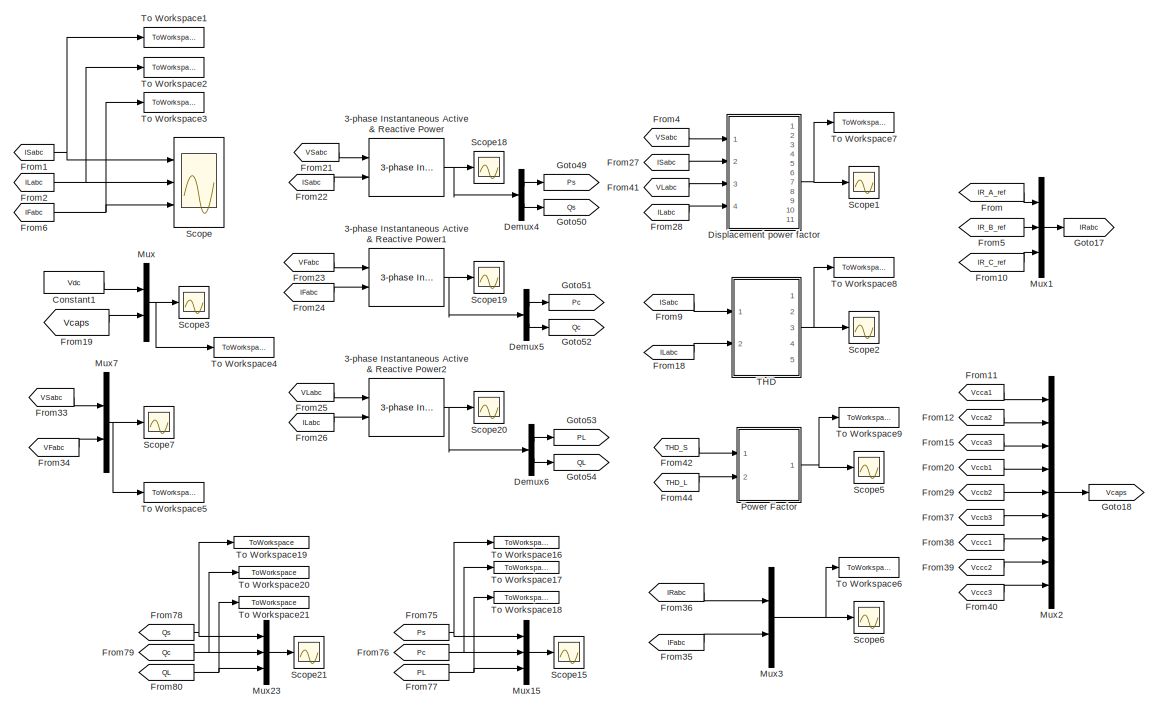
[diagram: root canvas - part 1/2, right side, full height]
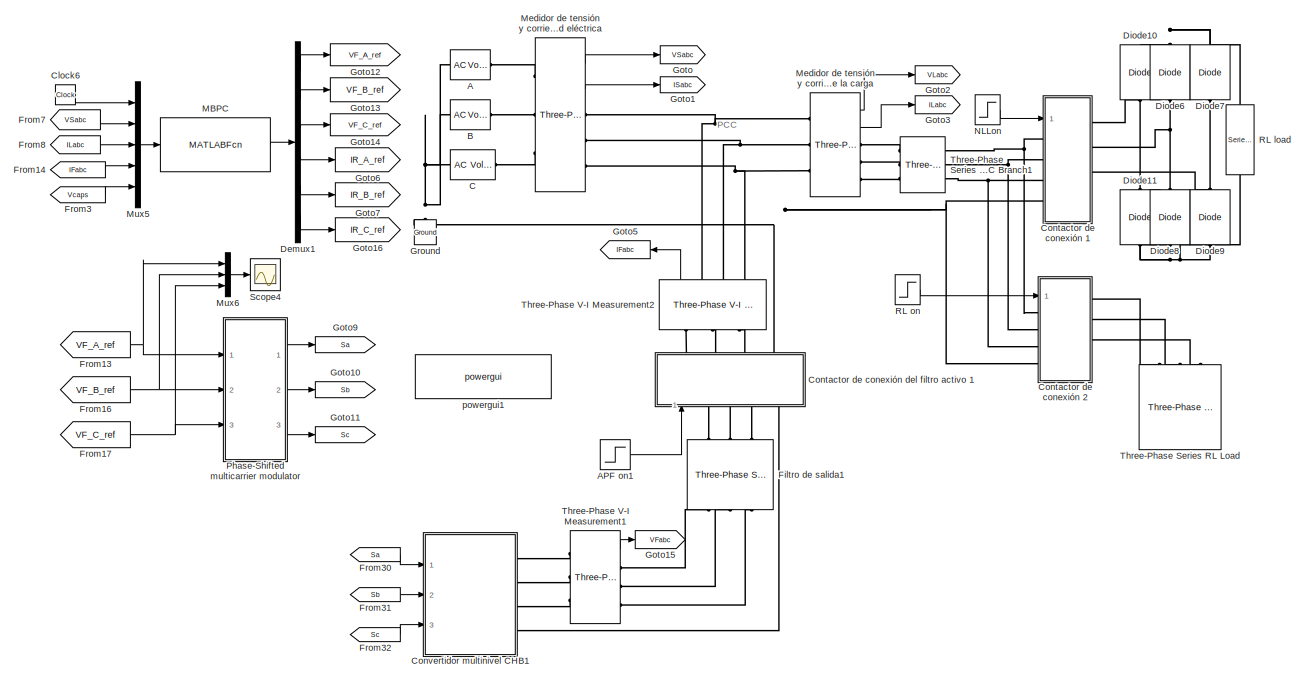
[diagram: root canvas - part 2/2, left side, full height]
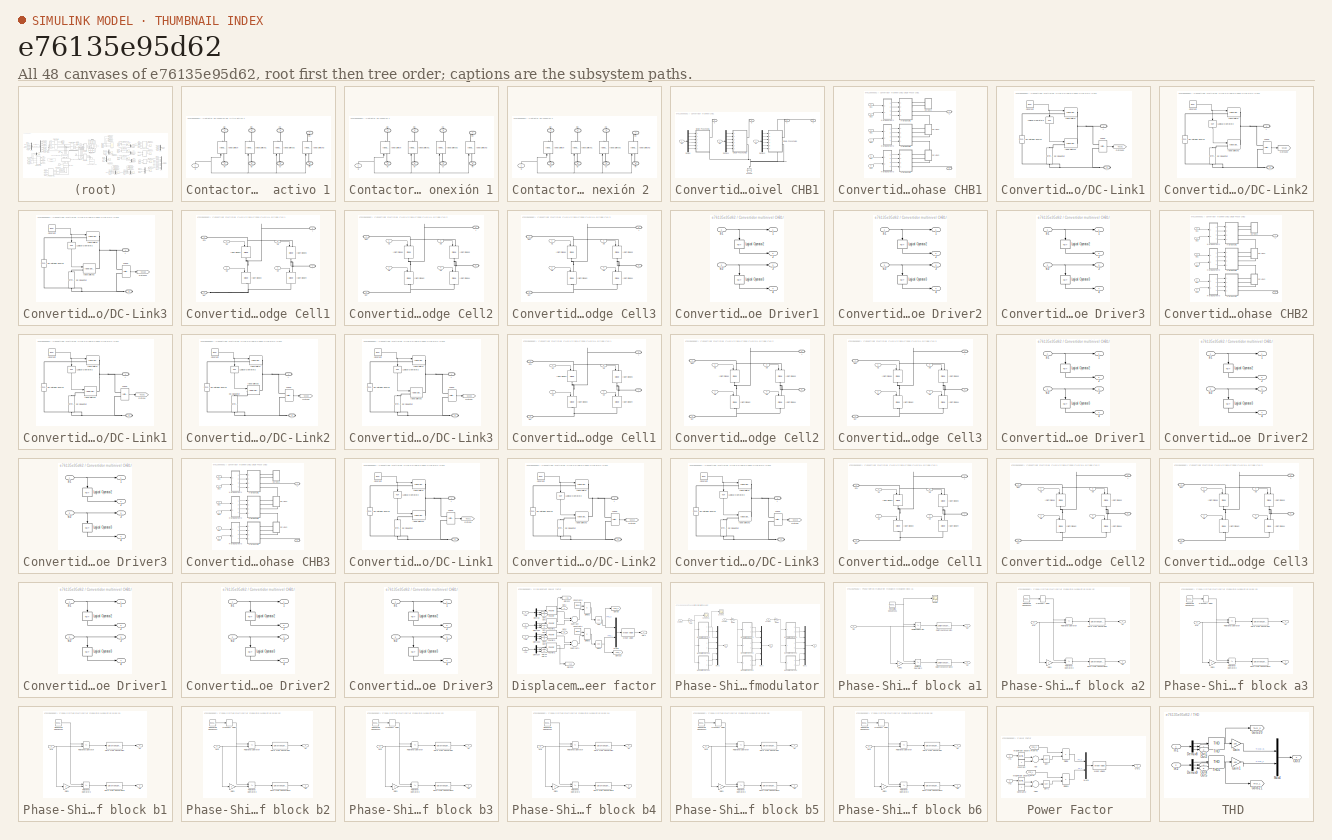
[diagram: thumbnail index - all 48 canvases of the model, root first then tree order]
MODEL slx_e76135e95d62
KIND model
CONFIG AbsTol = auto
CONFIG EnableMultiTasking = off
CONFIG FixedStep = Ts
CONFIG InitFcn = GlobalParam
CONFIG MaxStep = 1e-4
CONFIG MinStep = auto
CONFIG RelTol = 1e-3
CONFIG SampleTimeConstraint = Unconstrained
CONFIG Solver = ode1
CONFIG SolverName = ode1
CONFIG StartTime = 0.0
CONFIG StopTime = 0.15
BLOCK [Reference]  RL load  REF=powerlib/Elements/Series RLC Branch
  Ports = [0, 0, 0, 0, 0, 1, 1]
  SourceBlock = powerlib/Elements/Series RLC Branch
  SourceProductBaseCode = PS
  SourceProductName = Simscape Power Systems
  SourceType = Series RLC Branch
BLOCK [Reference] 3-phase Instantaneous Active & Reactive Power  REF=powerlib_extras/Measurements/3-phase 
Instantaneous 
Active & Reactive Power
  Ports = [2, 1]
  SourceBlock = powerlib_extras/Measurements/3-phase \nInstantaneous \nActive & Reactive Power
  SourceType = 3-phase instantaneous active and reactive power
BLOCK [Reference] 3-phase Instantaneous Active & Reactive Power1  REF=powerlib_extras/Measurements/3-phase 
Instantaneous 
Active & Reactive Power
  Ports = [2, 1]
  SourceBlock = powerlib_extras/Measurements/3-phase \nInstantaneous \nActive & Reactive Power
  SourceType = 3-phase instantaneous active and reactive power
BLOCK [Reference] 3-phase Instantaneous Active & Reactive Power2  REF=powerlib_extras/Measurements/3-phase 
Instantaneous 
Active & Reactive Power
  Ports = [2, 1]
  SourceBlock = powerlib_extras/Measurements/3-phase \nInstantaneous \nActive & Reactive Power
  SourceType = 3-phase instantaneous active and reactive power
BLOCK [Reference] A   REF=powerlib/Electrical
Sources/AC Voltage Source
  Ports = [0, 0, 0, 0, 0, 1, 1]
  SourceBlock = powerlib/Electrical\nSources/AC Voltage Source
  SourceProductBaseCode = PS
  SourceProductName = Simscape Power Systems
  SourceType = AC Voltage Source
BLOCK [Step] APF on1
  SampleTime = 0
  Time = APFon
BLOCK [Reference] B   REF=powerlib/Electrical
Sources/AC Voltage Source
  Ports = [0, 0, 0, 0, 0, 1, 1]
  SourceBlock = powerlib/Electrical\nSources/AC Voltage Source
  SourceProductBaseCode = PS
  SourceProductName = Simscape Power Systems
  SourceType = AC Voltage Source
BLOCK [Reference] C   REF=powerlib/Electrical
Sources/AC Voltage Source
  Ports = [0, 0, 0, 0, 0, 1, 1]
  SourceBlock = powerlib/Electrical\nSources/AC Voltage Source
  SourceProductBaseCode = PS
  SourceProductName = Simscape Power Systems
  SourceType = AC Voltage Source
BLOCK [Clock] Clock6
BLOCK [Constant] Constant1
  Value = Vdc
BLOCK [SubSystem] Contactor de conexión 1
  Ports = [1, 0, 0, 0, 0, 4, 4]
  RequestExecContextInheritance = off
  Variant = off
BLOCK [Reference] Contactor de conexión 1/Ideal Switch  REF=powerlib/Power
Electronics/Ideal Switch
  Ports = [1, 0, 0, 0, 0, 1, 1]
  SourceBlock = powerlib/Power\nElectronics/Ideal Switch
  SourceProductBaseCode = PS
  SourceProductName = Simscape Power Systems
  SourceType = Ideal Switch
BLOCK [Reference] Contactor de conexión 1/Ideal Switch1  REF=powerlib/Power
Electronics/Ideal Switch
  Ports = [1, 0, 0, 0, 0, 1, 1]
  SourceBlock = powerlib/Power\nElectronics/Ideal Switch
  SourceProductBaseCode = PS
  SourceProductName = Simscape Power Systems
  SourceType = Ideal Switch
BLOCK [Reference] Contactor de conexión 1/Ideal Switch2  REF=powerlib/Power
Electronics/Ideal Switch
  Ports = [1, 0, 0, 0, 0, 1, 1]
  SourceBlock = powerlib/Power\nElectronics/Ideal Switch
  SourceProductBaseCode = PS
  SourceProductName = Simscape Power Systems
  SourceType = Ideal Switch
BLOCK [Reference] Contactor de conexión 1/Ideal Switch3  REF=powerlib/Power
Electronics/Ideal Switch
  Ports = [1, 0, 0, 0, 0, 1, 1]
  SourceBlock = powerlib/Power\nElectronics/Ideal Switch
  SourceProductBaseCode = PS
  SourceProductName = Simscape Power Systems
  SourceType = Ideal Switch
BLOCK [PMIOPort] Contactor de conexión 1/ai
  Port = 4
  Side = Left
BLOCK [PMIOPort] Contactor de conexión 1/ao
  Port = 1
  Side = Right
BLOCK [PMIOPort] Contactor de conexión 1/bi
  Port = 5
  Side = Left
BLOCK [PMIOPort] Contactor de conexión 1/bo
  Port = 2
  Side = Right
BLOCK [PMIOPort] Contactor de conexión 1/ci
  Port = 6
  Side = Left
BLOCK [PMIOPort] Contactor de conexión 1/co
  Port = 3
  Side = Right
BLOCK [Inport] Contactor de conexión 1/g
  IconDisplay = Port number
BLOCK [PMIOPort] Contactor de conexión 1/ni
  Port = 8
  Side = Right
BLOCK [PMIOPort] Contactor de conexión 1/no
  Port = 7
  Side = Left
BLOCK [SubSystem] Contactor de conexión 2 
  Ports = [1, 0, 0, 0, 0, 4, 4]
  RequestExecContextInheritance = off
  Variant = off
BLOCK [Reference] Contactor de conexión 2 /Ideal Switch  REF=powerlib/Power
Electronics/Ideal Switch
  Ports = [1, 0, 0, 0, 0, 1, 1]
  SourceBlock = powerlib/Power\nElectronics/Ideal Switch
  SourceProductBaseCode = PS
  SourceProductName = Simscape Power Systems
  SourceType = Ideal Switch
BLOCK [Reference] Contactor de conexión 2 /Ideal Switch1  REF=powerlib/Power
Electronics/Ideal Switch
  Ports = [1, 0, 0, 0, 0, 1, 1]
  SourceBlock = powerlib/Power\nElectronics/Ideal Switch
  SourceProductBaseCode = PS
  SourceProductName = Simscape Power Systems
  SourceType = Ideal Switch
BLOCK [Reference] Contactor de conexión 2 /Ideal Switch2  REF=powerlib/Power
Electronics/Ideal Switch
  Ports = [1, 0, 0, 0, 0, 1, 1]
  SourceBlock = powerlib/Power\nElectronics/Ideal Switch
  SourceProductBaseCode = PS
  SourceProductName = Simscape Power Systems
  SourceType = Ideal Switch
BLOCK [Reference] Contactor de conexión 2 /Ideal Switch3  REF=powerlib/Power
Electronics/Ideal Switch
  Ports = [1, 0, 0, 0, 0, 1, 1]
  SourceBlock = powerlib/Power\nElectronics/Ideal Switch
  SourceProductBaseCode = PS
  SourceProductName = Simscape Power Systems
  SourceType = Ideal Switch
BLOCK [PMIOPort] Contactor de conexión 2 /ai
  Port = 4
  Side = Left
BLOCK [PMIOPort] Contactor de conexión 2 /ao
  Port = 1
  Side = Right
BLOCK [PMIOPort] Contactor de conexión 2 /bi
  Port = 5
  Side = Left
BLOCK [PMIOPort] Contactor de conexión 2 /bo
  Port = 2
  Side = Right
BLOCK [PMIOPort] Contactor de conexión 2 /ci
  Port = 6
  Side = Left
BLOCK [PMIOPort] Contactor de conexión 2 /co
  Port = 3
  Side = Right
BLOCK [Inport] Contactor de conexión 2 /g
  IconDisplay = Port number
BLOCK [PMIOPort] Contactor de conexión 2 /ni
  Port = 8
  Side = Right
BLOCK [PMIOPort] Contactor de conexión 2 /no
  Port = 7
  Side = Left
BLOCK [SubSystem] Contactor de conexión del filtro activo 1
  Ports = [1, 0, 0, 0, 0, 4, 4]
  RequestExecContextInheritance = off
  Variant = off
BLOCK [Reference] Contactor de conexión del filtro activo 1/Ideal Switch  REF=powerlib/Power
Electronics/Ideal Switch
  Ports = [1, 0, 0, 0, 0, 1, 1]
  SourceBlock = powerlib/Power\nElectronics/Ideal Switch
  SourceProductBaseCode = PS
  SourceProductName = Simscape Power Systems
  SourceType = Ideal Switch
BLOCK [Reference] Contactor de conexión del filtro activo 1/Ideal Switch1  REF=powerlib/Power
Electronics/Ideal Switch
  Ports = [1, 0, 0, 0, 0, 1, 1]
  SourceBlock = powerlib/Power\nElectronics/Ideal Switch
  SourceProductBaseCode = PS
  SourceProductName = Simscape Power Systems
  SourceType = Ideal Switch
BLOCK [Reference] Contactor de conexión del filtro activo 1/Ideal Switch2  REF=powerlib/Power
Electronics/Ideal Switch
  Ports = [1, 0, 0, 0, 0, 1, 1]
  SourceBlock = powerlib/Power\nElectronics/Ideal Switch
  SourceProductBaseCode = PS
  SourceProductName = Simscape Power Systems
  SourceType = Ideal Switch
BLOCK [Reference] Contactor de conexión del filtro activo 1/Ideal Switch3  REF=powerlib/Power
Electronics/Ideal Switch
  Ports = [1, 0, 0, 0, 0, 1, 1]
  SourceBlock = powerlib/Power\nElectronics/Ideal Switch
  SourceProductBaseCode = PS
  SourceProductName = Simscape Power Systems
  SourceType = Ideal Switch
BLOCK [PMIOPort] Contactor de conexión del filtro activo 1/ai
  Port = 4
  Side = Left
BLOCK [PMIOPort] Contactor de conexión del filtro activo 1/ao
  Port = 1
  Side = Right
BLOCK [PMIOPort] Contactor de conexión del filtro activo 1/bi
  Port = 5
  Side = Left
BLOCK [PMIOPort] Contactor de conexión del filtro activo 1/bo
  Port = 2
  Side = Right
BLOCK [PMIOPort] Contactor de conexión del filtro activo 1/ci
  Port = 6
  Side = Left
BLOCK [PMIOPort] Contactor de conexión del filtro activo 1/co
  Port = 3
  Side = Right
BLOCK [Inport] Contactor de conexión del filtro activo 1/g
  IconDisplay = Port number
BLOCK [PMIOPort] Contactor de conexión del filtro activo 1/ni
  Port = 8
  Side = Right
BLOCK [PMIOPort] Contactor de conexión del filtro activo 1/no
  Port = 7
  Side = Left
BLOCK [SubSystem] Convertidor multinivel CHB1
  Ports = [3, 0, 0, 0, 0, 0, 4]
  RequestExecContextInheritance = off
  Variant = off
BLOCK [Demux] Convertidor multinivel CHB1/Demux
  DisplayOption = bar
  Outputs = 6
  Ports = [1, 6]
BLOCK [Demux] Convertidor multinivel CHB1/Demux1
  DisplayOption = bar
  Outputs = 6
  Ports = [1, 6]
BLOCK [Demux] Convertidor multinivel CHB1/Demux2
  DisplayOption = bar
  Outputs = 6
  Ports = [1, 6]
BLOCK [Reference] Convertidor multinivel CHB1/Ground  REF=powerlib/Elements/Ground
  Ports = [0, 0, 0, 0, 0, 1]
  SourceBlock = powerlib/Elements/Ground
  SourceProductBaseCode = PS
  SourceProductName = Simscape Power Systems
  SourceType = Ground
BLOCK [Inport] Convertidor multinivel CHB1/Sa
  IconDisplay = Port number
BLOCK [Inport] Convertidor multinivel CHB1/Sb
  IconDisplay = Port number
  Port = 2
BLOCK [Inport] Convertidor multinivel CHB1/Sc
  IconDisplay = Port number
  Port = 3
BLOCK [SubSystem] Convertidor multinivel CHB1/Single-Phase CHB1
  Ports = [6, 0, 0, 0, 0, 0, 2]
  RequestExecContextInheritance = off
  Variant = off
BLOCK [PMIOPort] Convertidor multinivel CHB1/Single-Phase CHB1/+
  Port = 1
  Side = Right
BLOCK [PMIOPort] Convertidor multinivel CHB1/Single-Phase CHB1/-
  Port = 2
  Side = Right
BLOCK [SubSystem] Convertidor multinivel CHB1/Single-Phase CHB1/DC-Link1
  Ports = [0, 0, 0, 0, 0, 0, 2]
  RequestExecContextInheritance = off
  Variant = off
BLOCK [PMIOPort] Convertidor multinivel CHB1/Single-Phase CHB1/DC-Link1/+
  Port = 1
  Side = Right
BLOCK [PMIOPort] Convertidor multinivel CHB1/Single-Phase CHB1/DC-Link1/-
  Port = 2
  Side = Right
BLOCK [Constant] Convertidor multinivel CHB1/Single-Phase CHB1/DC-Link1/Constant
  Value = Ideal
BLOCK [Reference] Convertidor multinivel CHB1/Single-Phase CHB1/DC-Link1/DC Capacitor  REF=powerlib/Elements/Series RLC Branch
  Ports = [0, 0, 0, 0, 0, 1, 1]
  SourceBlock = powerlib/Elements/Series RLC Branch
  SourceProductBaseCode = PS
  SourceProductName = Simscape Power Systems
  SourceType = Series RLC Branch
BLOCK [Reference] Convertidor multinivel CHB1/Single-Phase CHB1/DC-Link1/DC Voltage Source  REF=powerlib/Electrical
Sources/DC Voltage Source
  Ports = [0, 0, 0, 0, 0, 1, 1]
  SourceBlock = powerlib/Electrical\nSources/DC Voltage Source
  SourceProductBaseCode = PS
  SourceProductName = Simscape Power Systems
  SourceType = DC Voltage Source
BLOCK [Goto] Convertidor multinivel CHB1/Single-Phase CHB1/DC-Link1/Goto100
  GotoTag = Vcca1
  TagVisibility = global
BLOCK [Reference] Convertidor multinivel CHB1/Single-Phase CHB1/DC-Link1/Ideal Switch  REF=powerlib/Power
Electronics/Ideal Switch
  Ports = [1, 0, 0, 0, 0, 1, 1]
  SourceBlock = powerlib/Power\nElectronics/Ideal Switch
  SourceProductBaseCode = PS
  SourceProductName = Simscape Power Systems
  SourceType = Ideal Switch
BLOCK [Reference] Convertidor multinivel CHB1/Single-Phase CHB1/DC-Link1/Ideal Switch2  REF=powerlib/Power
Electronics/Ideal Switch
  Ports = [1, 0, 0, 0, 0, 1, 1]
  SourceBlock = powerlib/Power\nElectronics/Ideal Switch
  SourceProductBaseCode = PS
  SourceProductName = Simscape Power Systems
  SourceType = Ideal Switch
BLOCK [Logic] Convertidor multinivel CHB1/Single-Phase CHB1/DC-Link1/Logical Operator2
  AllPortsSameDT = off
  Operator = NOT
  OutDataTypeStr = boolean
  Ports = [1, 1]
BLOCK [Reference] Convertidor multinivel CHB1/Single-Phase CHB1/DC-Link1/Vcan3  REF=powerlib/Measurements/Voltage Measurement
  Ports = [0, 1, 0, 0, 0, 2]
  SourceBlock = powerlib/Measurements/Voltage Measurement
  SourceProductBaseCode = PS
  SourceProductName = Simscape Power Systems
  SourceType = Voltage Measurement
BLOCK [SubSystem] Convertidor multinivel CHB1/Single-Phase CHB1/DC-Link2
  Ports = [0, 0, 0, 0, 0, 0, 2]
  RequestExecContextInheritance = off
  Variant = off
BLOCK [PMIOPort] Convertidor multinivel CHB1/Single-Phase CHB1/DC-Link2/+
  Port = 1
  Side = Right
BLOCK [PMIOPort] Convertidor multinivel CHB1/Single-Phase CHB1/DC-Link2/-
  Port = 2
  Side = Right
BLOCK [Constant] Convertidor multinivel CHB1/Single-Phase CHB1/DC-Link2/Constant
  Value = Ideal
BLOCK [Reference] Convertidor multinivel CHB1/Single-Phase CHB1/DC-Link2/DC Capacitor  REF=powerlib/Elements/Series RLC Branch
  Ports = [0, 0, 0, 0, 0, 1, 1]
  SourceBlock = powerlib/Elements/Series RLC Branch
  SourceProductBaseCode = PS
  SourceProductName = Simscape Power Systems
  SourceType = Series RLC Branch
BLOCK [Reference] Convertidor multinivel CHB1/Single-Phase CHB1/DC-Link2/DC Voltage Source  REF=powerlib/Electrical
Sources/DC Voltage Source
  Ports = [0, 0, 0, 0, 0, 1, 1]
  SourceBlock = powerlib/Electrical\nSources/DC Voltage Source
  SourceProductBaseCode = PS
  SourceProductName = Simscape Power Systems
  SourceType = DC Voltage Source
BLOCK [Goto] Convertidor multinivel CHB1/Single-Phase CHB1/DC-Link2/Goto100
  GotoTag = Vcca2
  TagVisibility = global
BLOCK [Reference] Convertidor multinivel CHB1/Single-Phase CHB1/DC-Link2/Ideal Switch  REF=powerlib/Power
Electronics/Ideal Switch
  Ports = [1, 0, 0, 0, 0, 1, 1]
  SourceBlock = powerlib/Power\nElectronics/Ideal Switch
  SourceProductBaseCode = PS
  SourceProductName = Simscape Power Systems
  SourceType = Ideal Switch
BLOCK [Reference] Convertidor multinivel CHB1/Single-Phase CHB1/DC-Link2/Ideal Switch2  REF=powerlib/Power
Electronics/Ideal Switch
  Ports = [1, 0, 0, 0, 0, 1, 1]
  SourceBlock = powerlib/Power\nElectronics/Ideal Switch
  SourceProductBaseCode = PS
  SourceProductName = Simscape Power Systems
  SourceType = Ideal Switch
BLOCK [Logic] Convertidor multinivel CHB1/Single-Phase CHB1/DC-Link2/Logical Operator2
  AllPortsSameDT = off
  Operator = NOT
  OutDataTypeStr = boolean
  Ports = [1, 1]
BLOCK [Reference] Convertidor multinivel CHB1/Single-Phase CHB1/DC-Link2/Vcan3  REF=powerlib/Measurements/Voltage Measurement
  Ports = [0, 1, 0, 0, 0, 2]
  SourceBlock = powerlib/Measurements/Voltage Measurement
  SourceProductBaseCode = PS
  SourceProductName = Simscape Power Systems
  SourceType = Voltage Measurement
BLOCK [SubSystem] Convertidor multinivel CHB1/Single-Phase CHB1/DC-Link3
  Ports = [0, 0, 0, 0, 0, 0, 2]
  RequestExecContextInheritance = off
  Variant = off
BLOCK [PMIOPort] Convertidor multinivel CHB1/Single-Phase CHB1/DC-Link3/+
  Port = 1
  Side = Right
BLOCK [PMIOPort] Convertidor multinivel CHB1/Single-Phase CHB1/DC-Link3/-
  Port = 2
  Side = Right
BLOCK [Constant] Convertidor multinivel CHB1/Single-Phase CHB1/DC-Link3/Constant
  Value = Ideal
BLOCK [Reference] Convertidor multinivel CHB1/Single-Phase CHB1/DC-Link3/DC Capacitor  REF=powerlib/Elements/Series RLC Branch
  Ports = [0, 0, 0, 0, 0, 1, 1]
  SourceBlock = powerlib/Elements/Series RLC Branch
  SourceProductBaseCode = PS
  SourceProductName = Simscape Power Systems
  SourceType = Series RLC Branch
BLOCK [Reference] Convertidor multinivel CHB1/Single-Phase CHB1/DC-Link3/DC Voltage Source  REF=powerlib/Electrical
Sources/DC Voltage Source
  Ports = [0, 0, 0, 0, 0, 1, 1]
  SourceBlock = powerlib/Electrical\nSources/DC Voltage Source
  SourceProductBaseCode = PS
  SourceProductName = Simscape Power Systems
  SourceType = DC Voltage Source
BLOCK [Goto] Convertidor multinivel CHB1/Single-Phase CHB1/DC-Link3/Goto101
  GotoTag = Vcca3
  TagVisibility = global
BLOCK [Reference] Convertidor multinivel CHB1/Single-Phase CHB1/DC-Link3/Ideal Switch  REF=powerlib/Power
Electronics/Ideal Switch
  Ports = [1, 0, 0, 0, 0, 1, 1]
  SourceBlock = powerlib/Power\nElectronics/Ideal Switch
  SourceProductBaseCode = PS
  SourceProductName = Simscape Power Systems
  SourceType = Ideal Switch
BLOCK [Reference] Convertidor multinivel CHB1/Single-Phase CHB1/DC-Link3/Ideal Switch2  REF=powerlib/Power
Electronics/Ideal Switch
  Ports = [1, 0, 0, 0, 0, 1, 1]
  SourceBlock = powerlib/Power\nElectronics/Ideal Switch
  SourceProductBaseCode = PS
  SourceProductName = Simscape Power Systems
  SourceType = Ideal Switch
BLOCK [Logic] Convertidor multinivel CHB1/Single-Phase CHB1/DC-Link3/Logical Operator2
  AllPortsSameDT = off
  Operator = NOT
  OutDataTypeStr = boolean
  Ports = [1, 1]
BLOCK [Reference] Convertidor multinivel CHB1/Single-Phase CHB1/DC-Link3/Vcan3  REF=powerlib/Measurements/Voltage Measurement
  Ports = [0, 1, 0, 0, 0, 2]
  SourceBlock = powerlib/Measurements/Voltage Measurement
  SourceProductBaseCode = PS
  SourceProductName = Simscape Power Systems
  SourceType = Voltage Measurement
BLOCK [SubSystem] Convertidor multinivel CHB1/Single-Phase CHB1/H-Bridge Cell1
  Ports = [4, 0, 0, 0, 0, 0, 4]
  RequestExecContextInheritance = off
  Variant = off
BLOCK [PMIOPort] Convertidor multinivel CHB1/Single-Phase CHB1/H-Bridge Cell1/+
  Port = 3
  Side = Right
BLOCK [PMIOPort] Convertidor multinivel CHB1/Single-Phase CHB1/H-Bridge Cell1/-
  Port = 4
  Side = Right
BLOCK [PMIOPort] Convertidor multinivel CHB1/Single-Phase CHB1/H-Bridge Cell1/DC+
  Port = 1
  Side = Right
BLOCK [PMIOPort] Convertidor multinivel CHB1/Single-Phase CHB1/H-Bridge Cell1/DC-
  Port = 2
  Side = Right
BLOCK [Reference] Convertidor multinivel CHB1/Single-Phase CHB1/H-Bridge Cell1/IGBT//Diode1  REF=powerlib/Power
Electronics/IGBT//Diode
  Ports = [1, 0, 0, 0, 0, 1, 1]
  SourceBlock = powerlib/Power\nElectronics/IGBT//Diode
  SourceProductBaseCode = PS
  SourceProductName = Simscape Power Systems
  SourceType = IGBT/Diode
BLOCK [Reference] Convertidor multinivel CHB1/Single-Phase CHB1/H-Bridge Cell1/IGBT//Diode2  REF=powerlib/Power
Electronics/IGBT//Diode
  Ports = [1, 0, 0, 0, 0, 1, 1]
  SourceBlock = powerlib/Power\nElectronics/IGBT//Diode
  SourceProductBaseCode = PS
  SourceProductName = Simscape Power Systems
  SourceType = IGBT/Diode
BLOCK [Reference] Convertidor multinivel CHB1/Single-Phase CHB1/H-Bridge Cell1/IGBT//Diode3  REF=powerlib/Power
Electronics/IGBT//Diode
  Ports = [1, 0, 0, 0, 0, 1, 1]
  SourceBlock = powerlib/Power\nElectronics/IGBT//Diode
  SourceProductBaseCode = PS
  SourceProductName = Simscape Power Systems
  SourceType = IGBT/Diode
BLOCK [Reference] Convertidor multinivel CHB1/Single-Phase CHB1/H-Bridge Cell1/IGBT//Diode4  REF=powerlib/Power
Electronics/IGBT//Diode
  Ports = [1, 0, 0, 0, 0, 1, 1]
  SourceBlock = powerlib/Power\nElectronics/IGBT//Diode
  SourceProductBaseCode = PS
  SourceProductName = Simscape Power Systems
  SourceType = IGBT/Diode
BLOCK [Inport] Convertidor multinivel CHB1/Single-Phase CHB1/H-Bridge Cell1/si1
  IconDisplay = Port number
BLOCK [Inport] Convertidor multinivel CHB1/Single-Phase CHB1/H-Bridge Cell1/si2
  IconDisplay = Port number
  Port = 2
BLOCK [Inport] Convertidor multinivel CHB1/Single-Phase CHB1/H-Bridge Cell1/si3
  IconDisplay = Port number
  Port = 3
BLOCK [Inport] Convertidor multinivel CHB1/Single-Phase CHB1/H-Bridge Cell1/si4
  IconDisplay = Port number
  Port = 4
BLOCK [SubSystem] Convertidor multinivel CHB1/Single-Phase CHB1/H-Bridge Cell2
  Ports = [4, 0, 0, 0, 0, 0, 4]
  RequestExecContextInheritance = off
  Variant = off
BLOCK [PMIOPort] Convertidor multinivel CHB1/Single-Phase CHB1/H-Bridge Cell2/+
  Port = 3
  Side = Right
BLOCK [PMIOPort] Convertidor multinivel CHB1/Single-Phase CHB1/H-Bridge Cell2/-
  Port = 4
  Side = Right
BLOCK [PMIOPort] Convertidor multinivel CHB1/Single-Phase CHB1/H-Bridge Cell2/DC+
  Port = 1
  Side = Right
BLOCK [PMIOPort] Convertidor multinivel CHB1/Single-Phase CHB1/H-Bridge Cell2/DC-
  Port = 2
  Side = Right
BLOCK [Reference] Convertidor multinivel CHB1/Single-Phase CHB1/H-Bridge Cell2/IGBT//Diode1  REF=powerlib/Power
Electronics/IGBT//Diode
  Ports = [1, 0, 0, 0, 0, 1, 1]
  SourceBlock = powerlib/Power\nElectronics/IGBT//Diode
  SourceProductBaseCode = PS
  SourceProductName = Simscape Power Systems
  SourceType = IGBT/Diode
BLOCK [Reference] Convertidor multinivel CHB1/Single-Phase CHB1/H-Bridge Cell2/IGBT//Diode2  REF=powerlib/Power
Electronics/IGBT//Diode
  Ports = [1, 0, 0, 0, 0, 1, 1]
  SourceBlock = powerlib/Power\nElectronics/IGBT//Diode
  SourceProductBaseCode = PS
  SourceProductName = Simscape Power Systems
  SourceType = IGBT/Diode
BLOCK [Reference] Convertidor multinivel CHB1/Single-Phase CHB1/H-Bridge Cell2/IGBT//Diode3  REF=powerlib/Power
Electronics/IGBT//Diode
  Ports = [1, 0, 0, 0, 0, 1, 1]
  SourceBlock = powerlib/Power\nElectronics/IGBT//Diode
  SourceProductBaseCode = PS
  SourceProductName = Simscape Power Systems
  SourceType = IGBT/Diode
BLOCK [Reference] Convertidor multinivel CHB1/Single-Phase CHB1/H-Bridge Cell2/IGBT//Diode4  REF=powerlib/Power
Electronics/IGBT//Diode
  Ports = [1, 0, 0, 0, 0, 1, 1]
  SourceBlock = powerlib/Power\nElectronics/IGBT//Diode
  SourceProductBaseCode = PS
  SourceProductName = Simscape Power Systems
  SourceType = IGBT/Diode
BLOCK [Inport] Convertidor multinivel CHB1/Single-Phase CHB1/H-Bridge Cell2/si1
  IconDisplay = Port number
BLOCK [Inport] Convertidor multinivel CHB1/Single-Phase CHB1/H-Bridge Cell2/si2
  IconDisplay = Port number
  Port = 2
BLOCK [Inport] Convertidor multinivel CHB1/Single-Phase CHB1/H-Bridge Cell2/si3
  IconDisplay = Port number
  Port = 3
BLOCK [Inport] Convertidor multinivel CHB1/Single-Phase CHB1/H-Bridge Cell2/si4
  IconDisplay = Port number
  Port = 4
BLOCK [SubSystem] Convertidor multinivel CHB1/Single-Phase CHB1/H-Bridge Cell3
  Ports = [4, 0, 0, 0, 0, 0, 4]
  RequestExecContextInheritance = off
  Variant = off
BLOCK [PMIOPort] Convertidor multinivel CHB1/Single-Phase CHB1/H-Bridge Cell3/+
  Port = 3
  Side = Right
BLOCK [PMIOPort] Convertidor multinivel CHB1/Single-Phase CHB1/H-Bridge Cell3/-
  Port = 4
  Side = Right
BLOCK [PMIOPort] Convertidor multinivel CHB1/Single-Phase CHB1/H-Bridge Cell3/DC+
  Port = 1
  Side = Right
BLOCK [PMIOPort] Convertidor multinivel CHB1/Single-Phase CHB1/H-Bridge Cell3/DC-
  Port = 2
  Side = Right
BLOCK [Reference] Convertidor multinivel CHB1/Single-Phase CHB1/H-Bridge Cell3/IGBT//Diode1  REF=powerlib/Power
Electronics/IGBT//Diode
  Ports = [1, 0, 0, 0, 0, 1, 1]
  SourceBlock = powerlib/Power\nElectronics/IGBT//Diode
  SourceProductBaseCode = PS
  SourceProductName = Simscape Power Systems
  SourceType = IGBT/Diode
BLOCK [Reference] Convertidor multinivel CHB1/Single-Phase CHB1/H-Bridge Cell3/IGBT//Diode2  REF=powerlib/Power
Electronics/IGBT//Diode
  Ports = [1, 0, 0, 0, 0, 1, 1]
  SourceBlock = powerlib/Power\nElectronics/IGBT//Diode
  SourceProductBaseCode = PS
  SourceProductName = Simscape Power Systems
  SourceType = IGBT/Diode
BLOCK [Reference] Convertidor multinivel CHB1/Single-Phase CHB1/H-Bridge Cell3/IGBT//Diode3  REF=powerlib/Power
Electronics/IGBT//Diode
  Ports = [1, 0, 0, 0, 0, 1, 1]
  SourceBlock = powerlib/Power\nElectronics/IGBT//Diode
  SourceProductBaseCode = PS
  SourceProductName = Simscape Power Systems
  SourceType = IGBT/Diode
BLOCK [Reference] Convertidor multinivel CHB1/Single-Phase CHB1/H-Bridge Cell3/IGBT//Diode4  REF=powerlib/Power
Electronics/IGBT//Diode
  Ports = [1, 0, 0, 0, 0, 1, 1]
  SourceBlock = powerlib/Power\nElectronics/IGBT//Diode
  SourceProductBaseCode = PS
  SourceProductName = Simscape Power Systems
  SourceType = IGBT/Diode
BLOCK [Inport] Convertidor multinivel CHB1/Single-Phase CHB1/H-Bridge Cell3/si1
  IconDisplay = Port number
BLOCK [Inport] Convertidor multinivel CHB1/Single-Phase CHB1/H-Bridge Cell3/si2
  IconDisplay = Port number
  Port = 2
BLOCK [Inport] Convertidor multinivel CHB1/Single-Phase CHB1/H-Bridge Cell3/si3
  IconDisplay = Port number
  Port = 3
BLOCK [Inport] Convertidor multinivel CHB1/Single-Phase CHB1/H-Bridge Cell3/si4
  IconDisplay = Port number
  Port = 4
BLOCK [SubSystem] Convertidor multinivel CHB1/Single-Phase CHB1/H-Bridge Driver1
  Ports = [2, 4]
  RequestExecContextInheritance = off
  Variant = off
BLOCK [Outport] Convertidor multinivel CHB1/Single-Phase CHB1/H-Bridge Driver1/1
  IconDisplay = Port number
BLOCK [Outport] Convertidor multinivel CHB1/Single-Phase CHB1/H-Bridge Driver1/2
  IconDisplay = Port number
  Port = 2
BLOCK [Outport] Convertidor multinivel CHB1/Single-Phase CHB1/H-Bridge Driver1/3
  IconDisplay = Port number
  Port = 3
BLOCK [Outport] Convertidor multinivel CHB1/Single-Phase CHB1/H-Bridge Driver1/4
  IconDisplay = Port number
  Port = 4
BLOCK [Logic] Convertidor multinivel CHB1/Single-Phase CHB1/H-Bridge Driver1/Logical Operator2
  AllPortsSameDT = off
  Operator = NOT
  OutDataTypeStr = boolean
  Ports = [1, 1]
BLOCK [Logic] Convertidor multinivel CHB1/Single-Phase CHB1/H-Bridge Driver1/Logical Operator3
  AllPortsSameDT = off
  Operator = NOT
  OutDataTypeStr = boolean
  Ports = [1, 1]
BLOCK [Inport] Convertidor multinivel CHB1/Single-Phase CHB1/H-Bridge Driver1/si1
  IconDisplay = Port number
BLOCK [Inport] Convertidor multinivel CHB1/Single-Phase CHB1/H-Bridge Driver1/si3
  IconDisplay = Port number
  Port = 2
BLOCK [SubSystem] Convertidor multinivel CHB1/Single-Phase CHB1/H-Bridge Driver2
  Ports = [2, 4]
  RequestExecContextInheritance = off
  Variant = off
BLOCK [Outport] Convertidor multinivel CHB1/Single-Phase CHB1/H-Bridge Driver2/1
  IconDisplay = Port number
BLOCK [Outport] Convertidor multinivel CHB1/Single-Phase CHB1/H-Bridge Driver2/2
  IconDisplay = Port number
  Port = 2
BLOCK [Outport] Convertidor multinivel CHB1/Single-Phase CHB1/H-Bridge Driver2/3
  IconDisplay = Port number
  Port = 3
BLOCK [Outport] Convertidor multinivel CHB1/Single-Phase CHB1/H-Bridge Driver2/4
  IconDisplay = Port number
  Port = 4
BLOCK [Logic] Convertidor multinivel CHB1/Single-Phase CHB1/H-Bridge Driver2/Logical Operator2
  AllPortsSameDT = off
  Operator = NOT
  OutDataTypeStr = boolean
  Ports = [1, 1]
BLOCK [Logic] Convertidor multinivel CHB1/Single-Phase CHB1/H-Bridge Driver2/Logical Operator3
  AllPortsSameDT = off
  Operator = NOT
  OutDataTypeStr = boolean
  Ports = [1, 1]
BLOCK [Inport] Convertidor multinivel CHB1/Single-Phase CHB1/H-Bridge Driver2/si1
  IconDisplay = Port number
BLOCK [Inport] Convertidor multinivel CHB1/Single-Phase CHB1/H-Bridge Driver2/si3
  IconDisplay = Port number
  Port = 2
BLOCK [SubSystem] Convertidor multinivel CHB1/Single-Phase CHB1/H-Bridge Driver3
  Ports = [2, 4]
  RequestExecContextInheritance = off
  Variant = off
BLOCK [Outport] Convertidor multinivel CHB1/Single-Phase CHB1/H-Bridge Driver3/1
  IconDisplay = Port number
BLOCK [Outport] Convertidor multinivel CHB1/Single-Phase CHB1/H-Bridge Driver3/2
  IconDisplay = Port number
  Port = 2
BLOCK [Outport] Convertidor multinivel CHB1/Single-Phase CHB1/H-Bridge Driver3/3
  IconDisplay = Port number
  Port = 3
BLOCK [Outport] Convertidor multinivel CHB1/Single-Phase CHB1/H-Bridge Driver3/4
  IconDisplay = Port number
  Port = 4
BLOCK [Logic] Convertidor multinivel CHB1/Single-Phase CHB1/H-Bridge Driver3/Logical Operator2
  AllPortsSameDT = off
  Operator = NOT
  OutDataTypeStr = boolean
  Ports = [1, 1]
BLOCK [Logic] Convertidor multinivel CHB1/Single-Phase CHB1/H-Bridge Driver3/Logical Operator3
  AllPortsSameDT = off
  Operator = NOT
  OutDataTypeStr = boolean
  Ports = [1, 1]
BLOCK [Inport] Convertidor multinivel CHB1/Single-Phase CHB1/H-Bridge Driver3/si1
  IconDisplay = Port number
BLOCK [Inport] Convertidor multinivel CHB1/Single-Phase CHB1/H-Bridge Driver3/si3
  IconDisplay = Port number
  Port = 2
BLOCK [Inport] Convertidor multinivel CHB1/Single-Phase CHB1/sf11
  IconDisplay = Port number
BLOCK [Inport] Convertidor multinivel CHB1/Single-Phase CHB1/sf13
  IconDisplay = Port number
  Port = 2
BLOCK [Inport] Convertidor multinivel CHB1/Single-Phase CHB1/sf21
  IconDisplay = Port number
  Port = 3
BLOCK [Inport] Convertidor multinivel CHB1/Single-Phase CHB1/sf23
  IconDisplay = Port number
  Port = 4
BLOCK [Inport] Convertidor multinivel CHB1/Single-Phase CHB1/sf31
  IconDisplay = Port number
  Port = 5
BLOCK [Inport] Convertidor multinivel CHB1/Single-Phase CHB1/sf33
  IconDisplay = Port number
  Port = 6
BLOCK [SubSystem] Convertidor multinivel CHB1/Single-Phase CHB2
  Ports = [6, 0, 0, 0, 0, 0, 2]
  RequestExecContextInheritance = off
  Variant = off
BLOCK [PMIOPort] Convertidor multinivel CHB1/Single-Phase CHB2/+
  Port = 1
  Side = Right
BLOCK [PMIOPort] Convertidor multinivel CHB1/Single-Phase CHB2/-
  Port = 2
  Side = Right
BLOCK [SubSystem] Convertidor multinivel CHB1/Single-Phase CHB2/DC-Link1
  Ports = [0, 0, 0, 0, 0, 0, 2]
  RequestExecContextInheritance = off
  Variant = off
BLOCK [PMIOPort] Convertidor multinivel CHB1/Single-Phase CHB2/DC-Link1/+
  Port = 1
  Side = Right
BLOCK [PMIOPort] Convertidor multinivel CHB1/Single-Phase CHB2/DC-Link1/-
  Port = 2
  Side = Right
BLOCK [Constant] Convertidor multinivel CHB1/Single-Phase CHB2/DC-Link1/Constant
  Value = Ideal
BLOCK [Reference] Convertidor multinivel CHB1/Single-Phase CHB2/DC-Link1/DC Capacitor  REF=powerlib/Elements/Series RLC Branch
  Ports = [0, 0, 0, 0, 0, 1, 1]
  SourceBlock = powerlib/Elements/Series RLC Branch
  SourceProductBaseCode = PS
  SourceProductName = Simscape Power Systems
  SourceType = Series RLC Branch
BLOCK [Reference] Convertidor multinivel CHB1/Single-Phase CHB2/DC-Link1/DC Voltage Source  REF=powerlib/Electrical
Sources/DC Voltage Source
  Ports = [0, 0, 0, 0, 0, 1, 1]
  SourceBlock = powerlib/Electrical\nSources/DC Voltage Source
  SourceProductBaseCode = PS
  SourceProductName = Simscape Power Systems
  SourceType = DC Voltage Source
BLOCK [Goto] Convertidor multinivel CHB1/Single-Phase CHB2/DC-Link1/Goto16
  GotoTag = Vccb1
  TagVisibility = global
BLOCK [Reference] Convertidor multinivel CHB1/Single-Phase CHB2/DC-Link1/Ideal Switch  REF=powerlib/Power
Electronics/Ideal Switch
  Ports = [1, 0, 0, 0, 0, 1, 1]
  SourceBlock = powerlib/Power\nElectronics/Ideal Switch
  SourceProductBaseCode = PS
  SourceProductName = Simscape Power Systems
  SourceType = Ideal Switch
BLOCK [Reference] Convertidor multinivel CHB1/Single-Phase CHB2/DC-Link1/Ideal Switch2  REF=powerlib/Power
Electronics/Ideal Switch
  Ports = [1, 0, 0, 0, 0, 1, 1]
  SourceBlock = powerlib/Power\nElectronics/Ideal Switch
  SourceProductBaseCode = PS
  SourceProductName = Simscape Power Systems
  SourceType = Ideal Switch
BLOCK [Logic] Convertidor multinivel CHB1/Single-Phase CHB2/DC-Link1/Logical Operator2
  AllPortsSameDT = off
  Operator = NOT
  OutDataTypeStr = boolean
  Ports = [1, 1]
BLOCK [Reference] Convertidor multinivel CHB1/Single-Phase CHB2/DC-Link1/Vcan3  REF=powerlib/Measurements/Voltage Measurement
  Ports = [0, 1, 0, 0, 0, 2]
  SourceBlock = powerlib/Measurements/Voltage Measurement
  SourceProductBaseCode = PS
  SourceProductName = Simscape Power Systems
  SourceType = Voltage Measurement
BLOCK [SubSystem] Convertidor multinivel CHB1/Single-Phase CHB2/DC-Link2
  Ports = [0, 0, 0, 0, 0, 0, 2]
  RequestExecContextInheritance = off
  Variant = off
BLOCK [PMIOPort] Convertidor multinivel CHB1/Single-Phase CHB2/DC-Link2/+
  Port = 1
  Side = Right
BLOCK [PMIOPort] Convertidor multinivel CHB1/Single-Phase CHB2/DC-Link2/-
  Port = 2
  Side = Right
BLOCK [Constant] Convertidor multinivel CHB1/Single-Phase CHB2/DC-Link2/Constant
  Value = Ideal
BLOCK [Reference] Convertidor multinivel CHB1/Single-Phase CHB2/DC-Link2/DC Capacitor  REF=powerlib/Elements/Series RLC Branch
  Ports = [0, 0, 0, 0, 0, 1, 1]
  SourceBlock = powerlib/Elements/Series RLC Branch
  SourceProductBaseCode = PS
  SourceProductName = Simscape Power Systems
  SourceType = Series RLC Branch
BLOCK [Reference] Convertidor multinivel CHB1/Single-Phase CHB2/DC-Link2/DC Voltage Source  REF=powerlib/Electrical
Sources/DC Voltage Source
  Ports = [0, 0, 0, 0, 0, 1, 1]
  SourceBlock = powerlib/Electrical\nSources/DC Voltage Source
  SourceProductBaseCode = PS
  SourceProductName = Simscape Power Systems
  SourceType = DC Voltage Source
BLOCK [Goto] Convertidor multinivel CHB1/Single-Phase CHB2/DC-Link2/Goto16
  GotoTag = Vccb2
  TagVisibility = global
BLOCK [Reference] Convertidor multinivel CHB1/Single-Phase CHB2/DC-Link2/Ideal Switch  REF=powerlib/Power
Electronics/Ideal Switch
  Ports = [1, 0, 0, 0, 0, 1, 1]
  SourceBlock = powerlib/Power\nElectronics/Ideal Switch
  SourceProductBaseCode = PS
  SourceProductName = Simscape Power Systems
  SourceType = Ideal Switch
BLOCK [Reference] Convertidor multinivel CHB1/Single-Phase CHB2/DC-Link2/Ideal Switch2  REF=powerlib/Power
Electronics/Ideal Switch
  Ports = [1, 0, 0, 0, 0, 1, 1]
  SourceBlock = powerlib/Power\nElectronics/Ideal Switch
  SourceProductBaseCode = PS
  SourceProductName = Simscape Power Systems
  SourceType = Ideal Switch
BLOCK [Logic] Convertidor multinivel CHB1/Single-Phase CHB2/DC-Link2/Logical Operator2
  AllPortsSameDT = off
  Operator = NOT
  OutDataTypeStr = boolean
  Ports = [1, 1]
BLOCK [Reference] Convertidor multinivel CHB1/Single-Phase CHB2/DC-Link2/Vcan3  REF=powerlib/Measurements/Voltage Measurement
  Ports = [0, 1, 0, 0, 0, 2]
  SourceBlock = powerlib/Measurements/Voltage Measurement
  SourceProductBaseCode = PS
  SourceProductName = Simscape Power Systems
  SourceType = Voltage Measurement
BLOCK [SubSystem] Convertidor multinivel CHB1/Single-Phase CHB2/DC-Link3
  Ports = [0, 0, 0, 0, 0, 0, 2]
  RequestExecContextInheritance = off
  Variant = off
BLOCK [PMIOPort] Convertidor multinivel CHB1/Single-Phase CHB2/DC-Link3/+
  Port = 1
  Side = Right
BLOCK [PMIOPort] Convertidor multinivel CHB1/Single-Phase CHB2/DC-Link3/-
  Port = 2
  Side = Right
BLOCK [Constant] Convertidor multinivel CHB1/Single-Phase CHB2/DC-Link3/Constant
  Value = Ideal
BLOCK [Reference] Convertidor multinivel CHB1/Single-Phase CHB2/DC-Link3/DC Capacitor  REF=powerlib/Elements/Series RLC Branch
  Ports = [0, 0, 0, 0, 0, 1, 1]
  SourceBlock = powerlib/Elements/Series RLC Branch
  SourceProductBaseCode = PS
  SourceProductName = Simscape Power Systems
  SourceType = Series RLC Branch
BLOCK [Reference] Convertidor multinivel CHB1/Single-Phase CHB2/DC-Link3/DC Voltage Source  REF=powerlib/Electrical
Sources/DC Voltage Source
  Ports = [0, 0, 0, 0, 0, 1, 1]
  SourceBlock = powerlib/Electrical\nSources/DC Voltage Source
  SourceProductBaseCode = PS
  SourceProductName = Simscape Power Systems
  SourceType = DC Voltage Source
BLOCK [Goto] Convertidor multinivel CHB1/Single-Phase CHB2/DC-Link3/Goto16
  GotoTag = Vccb3
  TagVisibility = global
BLOCK [Reference] Convertidor multinivel CHB1/Single-Phase CHB2/DC-Link3/Ideal Switch  REF=powerlib/Power
Electronics/Ideal Switch
  Ports = [1, 0, 0, 0, 0, 1, 1]
  SourceBlock = powerlib/Power\nElectronics/Ideal Switch
  SourceProductBaseCode = PS
  SourceProductName = Simscape Power Systems
  SourceType = Ideal Switch
BLOCK [Reference] Convertidor multinivel CHB1/Single-Phase CHB2/DC-Link3/Ideal Switch2  REF=powerlib/Power
Electronics/Ideal Switch
  Ports = [1, 0, 0, 0, 0, 1, 1]
  SourceBlock = powerlib/Power\nElectronics/Ideal Switch
  SourceProductBaseCode = PS
  SourceProductName = Simscape Power Systems
  SourceType = Ideal Switch
BLOCK [Logic] Convertidor multinivel CHB1/Single-Phase CHB2/DC-Link3/Logical Operator2
  AllPortsSameDT = off
  Operator = NOT
  OutDataTypeStr = boolean
  Ports = [1, 1]
BLOCK [Reference] Convertidor multinivel CHB1/Single-Phase CHB2/DC-Link3/Vcan3  REF=powerlib/Measurements/Voltage Measurement
  Ports = [0, 1, 0, 0, 0, 2]
  SourceBlock = powerlib/Measurements/Voltage Measurement
  SourceProductBaseCode = PS
  SourceProductName = Simscape Power Systems
  SourceType = Voltage Measurement
BLOCK [SubSystem] Convertidor multinivel CHB1/Single-Phase CHB2/H-Bridge Cell1
  Ports = [4, 0, 0, 0, 0, 0, 4]
  RequestExecContextInheritance = off
  Variant = off
BLOCK [PMIOPort] Convertidor multinivel CHB1/Single-Phase CHB2/H-Bridge Cell1/+
  Port = 3
  Side = Right
BLOCK [PMIOPort] Convertidor multinivel CHB1/Single-Phase CHB2/H-Bridge Cell1/-
  Port = 4
  Side = Right
BLOCK [PMIOPort] Convertidor multinivel CHB1/Single-Phase CHB2/H-Bridge Cell1/DC+
  Port = 1
  Side = Right
BLOCK [PMIOPort] Convertidor multinivel CHB1/Single-Phase CHB2/H-Bridge Cell1/DC-
  Port = 2
  Side = Right
BLOCK [Reference] Convertidor multinivel CHB1/Single-Phase CHB2/H-Bridge Cell1/IGBT//Diode1  REF=powerlib/Power
Electronics/IGBT//Diode
  Ports = [1, 0, 0, 0, 0, 1, 1]
  SourceBlock = powerlib/Power\nElectronics/IGBT//Diode
  SourceProductBaseCode = PS
  SourceProductName = Simscape Power Systems
  SourceType = IGBT/Diode
BLOCK [Reference] Convertidor multinivel CHB1/Single-Phase CHB2/H-Bridge Cell1/IGBT//Diode2  REF=powerlib/Power
Electronics/IGBT//Diode
  Ports = [1, 0, 0, 0, 0, 1, 1]
  SourceBlock = powerlib/Power\nElectronics/IGBT//Diode
  SourceProductBaseCode = PS
  SourceProductName = Simscape Power Systems
  SourceType = IGBT/Diode
BLOCK [Reference] Convertidor multinivel CHB1/Single-Phase CHB2/H-Bridge Cell1/IGBT//Diode3  REF=powerlib/Power
Electronics/IGBT//Diode
  Ports = [1, 0, 0, 0, 0, 1, 1]
  SourceBlock = powerlib/Power\nElectronics/IGBT//Diode
  SourceProductBaseCode = PS
  SourceProductName = Simscape Power Systems
  SourceType = IGBT/Diode
BLOCK [Reference] Convertidor multinivel CHB1/Single-Phase CHB2/H-Bridge Cell1/IGBT//Diode4  REF=powerlib/Power
Electronics/IGBT//Diode
  Ports = [1, 0, 0, 0, 0, 1, 1]
  SourceBlock = powerlib/Power\nElectronics/IGBT//Diode
  SourceProductBaseCode = PS
  SourceProductName = Simscape Power Systems
  SourceType = IGBT/Diode
BLOCK [Inport] Convertidor multinivel CHB1/Single-Phase CHB2/H-Bridge Cell1/si1
  IconDisplay = Port number
BLOCK [Inport] Convertidor multinivel CHB1/Single-Phase CHB2/H-Bridge Cell1/si2
  IconDisplay = Port number
  Port = 2
BLOCK [Inport] Convertidor multinivel CHB1/Single-Phase CHB2/H-Bridge Cell1/si3
  IconDisplay = Port number
  Port = 3
BLOCK [Inport] Convertidor multinivel CHB1/Single-Phase CHB2/H-Bridge Cell1/si4
  IconDisplay = Port number
  Port = 4
BLOCK [SubSystem] Convertidor multinivel CHB1/Single-Phase CHB2/H-Bridge Cell2
  Ports = [4, 0, 0, 0, 0, 0, 4]
  RequestExecContextInheritance = off
  Variant = off
BLOCK [PMIOPort] Convertidor multinivel CHB1/Single-Phase CHB2/H-Bridge Cell2/+
  Port = 3
  Side = Right
BLOCK [PMIOPort] Convertidor multinivel CHB1/Single-Phase CHB2/H-Bridge Cell2/-
  Port = 4
  Side = Right
BLOCK [PMIOPort] Convertidor multinivel CHB1/Single-Phase CHB2/H-Bridge Cell2/DC+
  Port = 1
  Side = Right
BLOCK [PMIOPort] Convertidor multinivel CHB1/Single-Phase CHB2/H-Bridge Cell2/DC-
  Port = 2
  Side = Right
BLOCK [Reference] Convertidor multinivel CHB1/Single-Phase CHB2/H-Bridge Cell2/IGBT//Diode1  REF=powerlib/Power
Electronics/IGBT//Diode
  Ports = [1, 0, 0, 0, 0, 1, 1]
  SourceBlock = powerlib/Power\nElectronics/IGBT//Diode
  SourceProductBaseCode = PS
  SourceProductName = Simscape Power Systems
  SourceType = IGBT/Diode
BLOCK [Reference] Convertidor multinivel CHB1/Single-Phase CHB2/H-Bridge Cell2/IGBT//Diode2  REF=powerlib/Power
Electronics/IGBT//Diode
  Ports = [1, 0, 0, 0, 0, 1, 1]
  SourceBlock = powerlib/Power\nElectronics/IGBT//Diode
  SourceProductBaseCode = PS
  SourceProductName = Simscape Power Systems
  SourceType = IGBT/Diode
BLOCK [Reference] Convertidor multinivel CHB1/Single-Phase CHB2/H-Bridge Cell2/IGBT//Diode3  REF=powerlib/Power
Electronics/IGBT//Diode
  Ports = [1, 0, 0, 0, 0, 1, 1]
  SourceBlock = powerlib/Power\nElectronics/IGBT//Diode
  SourceProductBaseCode = PS
  SourceProductName = Simscape Power Systems
  SourceType = IGBT/Diode
BLOCK [Reference] Convertidor multinivel CHB1/Single-Phase CHB2/H-Bridge Cell2/IGBT//Diode4  REF=powerlib/Power
Electronics/IGBT//Diode
  Ports = [1, 0, 0, 0, 0, 1, 1]
  SourceBlock = powerlib/Power\nElectronics/IGBT//Diode
  SourceProductBaseCode = PS
  SourceProductName = Simscape Power Systems
  SourceType = IGBT/Diode
BLOCK [Inport] Convertidor multinivel CHB1/Single-Phase CHB2/H-Bridge Cell2/si1
  IconDisplay = Port number
BLOCK [Inport] Convertidor multinivel CHB1/Single-Phase CHB2/H-Bridge Cell2/si2
  IconDisplay = Port number
  Port = 2
BLOCK [Inport] Convertidor multinivel CHB1/Single-Phase CHB2/H-Bridge Cell2/si3
  IconDisplay = Port number
  Port = 3
BLOCK [Inport] Convertidor multinivel CHB1/Single-Phase CHB2/H-Bridge Cell2/si4
  IconDisplay = Port number
  Port = 4
BLOCK [SubSystem] Convertidor multinivel CHB1/Single-Phase CHB2/H-Bridge Cell3
  Ports = [4, 0, 0, 0, 0, 0, 4]
  RequestExecContextInheritance = off
  Variant = off
BLOCK [PMIOPort] Convertidor multinivel CHB1/Single-Phase CHB2/H-Bridge Cell3/+
  Port = 3
  Side = Right
BLOCK [PMIOPort] Convertidor multinivel CHB1/Single-Phase CHB2/H-Bridge Cell3/-
  Port = 4
  Side = Right
BLOCK [PMIOPort] Convertidor multinivel CHB1/Single-Phase CHB2/H-Bridge Cell3/DC+
  Port = 1
  Side = Right
BLOCK [PMIOPort] Convertidor multinivel CHB1/Single-Phase CHB2/H-Bridge Cell3/DC-
  Port = 2
  Side = Right
BLOCK [Reference] Convertidor multinivel CHB1/Single-Phase CHB2/H-Bridge Cell3/IGBT//Diode1  REF=powerlib/Power
Electronics/IGBT//Diode
  Ports = [1, 0, 0, 0, 0, 1, 1]
  SourceBlock = powerlib/Power\nElectronics/IGBT//Diode
  SourceProductBaseCode = PS
  SourceProductName = Simscape Power Systems
  SourceType = IGBT/Diode
BLOCK [Reference] Convertidor multinivel CHB1/Single-Phase CHB2/H-Bridge Cell3/IGBT//Diode2  REF=powerlib/Power
Electronics/IGBT//Diode
  Ports = [1, 0, 0, 0, 0, 1, 1]
  SourceBlock = powerlib/Power\nElectronics/IGBT//Diode
  SourceProductBaseCode = PS
  SourceProductName = Simscape Power Systems
  SourceType = IGBT/Diode
BLOCK [Reference] Convertidor multinivel CHB1/Single-Phase CHB2/H-Bridge Cell3/IGBT//Diode3  REF=powerlib/Power
Electronics/IGBT//Diode
  Ports = [1, 0, 0, 0, 0, 1, 1]
  SourceBlock = powerlib/Power\nElectronics/IGBT//Diode
  SourceProductBaseCode = PS
  SourceProductName = Simscape Power Systems
  SourceType = IGBT/Diode
BLOCK [Reference] Convertidor multinivel CHB1/Single-Phase CHB2/H-Bridge Cell3/IGBT//Diode4  REF=powerlib/Power
Electronics/IGBT//Diode
  Ports = [1, 0, 0, 0, 0, 1, 1]
  SourceBlock = powerlib/Power\nElectronics/IGBT//Diode
  SourceProductBaseCode = PS
  SourceProductName = Simscape Power Systems
  SourceType = IGBT/Diode
BLOCK [Inport] Convertidor multinivel CHB1/Single-Phase CHB2/H-Bridge Cell3/si1
  IconDisplay = Port number
BLOCK [Inport] Convertidor multinivel CHB1/Single-Phase CHB2/H-Bridge Cell3/si2
  IconDisplay = Port number
  Port = 2
BLOCK [Inport] Convertidor multinivel CHB1/Single-Phase CHB2/H-Bridge Cell3/si3
  IconDisplay = Port number
  Port = 3
BLOCK [Inport] Convertidor multinivel CHB1/Single-Phase CHB2/H-Bridge Cell3/si4
  IconDisplay = Port number
  Port = 4
BLOCK [SubSystem] Convertidor multinivel CHB1/Single-Phase CHB2/H-Bridge Driver1
  Ports = [2, 4]
  RequestExecContextInheritance = off
  Variant = off
BLOCK [Outport] Convertidor multinivel CHB1/Single-Phase CHB2/H-Bridge Driver1/1
  IconDisplay = Port number
BLOCK [Outport] Convertidor multinivel CHB1/Single-Phase CHB2/H-Bridge Driver1/2
  IconDisplay = Port number
  Port = 2
BLOCK [Outport] Convertidor multinivel CHB1/Single-Phase CHB2/H-Bridge Driver1/3
  IconDisplay = Port number
  Port = 3
BLOCK [Outport] Convertidor multinivel CHB1/Single-Phase CHB2/H-Bridge Driver1/4
  IconDisplay = Port number
  Port = 4
BLOCK [Logic] Convertidor multinivel CHB1/Single-Phase CHB2/H-Bridge Driver1/Logical Operator2
  AllPortsSameDT = off
  Operator = NOT
  OutDataTypeStr = boolean
  Ports = [1, 1]
BLOCK [Logic] Convertidor multinivel CHB1/Single-Phase CHB2/H-Bridge Driver1/Logical Operator3
  AllPortsSameDT = off
  Operator = NOT
  OutDataTypeStr = boolean
  Ports = [1, 1]
BLOCK [Inport] Convertidor multinivel CHB1/Single-Phase CHB2/H-Bridge Driver1/si1
  IconDisplay = Port number
BLOCK [Inport] Convertidor multinivel CHB1/Single-Phase CHB2/H-Bridge Driver1/si3
  IconDisplay = Port number
  Port = 2
BLOCK [SubSystem] Convertidor multinivel CHB1/Single-Phase CHB2/H-Bridge Driver2
  Ports = [2, 4]
  RequestExecContextInheritance = off
  Variant = off
BLOCK [Outport] Convertidor multinivel CHB1/Single-Phase CHB2/H-Bridge Driver2/1
  IconDisplay = Port number
BLOCK [Outport] Convertidor multinivel CHB1/Single-Phase CHB2/H-Bridge Driver2/2
  IconDisplay = Port number
  Port = 2
BLOCK [Outport] Convertidor multinivel CHB1/Single-Phase CHB2/H-Bridge Driver2/3
  IconDisplay = Port number
  Port = 3
BLOCK [Outport] Convertidor multinivel CHB1/Single-Phase CHB2/H-Bridge Driver2/4
  IconDisplay = Port number
  Port = 4
BLOCK [Logic] Convertidor multinivel CHB1/Single-Phase CHB2/H-Bridge Driver2/Logical Operator2
  AllPortsSameDT = off
  Operator = NOT
  OutDataTypeStr = boolean
  Ports = [1, 1]
BLOCK [Logic] Convertidor multinivel CHB1/Single-Phase CHB2/H-Bridge Driver2/Logical Operator3
  AllPortsSameDT = off
  Operator = NOT
  OutDataTypeStr = boolean
  Ports = [1, 1]
BLOCK [Inport] Convertidor multinivel CHB1/Single-Phase CHB2/H-Bridge Driver2/si1
  IconDisplay = Port number
BLOCK [Inport] Convertidor multinivel CHB1/Single-Phase CHB2/H-Bridge Driver2/si3
  IconDisplay = Port number
  Port = 2
BLOCK [SubSystem] Convertidor multinivel CHB1/Single-Phase CHB2/H-Bridge Driver3
  Ports = [2, 4]
  RequestExecContextInheritance = off
  Variant = off
BLOCK [Outport] Convertidor multinivel CHB1/Single-Phase CHB2/H-Bridge Driver3/1
  IconDisplay = Port number
BLOCK [Outport] Convertidor multinivel CHB1/Single-Phase CHB2/H-Bridge Driver3/2
  IconDisplay = Port number
  Port = 2
BLOCK [Outport] Convertidor multinivel CHB1/Single-Phase CHB2/H-Bridge Driver3/3
  IconDisplay = Port number
  Port = 3
BLOCK [Outport] Convertidor multinivel CHB1/Single-Phase CHB2/H-Bridge Driver3/4
  IconDisplay = Port number
  Port = 4
BLOCK [Logic] Convertidor multinivel CHB1/Single-Phase CHB2/H-Bridge Driver3/Logical Operator2
  AllPortsSameDT = off
  Operator = NOT
  OutDataTypeStr = boolean
  Ports = [1, 1]
BLOCK [Logic] Convertidor multinivel CHB1/Single-Phase CHB2/H-Bridge Driver3/Logical Operator3
  AllPortsSameDT = off
  Operator = NOT
  OutDataTypeStr = boolean
  Ports = [1, 1]
BLOCK [Inport] Convertidor multinivel CHB1/Single-Phase CHB2/H-Bridge Driver3/si1
  IconDisplay = Port number
BLOCK [Inport] Convertidor multinivel CHB1/Single-Phase CHB2/H-Bridge Driver3/si3
  IconDisplay = Port number
  Port = 2
BLOCK [Inport] Convertidor multinivel CHB1/Single-Phase CHB2/sf11
  IconDisplay = Port number
BLOCK [Inport] Convertidor multinivel CHB1/Single-Phase CHB2/sf13
  IconDisplay = Port number
  Port = 2
BLOCK [Inport] Convertidor multinivel CHB1/Single-Phase CHB2/sf21
  IconDisplay = Port number
  Port = 3
BLOCK [Inport] Convertidor multinivel CHB1/Single-Phase CHB2/sf23
  IconDisplay = Port number
  Port = 4
BLOCK [Inport] Convertidor multinivel CHB1/Single-Phase CHB2/sf31
  IconDisplay = Port number
  Port = 5
BLOCK [Inport] Convertidor multinivel CHB1/Single-Phase CHB2/sf33
  IconDisplay = Port number
  Port = 6
BLOCK [SubSystem] Convertidor multinivel CHB1/Single-Phase CHB3
  Ports = [6, 0, 0, 0, 0, 0, 2]
  RequestExecContextInheritance = off
  Variant = off
BLOCK [PMIOPort] Convertidor multinivel CHB1/Single-Phase CHB3/+
  Port = 1
  Side = Right
BLOCK [PMIOPort] Convertidor multinivel CHB1/Single-Phase CHB3/-
  Port = 2
  Side = Right
BLOCK [SubSystem] Convertidor multinivel CHB1/Single-Phase CHB3/DC-Link1
  Ports = [0, 0, 0, 0, 0, 0, 2]
  RequestExecContextInheritance = off
  Variant = off
BLOCK [PMIOPort] Convertidor multinivel CHB1/Single-Phase CHB3/DC-Link1/+
  Port = 1
  Side = Right
BLOCK [PMIOPort] Convertidor multinivel CHB1/Single-Phase CHB3/DC-Link1/-
  Port = 2
  Side = Right
BLOCK [Constant] Convertidor multinivel CHB1/Single-Phase CHB3/DC-Link1/Constant
  Value = Ideal
BLOCK [Reference] Convertidor multinivel CHB1/Single-Phase CHB3/DC-Link1/DC Capacitor  REF=powerlib/Elements/Series RLC Branch
  Ports = [0, 0, 0, 0, 0, 1, 1]
  SourceBlock = powerlib/Elements/Series RLC Branch
  SourceProductBaseCode = PS
  SourceProductName = Simscape Power Systems
  SourceType = Series RLC Branch
BLOCK [Reference] Convertidor multinivel CHB1/Single-Phase CHB3/DC-Link1/DC Voltage Source  REF=powerlib/Electrical
Sources/DC Voltage Source
  Ports = [0, 0, 0, 0, 0, 1, 1]
  SourceBlock = powerlib/Electrical\nSources/DC Voltage Source
  SourceProductBaseCode = PS
  SourceProductName = Simscape Power Systems
  SourceType = DC Voltage Source
BLOCK [Goto] Convertidor multinivel CHB1/Single-Phase CHB3/DC-Link1/Goto16
  GotoTag = Vccc1
  TagVisibility = global
BLOCK [Reference] Convertidor multinivel CHB1/Single-Phase CHB3/DC-Link1/Ideal Switch  REF=powerlib/Power
Electronics/Ideal Switch
  Ports = [1, 0, 0, 0, 0, 1, 1]
  SourceBlock = powerlib/Power\nElectronics/Ideal Switch
  SourceProductBaseCode = PS
  SourceProductName = Simscape Power Systems
  SourceType = Ideal Switch
BLOCK [Reference] Convertidor multinivel CHB1/Single-Phase CHB3/DC-Link1/Ideal Switch2  REF=powerlib/Power
Electronics/Ideal Switch
  Ports = [1, 0, 0, 0, 0, 1, 1]
  SourceBlock = powerlib/Power\nElectronics/Ideal Switch
  SourceProductBaseCode = PS
  SourceProductName = Simscape Power Systems
  SourceType = Ideal Switch
BLOCK [Logic] Convertidor multinivel CHB1/Single-Phase CHB3/DC-Link1/Logical Operator2
  AllPortsSameDT = off
  Operator = NOT
  OutDataTypeStr = boolean
  Ports = [1, 1]
BLOCK [Reference] Convertidor multinivel CHB1/Single-Phase CHB3/DC-Link1/Vcan3  REF=powerlib/Measurements/Voltage Measurement
  Ports = [0, 1, 0, 0, 0, 2]
  SourceBlock = powerlib/Measurements/Voltage Measurement
  SourceProductBaseCode = PS
  SourceProductName = Simscape Power Systems
  SourceType = Voltage Measurement
BLOCK [SubSystem] Convertidor multinivel CHB1/Single-Phase CHB3/DC-Link2
  Ports = [0, 0, 0, 0, 0, 0, 2]
  RequestExecContextInheritance = off
  Variant = off
BLOCK [PMIOPort] Convertidor multinivel CHB1/Single-Phase CHB3/DC-Link2/+
  Port = 1
  Side = Right
BLOCK [PMIOPort] Convertidor multinivel CHB1/Single-Phase CHB3/DC-Link2/-
  Port = 2
  Side = Right
BLOCK [Constant] Convertidor multinivel CHB1/Single-Phase CHB3/DC-Link2/Constant
  Value = Ideal
BLOCK [Reference] Convertidor multinivel CHB1/Single-Phase CHB3/DC-Link2/DC Capacitor  REF=powerlib/Elements/Series RLC Branch
  Ports = [0, 0, 0, 0, 0, 1, 1]
  SourceBlock = powerlib/Elements/Series RLC Branch
  SourceProductBaseCode = PS
  SourceProductName = Simscape Power Systems
  SourceType = Series RLC Branch
BLOCK [Reference] Convertidor multinivel CHB1/Single-Phase CHB3/DC-Link2/DC Voltage Source  REF=powerlib/Electrical
Sources/DC Voltage Source
  Ports = [0, 0, 0, 0, 0, 1, 1]
  SourceBlock = powerlib/Electrical\nSources/DC Voltage Source
  SourceProductBaseCode = PS
  SourceProductName = Simscape Power Systems
  SourceType = DC Voltage Source
BLOCK [Goto] Convertidor multinivel CHB1/Single-Phase CHB3/DC-Link2/Goto16
  GotoTag = Vccc2
  TagVisibility = global
BLOCK [Reference] Convertidor multinivel CHB1/Single-Phase CHB3/DC-Link2/Ideal Switch  REF=powerlib/Power
Electronics/Ideal Switch
  Ports = [1, 0, 0, 0, 0, 1, 1]
  SourceBlock = powerlib/Power\nElectronics/Ideal Switch
  SourceProductBaseCode = PS
  SourceProductName = Simscape Power Systems
  SourceType = Ideal Switch
BLOCK [Reference] Convertidor multinivel CHB1/Single-Phase CHB3/DC-Link2/Ideal Switch2  REF=powerlib/Power
Electronics/Ideal Switch
  Ports = [1, 0, 0, 0, 0, 1, 1]
  SourceBlock = powerlib/Power\nElectronics/Ideal Switch
  SourceProductBaseCode = PS
  SourceProductName = Simscape Power Systems
  SourceType = Ideal Switch
BLOCK [Logic] Convertidor multinivel CHB1/Single-Phase CHB3/DC-Link2/Logical Operator2
  AllPortsSameDT = off
  Operator = NOT
  OutDataTypeStr = boolean
  Ports = [1, 1]
BLOCK [Reference] Convertidor multinivel CHB1/Single-Phase CHB3/DC-Link2/Vcan3  REF=powerlib/Measurements/Voltage Measurement
  Ports = [0, 1, 0, 0, 0, 2]
  SourceBlock = powerlib/Measurements/Voltage Measurement
  SourceProductBaseCode = PS
  SourceProductName = Simscape Power Systems
  SourceType = Voltage Measurement
BLOCK [SubSystem] Convertidor multinivel CHB1/Single-Phase CHB3/DC-Link3
  Ports = [0, 0, 0, 0, 0, 0, 2]
  RequestExecContextInheritance = off
  Variant = off
BLOCK [PMIOPort] Convertidor multinivel CHB1/Single-Phase CHB3/DC-Link3/+
  Port = 1
  Side = Right
BLOCK [PMIOPort] Convertidor multinivel CHB1/Single-Phase CHB3/DC-Link3/-
  Port = 2
  Side = Right
BLOCK [Constant] Convertidor multinivel CHB1/Single-Phase CHB3/DC-Link3/Constant
  Value = Ideal
BLOCK [Reference] Convertidor multinivel CHB1/Single-Phase CHB3/DC-Link3/DC Capacitor  REF=powerlib/Elements/Series RLC Branch
  Ports = [0, 0, 0, 0, 0, 1, 1]
  SourceBlock = powerlib/Elements/Series RLC Branch
  SourceProductBaseCode = PS
  SourceProductName = Simscape Power Systems
  SourceType = Series RLC Branch
BLOCK [Reference] Convertidor multinivel CHB1/Single-Phase CHB3/DC-Link3/DC Voltage Source  REF=powerlib/Electrical
Sources/DC Voltage Source
  Ports = [0, 0, 0, 0, 0, 1, 1]
  SourceBlock = powerlib/Electrical\nSources/DC Voltage Source
  SourceProductBaseCode = PS
  SourceProductName = Simscape Power Systems
  SourceType = DC Voltage Source
BLOCK [Goto] Convertidor multinivel CHB1/Single-Phase CHB3/DC-Link3/Goto16
  GotoTag = Vccc3
  TagVisibility = global
BLOCK [Reference] Convertidor multinivel CHB1/Single-Phase CHB3/DC-Link3/Ideal Switch  REF=powerlib/Power
Electronics/Ideal Switch
  Ports = [1, 0, 0, 0, 0, 1, 1]
  SourceBlock = powerlib/Power\nElectronics/Ideal Switch
  SourceProductBaseCode = PS
  SourceProductName = Simscape Power Systems
  SourceType = Ideal Switch
BLOCK [Reference] Convertidor multinivel CHB1/Single-Phase CHB3/DC-Link3/Ideal Switch2  REF=powerlib/Power
Electronics/Ideal Switch
  Ports = [1, 0, 0, 0, 0, 1, 1]
  SourceBlock = powerlib/Power\nElectronics/Ideal Switch
  SourceProductBaseCode = PS
  SourceProductName = Simscape Power Systems
  SourceType = Ideal Switch
BLOCK [Logic] Convertidor multinivel CHB1/Single-Phase CHB3/DC-Link3/Logical Operator2
  AllPortsSameDT = off
  Operator = NOT
  OutDataTypeStr = boolean
  Ports = [1, 1]
BLOCK [Reference] Convertidor multinivel CHB1/Single-Phase CHB3/DC-Link3/Vcan3  REF=powerlib/Measurements/Voltage Measurement
  Ports = [0, 1, 0, 0, 0, 2]
  SourceBlock = powerlib/Measurements/Voltage Measurement
  SourceProductBaseCode = PS
  SourceProductName = Simscape Power Systems
  SourceType = Voltage Measurement
BLOCK [SubSystem] Convertidor multinivel CHB1/Single-Phase CHB3/H-Bridge Cell1
  Ports = [4, 0, 0, 0, 0, 0, 4]
  RequestExecContextInheritance = off
  Variant = off
BLOCK [PMIOPort] Convertidor multinivel CHB1/Single-Phase CHB3/H-Bridge Cell1/+
  Port = 3
  Side = Right
BLOCK [PMIOPort] Convertidor multinivel CHB1/Single-Phase CHB3/H-Bridge Cell1/-
  Port = 4
  Side = Right
BLOCK [PMIOPort] Convertidor multinivel CHB1/Single-Phase CHB3/H-Bridge Cell1/DC+
  Port = 1
  Side = Right
BLOCK [PMIOPort] Convertidor multinivel CHB1/Single-Phase CHB3/H-Bridge Cell1/DC-
  Port = 2
  Side = Right
BLOCK [Reference] Convertidor multinivel CHB1/Single-Phase CHB3/H-Bridge Cell1/IGBT//Diode1  REF=powerlib/Power
Electronics/IGBT//Diode
  Ports = [1, 0, 0, 0, 0, 1, 1]
  SourceBlock = powerlib/Power\nElectronics/IGBT//Diode
  SourceProductBaseCode = PS
  SourceProductName = Simscape Power Systems
  SourceType = IGBT/Diode
BLOCK [Reference] Convertidor multinivel CHB1/Single-Phase CHB3/H-Bridge Cell1/IGBT//Diode2  REF=powerlib/Power
Electronics/IGBT//Diode
  Ports = [1, 0, 0, 0, 0, 1, 1]
  SourceBlock = powerlib/Power\nElectronics/IGBT//Diode
  SourceProductBaseCode = PS
  SourceProductName = Simscape Power Systems
  SourceType = IGBT/Diode
BLOCK [Reference] Convertidor multinivel CHB1/Single-Phase CHB3/H-Bridge Cell1/IGBT//Diode3  REF=powerlib/Power
Electronics/IGBT//Diode
  Ports = [1, 0, 0, 0, 0, 1, 1]
  SourceBlock = powerlib/Power\nElectronics/IGBT//Diode
  SourceProductBaseCode = PS
  SourceProductName = Simscape Power Systems
  SourceType = IGBT/Diode
BLOCK [Reference] Convertidor multinivel CHB1/Single-Phase CHB3/H-Bridge Cell1/IGBT//Diode4  REF=powerlib/Power
Electronics/IGBT//Diode
  Ports = [1, 0, 0, 0, 0, 1, 1]
  SourceBlock = powerlib/Power\nElectronics/IGBT//Diode
  SourceProductBaseCode = PS
  SourceProductName = Simscape Power Systems
  SourceType = IGBT/Diode
BLOCK [Inport] Convertidor multinivel CHB1/Single-Phase CHB3/H-Bridge Cell1/si1
  IconDisplay = Port number
BLOCK [Inport] Convertidor multinivel CHB1/Single-Phase CHB3/H-Bridge Cell1/si2
  IconDisplay = Port number
  Port = 2
BLOCK [Inport] Convertidor multinivel CHB1/Single-Phase CHB3/H-Bridge Cell1/si3
  IconDisplay = Port number
  Port = 3
BLOCK [Inport] Convertidor multinivel CHB1/Single-Phase CHB3/H-Bridge Cell1/si4
  IconDisplay = Port number
  Port = 4
BLOCK [SubSystem] Convertidor multinivel CHB1/Single-Phase CHB3/H-Bridge Cell2
  Ports = [4, 0, 0, 0, 0, 0, 4]
  RequestExecContextInheritance = off
  Variant = off
BLOCK [PMIOPort] Convertidor multinivel CHB1/Single-Phase CHB3/H-Bridge Cell2/+
  Port = 3
  Side = Right
BLOCK [PMIOPort] Convertidor multinivel CHB1/Single-Phase CHB3/H-Bridge Cell2/-
  Port = 4
  Side = Right
BLOCK [PMIOPort] Convertidor multinivel CHB1/Single-Phase CHB3/H-Bridge Cell2/DC+
  Port = 1
  Side = Right
BLOCK [PMIOPort] Convertidor multinivel CHB1/Single-Phase CHB3/H-Bridge Cell2/DC-
  Port = 2
  Side = Right
BLOCK [Reference] Convertidor multinivel CHB1/Single-Phase CHB3/H-Bridge Cell2/IGBT//Diode1  REF=powerlib/Power
Electronics/IGBT//Diode
  Ports = [1, 0, 0, 0, 0, 1, 1]
  SourceBlock = powerlib/Power\nElectronics/IGBT//Diode
  SourceProductBaseCode = PS
  SourceProductName = Simscape Power Systems
  SourceType = IGBT/Diode
BLOCK [Reference] Convertidor multinivel CHB1/Single-Phase CHB3/H-Bridge Cell2/IGBT//Diode2  REF=powerlib/Power
Electronics/IGBT//Diode
  Ports = [1, 0, 0, 0, 0, 1, 1]
  SourceBlock = powerlib/Power\nElectronics/IGBT//Diode
  SourceProductBaseCode = PS
  SourceProductName = Simscape Power Systems
  SourceType = IGBT/Diode
BLOCK [Reference] Convertidor multinivel CHB1/Single-Phase CHB3/H-Bridge Cell2/IGBT//Diode3  REF=powerlib/Power
Electronics/IGBT//Diode
  Ports = [1, 0, 0, 0, 0, 1, 1]
  SourceBlock = powerlib/Power\nElectronics/IGBT//Diode
  SourceProductBaseCode = PS
  SourceProductName = Simscape Power Systems
  SourceType = IGBT/Diode
BLOCK [Reference] Convertidor multinivel CHB1/Single-Phase CHB3/H-Bridge Cell2/IGBT//Diode4  REF=powerlib/Power
Electronics/IGBT//Diode
  Ports = [1, 0, 0, 0, 0, 1, 1]
  SourceBlock = powerlib/Power\nElectronics/IGBT//Diode
  SourceProductBaseCode = PS
  SourceProductName = Simscape Power Systems
  SourceType = IGBT/Diode
BLOCK [Inport] Convertidor multinivel CHB1/Single-Phase CHB3/H-Bridge Cell2/si1
  IconDisplay = Port number
BLOCK [Inport] Convertidor multinivel CHB1/Single-Phase CHB3/H-Bridge Cell2/si2
  IconDisplay = Port number
  Port = 2
BLOCK [Inport] Convertidor multinivel CHB1/Single-Phase CHB3/H-Bridge Cell2/si3
  IconDisplay = Port number
  Port = 3
BLOCK [Inport] Convertidor multinivel CHB1/Single-Phase CHB3/H-Bridge Cell2/si4
  IconDisplay = Port number
  Port = 4
BLOCK [SubSystem] Convertidor multinivel CHB1/Single-Phase CHB3/H-Bridge Cell3
  Ports = [4, 0, 0, 0, 0, 0, 4]
  RequestExecContextInheritance = off
  Variant = off
BLOCK [PMIOPort] Convertidor multinivel CHB1/Single-Phase CHB3/H-Bridge Cell3/+
  Port = 3
  Side = Right
BLOCK [PMIOPort] Convertidor multinivel CHB1/Single-Phase CHB3/H-Bridge Cell3/-
  Port = 4
  Side = Right
BLOCK [PMIOPort] Convertidor multinivel CHB1/Single-Phase CHB3/H-Bridge Cell3/DC+
  Port = 1
  Side = Right
BLOCK [PMIOPort] Convertidor multinivel CHB1/Single-Phase CHB3/H-Bridge Cell3/DC-
  Port = 2
  Side = Right
BLOCK [Reference] Convertidor multinivel CHB1/Single-Phase CHB3/H-Bridge Cell3/IGBT//Diode1  REF=powerlib/Power
Electronics/IGBT//Diode
  Ports = [1, 0, 0, 0, 0, 1, 1]
  SourceBlock = powerlib/Power\nElectronics/IGBT//Diode
  SourceProductBaseCode = PS
  SourceProductName = Simscape Power Systems
  SourceType = IGBT/Diode
BLOCK [Reference] Convertidor multinivel CHB1/Single-Phase CHB3/H-Bridge Cell3/IGBT//Diode2  REF=powerlib/Power
Electronics/IGBT//Diode
  Ports = [1, 0, 0, 0, 0, 1, 1]
  SourceBlock = powerlib/Power\nElectronics/IGBT//Diode
  SourceProductBaseCode = PS
  SourceProductName = Simscape Power Systems
  SourceType = IGBT/Diode
BLOCK [Reference] Convertidor multinivel CHB1/Single-Phase CHB3/H-Bridge Cell3/IGBT//Diode3  REF=powerlib/Power
Electronics/IGBT//Diode
  Ports = [1, 0, 0, 0, 0, 1, 1]
  SourceBlock = powerlib/Power\nElectronics/IGBT//Diode
  SourceProductBaseCode = PS
  SourceProductName = Simscape Power Systems
  SourceType = IGBT/Diode
BLOCK [Reference] Convertidor multinivel CHB1/Single-Phase CHB3/H-Bridge Cell3/IGBT//Diode4  REF=powerlib/Power
Electronics/IGBT//Diode
  Ports = [1, 0, 0, 0, 0, 1, 1]
  SourceBlock = powerlib/Power\nElectronics/IGBT//Diode
  SourceProductBaseCode = PS
  SourceProductName = Simscape Power Systems
  SourceType = IGBT/Diode
BLOCK [Inport] Convertidor multinivel CHB1/Single-Phase CHB3/H-Bridge Cell3/si1
  IconDisplay = Port number
BLOCK [Inport] Convertidor multinivel CHB1/Single-Phase CHB3/H-Bridge Cell3/si2
  IconDisplay = Port number
  Port = 2
BLOCK [Inport] Convertidor multinivel CHB1/Single-Phase CHB3/H-Bridge Cell3/si3
  IconDisplay = Port number
  Port = 3
BLOCK [Inport] Convertidor multinivel CHB1/Single-Phase CHB3/H-Bridge Cell3/si4
  IconDisplay = Port number
  Port = 4
BLOCK [SubSystem] Convertidor multinivel CHB1/Single-Phase CHB3/H-Bridge Driver1
  Ports = [2, 4]
  RequestExecContextInheritance = off
  Variant = off
BLOCK [Outport] Convertidor multinivel CHB1/Single-Phase CHB3/H-Bridge Driver1/1
  IconDisplay = Port number
BLOCK [Outport] Convertidor multinivel CHB1/Single-Phase CHB3/H-Bridge Driver1/2
  IconDisplay = Port number
  Port = 2
BLOCK [Outport] Convertidor multinivel CHB1/Single-Phase CHB3/H-Bridge Driver1/3
  IconDisplay = Port number
  Port = 3
BLOCK [Outport] Convertidor multinivel CHB1/Single-Phase CHB3/H-Bridge Driver1/4
  IconDisplay = Port number
  Port = 4
BLOCK [Logic] Convertidor multinivel CHB1/Single-Phase CHB3/H-Bridge Driver1/Logical Operator2
  AllPortsSameDT = off
  Operator = NOT
  OutDataTypeStr = boolean
  Ports = [1, 1]
BLOCK [Logic] Convertidor multinivel CHB1/Single-Phase CHB3/H-Bridge Driver1/Logical Operator3
  AllPortsSameDT = off
  Operator = NOT
  OutDataTypeStr = boolean
  Ports = [1, 1]
BLOCK [Inport] Convertidor multinivel CHB1/Single-Phase CHB3/H-Bridge Driver1/si1
  IconDisplay = Port number
BLOCK [Inport] Convertidor multinivel CHB1/Single-Phase CHB3/H-Bridge Driver1/si3
  IconDisplay = Port number
  Port = 2
BLOCK [SubSystem] Convertidor multinivel CHB1/Single-Phase CHB3/H-Bridge Driver2
  Ports = [2, 4]
  RequestExecContextInheritance = off
  Variant = off
BLOCK [Outport] Convertidor multinivel CHB1/Single-Phase CHB3/H-Bridge Driver2/1
  IconDisplay = Port number
BLOCK [Outport] Convertidor multinivel CHB1/Single-Phase CHB3/H-Bridge Driver2/2
  IconDisplay = Port number
  Port = 2
BLOCK [Outport] Convertidor multinivel CHB1/Single-Phase CHB3/H-Bridge Driver2/3
  IconDisplay = Port number
  Port = 3
BLOCK [Outport] Convertidor multinivel CHB1/Single-Phase CHB3/H-Bridge Driver2/4
  IconDisplay = Port number
  Port = 4
BLOCK [Logic] Convertidor multinivel CHB1/Single-Phase CHB3/H-Bridge Driver2/Logical Operator2
  AllPortsSameDT = off
  Operator = NOT
  OutDataTypeStr = boolean
  Ports = [1, 1]
BLOCK [Logic] Convertidor multinivel CHB1/Single-Phase CHB3/H-Bridge Driver2/Logical Operator3
  AllPortsSameDT = off
  Operator = NOT
  OutDataTypeStr = boolean
  Ports = [1, 1]
BLOCK [Inport] Convertidor multinivel CHB1/Single-Phase CHB3/H-Bridge Driver2/si1
  IconDisplay = Port number
BLOCK [Inport] Convertidor multinivel CHB1/Single-Phase CHB3/H-Bridge Driver2/si3
  IconDisplay = Port number
  Port = 2
BLOCK [SubSystem] Convertidor multinivel CHB1/Single-Phase CHB3/H-Bridge Driver3
  Ports = [2, 4]
  RequestExecContextInheritance = off
  Variant = off
BLOCK [Outport] Convertidor multinivel CHB1/Single-Phase CHB3/H-Bridge Driver3/1
  IconDisplay = Port number
BLOCK [Outport] Convertidor multinivel CHB1/Single-Phase CHB3/H-Bridge Driver3/2
  IconDisplay = Port number
  Port = 2
BLOCK [Outport] Convertidor multinivel CHB1/Single-Phase CHB3/H-Bridge Driver3/3
  IconDisplay = Port number
  Port = 3
BLOCK [Outport] Convertidor multinivel CHB1/Single-Phase CHB3/H-Bridge Driver3/4
  IconDisplay = Port number
  Port = 4
BLOCK [Logic] Convertidor multinivel CHB1/Single-Phase CHB3/H-Bridge Driver3/Logical Operator2
  AllPortsSameDT = off
  Operator = NOT
  OutDataTypeStr = boolean
  Ports = [1, 1]
BLOCK [Logic] Convertidor multinivel CHB1/Single-Phase CHB3/H-Bridge Driver3/Logical Operator3
  AllPortsSameDT = off
  Operator = NOT
  OutDataTypeStr = boolean
  Ports = [1, 1]
BLOCK [Inport] Convertidor multinivel CHB1/Single-Phase CHB3/H-Bridge Driver3/si1
  IconDisplay = Port number
BLOCK [Inport] Convertidor multinivel CHB1/Single-Phase CHB3/H-Bridge Driver3/si3
  IconDisplay = Port number
  Port = 2
BLOCK [Inport] Convertidor multinivel CHB1/Single-Phase CHB3/sf11
  IconDisplay = Port number
BLOCK [Inport] Convertidor multinivel CHB1/Single-Phase CHB3/sf13
  IconDisplay = Port number
  Port = 2
BLOCK [Inport] Convertidor multinivel CHB1/Single-Phase CHB3/sf21
  IconDisplay = Port number
  Port = 3
BLOCK [Inport] Convertidor multinivel CHB1/Single-Phase CHB3/sf23
  IconDisplay = Port number
  Port = 4
BLOCK [Inport] Convertidor multinivel CHB1/Single-Phase CHB3/sf31
  IconDisplay = Port number
  Port = 5
BLOCK [Inport] Convertidor multinivel CHB1/Single-Phase CHB3/sf33
  IconDisplay = Port number
  Port = 6
BLOCK [PMIOPort] Convertidor multinivel CHB1/a
  Port = 1
  Side = Right
BLOCK [PMIOPort] Convertidor multinivel CHB1/b
  Port = 2
  Side = Right
BLOCK [PMIOPort] Convertidor multinivel CHB1/c
  Port = 3
  Side = Right
BLOCK [PMIOPort] Convertidor multinivel CHB1/n
  Port = 4
  Side = Right
BLOCK [Demux] Demux1
  DisplayOption = bar
  Outputs = 6
  Ports = [1, 6]
BLOCK [Demux] Demux4
  DisplayOption = bar
  Outputs = 2
  Ports = [1, 2]
BLOCK [Demux] Demux5
  DisplayOption = bar
  Outputs = 2
  Ports = [1, 2]
BLOCK [Demux] Demux6
  DisplayOption = bar
  Outputs = 2
  Ports = [1, 2]
BLOCK [Reference] Diode10  REF=powerlib/Power
Electronics/Diode
  Ports = [0, 0, 0, 0, 0, 1, 1]
  SourceBlock = powerlib/Power\nElectronics/Diode
  SourceProductBaseCode = PS
  SourceProductName = Simscape Power Systems
  SourceType = Diode
BLOCK [Reference] Diode11  REF=powerlib/Power
Electronics/Diode
  Ports = [0, 0, 0, 0, 0, 1, 1]
  SourceBlock = powerlib/Power\nElectronics/Diode
  SourceProductBaseCode = PS
  SourceProductName = Simscape Power Systems
  SourceType = Diode
BLOCK [Reference] Diode6  REF=powerlib/Power
Electronics/Diode
  Ports = [0, 0, 0, 0, 0, 1, 1]
  SourceBlock = powerlib/Power\nElectronics/Diode
  SourceProductBaseCode = PS
  SourceProductName = Simscape Power Systems
  SourceType = Diode
BLOCK [Reference] Diode7  REF=powerlib/Power
Electronics/Diode
  Ports = [0, 0, 0, 0, 0, 1, 1]
  SourceBlock = powerlib/Power\nElectronics/Diode
  SourceProductBaseCode = PS
  SourceProductName = Simscape Power Systems
  SourceType = Diode
BLOCK [Reference] Diode8  REF=powerlib/Power
Electronics/Diode
  Ports = [0, 0, 0, 0, 0, 1, 1]
  SourceBlock = powerlib/Power\nElectronics/Diode
  SourceProductBaseCode = PS
  SourceProductName = Simscape Power Systems
  SourceType = Diode
BLOCK [Reference] Diode9  REF=powerlib/Power
Electronics/Diode
  Ports = [0, 0, 0, 0, 0, 1, 1]
  SourceBlock = powerlib/Power\nElectronics/Diode
  SourceProductBaseCode = PS
  SourceProductName = Simscape Power Systems
  SourceType = Diode
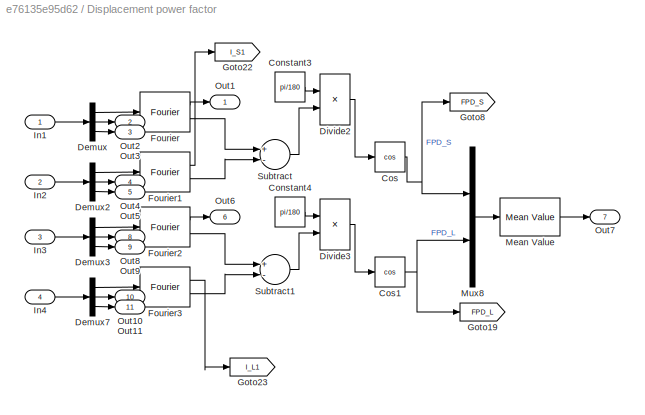
BLOCK [SubSystem] Displacement power factor
  Ports = [4, 11]
  RequestExecContextInheritance = off
  Variant = off
BLOCK [Constant] Displacement power factor/Constant3
  Value = pi/180
BLOCK [Constant] Displacement power factor/Constant4
  Value = pi/180
BLOCK [Trigonometry] Displacement power factor/Cos
  Operator = cos
  Ports = [1, 1]
BLOCK [Trigonometry] Displacement power factor/Cos1
  Operator = cos
  Ports = [1, 1]
BLOCK [Demux] Displacement power factor/Demux
  DisplayOption = bar
  Outputs = 3
  Ports = [1, 3]
BLOCK [Demux] Displacement power factor/Demux2
  DisplayOption = bar
  Outputs = 3
  Ports = [1, 3]
BLOCK [Demux] Displacement power factor/Demux3
  DisplayOption = bar
  Outputs = 3
  Ports = [1, 3]
BLOCK [Demux] Displacement power factor/Demux7
  DisplayOption = bar
  Outputs = 3
  Ports = [1, 3]
BLOCK [Product] Displacement power factor/Divide2
  InputSameDT = off
  Inputs = **
  OutDataTypeStr = Inherit: Inherit via internal rule
  Ports = [2, 1]
  RndMeth = Floor
  SaturateOnIntegerOverflow = off
BLOCK [Product] Displacement power factor/Divide3
  InputSameDT = off
  Inputs = **
  OutDataTypeStr = Inherit: Inherit via internal rule
  Ports = [2, 1]
  RndMeth = Floor
  SaturateOnIntegerOverflow = off
BLOCK [Reference] Displacement power factor/Fourier  REF=powerlib_meascontrol/Measurements/Fourier
  Ports = [1, 2]
  SourceBlock = powerlib_meascontrol/Measurements/Fourier
  SourceProductBaseCode = PS
  SourceProductName = Simscape Power Systems
  SourceType = Fourier
BLOCK [Reference] Displacement power factor/Fourier1  REF=powerlib_meascontrol/Measurements/Fourier
  Ports = [1, 2]
  SourceBlock = powerlib_meascontrol/Measurements/Fourier
  SourceProductBaseCode = PS
  SourceProductName = Simscape Power Systems
  SourceType = Fourier
BLOCK [Reference] Displacement power factor/Fourier2  REF=powerlib_meascontrol/Measurements/Fourier
  Ports = [1, 2]
  SourceBlock = powerlib_meascontrol/Measurements/Fourier
  SourceProductBaseCode = PS
  SourceProductName = Simscape Power Systems
  SourceType = Fourier
BLOCK [Reference] Displacement power factor/Fourier3  REF=powerlib_meascontrol/Measurements/Fourier
  Ports = [1, 2]
  SourceBlock = powerlib_meascontrol/Measurements/Fourier
  SourceProductBaseCode = PS
  SourceProductName = Simscape Power Systems
  SourceType = Fourier
BLOCK [Goto] Displacement power factor/Goto19
  GotoTag = FPD_L
BLOCK [Goto] Displacement power factor/Goto22
  GotoTag = I_S1
BLOCK [Goto] Displacement power factor/Goto23
  GotoTag = I_L1
BLOCK [Goto] Displacement power factor/Goto8
  GotoTag = FPD_S
BLOCK [Inport] Displacement power factor/In1
  IconDisplay = Port number
BLOCK [Inport] Displacement power factor/In2
  IconDisplay = Port number
  Port = 2
BLOCK [Inport] Displacement power factor/In3
  IconDisplay = Port number
  Port = 3
BLOCK [Inport] Displacement power factor/In4
  IconDisplay = Port number
  Port = 4
BLOCK [Reference] Displacement power factor/Mean Value  REF=powerlib_extras/Measurements/Mean Value
  Ports = [1, 1]
  SourceBlock = powerlib_extras/Measurements/Mean Value
  SourceType = Mean value
BLOCK [Mux] Displacement power factor/Mux8
  DisplayOption = bar
  Inputs = 2
  Ports = [2, 1]
BLOCK [Outport] Displacement power factor/Out1
  IconDisplay = Port number
BLOCK [Outport] Displacement power factor/Out10
  IconDisplay = Port number
  Port = 10
BLOCK [Outport] Displacement power factor/Out11
  IconDisplay = Port number
  Port = 11
BLOCK [Outport] Displacement power factor/Out2
  IconDisplay = Port number
  Port = 2
BLOCK [Outport] Displacement power factor/Out3
  IconDisplay = Port number
  Port = 3
BLOCK [Outport] Displacement power factor/Out4
  IconDisplay = Port number
  Port = 4
BLOCK [Outport] Displacement power factor/Out5
  IconDisplay = Port number
  Port = 5
BLOCK [Outport] Displacement power factor/Out6
  IconDisplay = Port number
  Port = 6
BLOCK [Outport] Displacement power factor/Out7
  IconDisplay = Port number
  Port = 7
BLOCK [Outport] Displacement power factor/Out8
  IconDisplay = Port number
  Port = 8
BLOCK [Outport] Displacement power factor/Out9
  IconDisplay = Port number
  Port = 9
BLOCK [Sum] Displacement power factor/Subtract
  InputSameDT = off
  Inputs = +-
  OutDataTypeStr = Inherit: Inherit via internal rule
  Ports = [2, 1]
  SaturateOnIntegerOverflow = off
BLOCK [Sum] Displacement power factor/Subtract1
  InputSameDT = off
  Inputs = +-
  OutDataTypeStr = Inherit: Inherit via internal rule
  Ports = [2, 1]
  SaturateOnIntegerOverflow = off
BLOCK [Reference] Filtro de salida1  REF=powerlib/Elements/Three-Phase
Series RLC Branch
  AttributesFormatString = \n
  Ports = [0, 0, 0, 0, 0, 3, 3]
  SourceBlock = powerlib/Elements/Three-Phase\nSeries RLC Branch
  SourceProductBaseCode = PS
  SourceProductName = Simscape Power Systems
  SourceType = Three-Phase Series RLC Branch
BLOCK [From] From
  GotoTag = IR_A_ref
BLOCK [From] From1
  GotoTag = ISabc
BLOCK [From] From10
  GotoTag = IR_C_ref
BLOCK [From] From11
  GotoTag = Vcca1
  TagVisibility = global
BLOCK [From] From12
  GotoTag = Vcca2
  TagVisibility = global
BLOCK [From] From13
  GotoTag = VF_A_ref
BLOCK [From] From14
  GotoTag = IFabc
  TagVisibility = global
BLOCK [From] From15
  GotoTag = Vcca3
  TagVisibility = global
BLOCK [From] From16
  GotoTag = VF_B_ref
BLOCK [From] From17
  GotoTag = VF_C_ref
BLOCK [From] From18
  GotoTag = ILabc
BLOCK [From] From19
  GotoTag = Vcaps
  IconDisplay = Tag and signal name
BLOCK [From] From2
  GotoTag = ILabc
BLOCK [From] From20
  GotoTag = Vccb1
  TagVisibility = global
BLOCK [From] From21
  GotoTag = VSabc
BLOCK [From] From22
  GotoTag = ISabc
BLOCK [From] From23
  GotoTag = VFabc
  TagVisibility = global
BLOCK [From] From24
  GotoTag = IFabc
  TagVisibility = global
BLOCK [From] From25
  GotoTag = VLabc
BLOCK [From] From26
  GotoTag = ILabc
BLOCK [From] From27
  GotoTag = ISabc
BLOCK [From] From28
  GotoTag = ILabc
BLOCK [From] From29
  GotoTag = Vccb2
  TagVisibility = global
BLOCK [From] From3
  GotoTag = Vcaps
  IconDisplay = Tag and signal name
BLOCK [From] From30
  GotoTag = Sa
BLOCK [From] From31
  GotoTag = Sb
BLOCK [From] From32
  GotoTag = Sc
BLOCK [From] From33
  GotoTag = VSabc
BLOCK [From] From34
  GotoTag = VFabc
  TagVisibility = global
BLOCK [From] From35
  GotoTag = IFabc
  TagVisibility = global
BLOCK [From] From36
  GotoTag = IRabc
BLOCK [From] From37
  GotoTag = Vccb3
  TagVisibility = global
BLOCK [From] From38
  GotoTag = Vccc1
  TagVisibility = global
BLOCK [From] From39
  GotoTag = Vccc2
  TagVisibility = global
BLOCK [From] From4
  GotoTag = VSabc
BLOCK [From] From40
  GotoTag = Vccc3
  TagVisibility = global
BLOCK [From] From41
  GotoTag = VLabc
BLOCK [From] From42
  GotoTag = THD_S
  TagVisibility = global
BLOCK [From] From44
  GotoTag = THD_L
  TagVisibility = global
BLOCK [From] From5
  GotoTag = IR_B_ref
BLOCK [From] From6
  GotoTag = IFabc
  TagVisibility = global
BLOCK [From] From7
  GotoTag = VSabc
BLOCK [From] From75
  GotoTag = Ps
BLOCK [From] From76
  GotoTag = Pc
BLOCK [From] From77
  GotoTag = PL
BLOCK [From] From78
  GotoTag = Qs
BLOCK [From] From79
  GotoTag = Qc
BLOCK [From] From8
  GotoTag = ILabc
BLOCK [From] From80
  GotoTag = QL
BLOCK [From] From9
  GotoTag = ISabc
BLOCK [Goto] Goto
  GotoTag = VSabc
BLOCK [Goto] Goto1
  GotoTag = ISabc
BLOCK [Goto] Goto10
  GotoTag = Sb
BLOCK [Goto] Goto11
  GotoTag = Sc
BLOCK [Goto] Goto12
  GotoTag = VF_A_ref
BLOCK [Goto] Goto13
  GotoTag = VF_B_ref
BLOCK [Goto] Goto14
  GotoTag = VF_C_ref
BLOCK [Goto] Goto15
  GotoTag = VFabc
  TagVisibility = global
BLOCK [Goto] Goto16
  GotoTag = IR_C_ref
BLOCK [Goto] Goto17
  GotoTag = IRabc
BLOCK [Goto] Goto18
  GotoTag = Vcaps
BLOCK [Goto] Goto2
  GotoTag = VLabc
BLOCK [Goto] Goto3
  GotoTag = ILabc
BLOCK [Goto] Goto49
  GotoTag = Ps
BLOCK [Goto] Goto5
  GotoTag = IFabc
  TagVisibility = global
BLOCK [Goto] Goto50
  GotoTag = Qs
BLOCK [Goto] Goto51
  GotoTag = Pc
BLOCK [Goto] Goto52
  GotoTag = Qc
BLOCK [Goto] Goto53
  GotoTag = PL
BLOCK [Goto] Goto54
  GotoTag = QL
BLOCK [Goto] Goto6
  GotoTag = IR_A_ref
BLOCK [Goto] Goto7
  GotoTag = IR_B_ref
BLOCK [Goto] Goto9
  GotoTag = Sa
BLOCK [Reference] Ground  REF=powerlib/Elements/Ground
  Ports = [0, 0, 0, 0, 0, 1]
  SourceBlock = powerlib/Elements/Ground
  SourceProductBaseCode = PS
  SourceProductName = Simscape Power Systems
  SourceType = Ground
BLOCK [MATLABFcn] MBPC
  MATLABFcn = ControlAB
  OutputDimensions = 6
  Ports = [1, 1]
BLOCK [Reference] Medidor de tensión y corriente de la carga   REF=powerlib/Measurements/Three-Phase
V-I Measurement
  Ports = [0, 2, 0, 0, 0, 3, 3]
  SourceBlock = powerlib/Measurements/Three-Phase\nV-I Measurement
  SourceProductBaseCode = PS
  SourceProductName = Simscape Power Systems
  SourceType = Three-Phase VI Measurement
BLOCK [Reference] Medidor de tensión y corriente de la red eléctrica  REF=powerlib/Measurements/Three-Phase
V-I Measurement
  Ports = [0, 2, 0, 0, 0, 3, 3]
  SourceBlock = powerlib/Measurements/Three-Phase\nV-I Measurement
  SourceProductBaseCode = PS
  SourceProductName = Simscape Power Systems
  SourceType = Three-Phase VI Measurement
BLOCK [Mux] Mux
  DisplayOption = bar
  Inputs = 2
  Ports = [2, 1]
BLOCK [Mux] Mux1
  DisplayOption = bar
  Inputs = 3
  Ports = [3, 1]
BLOCK [Mux] Mux15
  DisplayOption = bar
  Inputs = 3
  Ports = [3, 1]
BLOCK [Mux] Mux2
  DisplayOption = bar
  Inputs = 9
  Ports = [9, 1]
BLOCK [Mux] Mux23
  DisplayOption = bar
  Inputs = 3
  Ports = [3, 1]
BLOCK [Mux] Mux3
  DisplayOption = bar
  Inputs = 2
  Ports = [2, 1]
BLOCK [Mux] Mux5
  DisplayOption = bar
  Inputs = 5
  Ports = [5, 1]
BLOCK [Mux] Mux6
  DisplayOption = bar
  Inputs = 3
  Ports = [3, 1]
BLOCK [Mux] Mux7
  DisplayOption = bar
  Inputs = 2
  Ports = [2, 1]
BLOCK [Step] NLLon 
  SampleTime = 0
  Time = NLLon
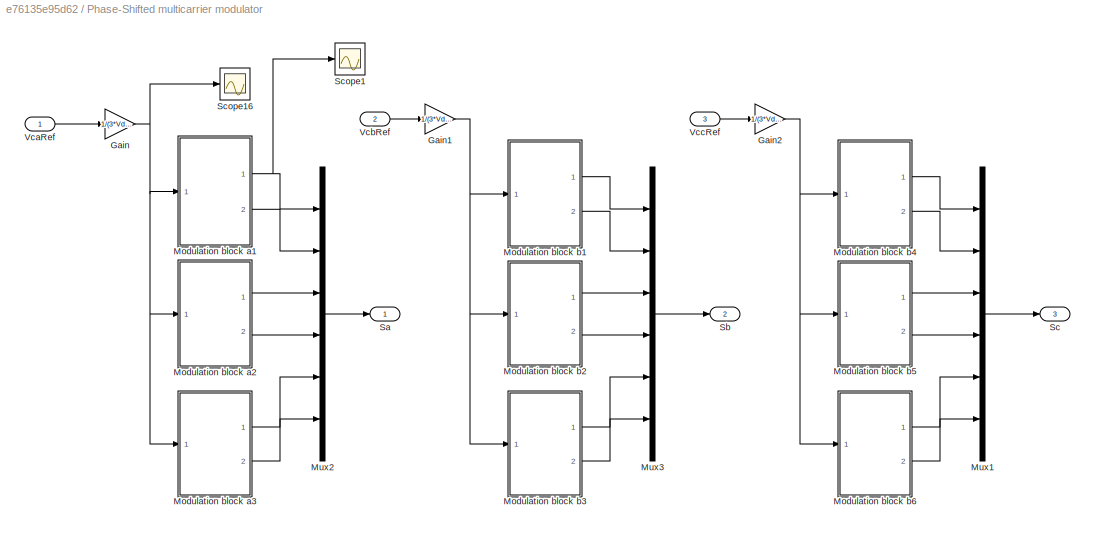
BLOCK [SubSystem] Phase-Shifted multicarrier modulator
  Ports = [3, 3]
  RequestExecContextInheritance = off
  Variant = off
BLOCK [Gain] Phase-Shifted multicarrier modulator/Gain
  Gain = 1/(3*Vdc)
  OutDataTypeStr = Inherit: Inherit via internal rule
  ParamDataTypeStr = Inherit: Inherit via internal rule
  SaturateOnIntegerOverflow = off
BLOCK [Gain] Phase-Shifted multicarrier modulator/Gain1
  Gain = 1/(3*Vdc)
  OutDataTypeStr = Inherit: Inherit via internal rule
  ParamDataTypeStr = Inherit: Inherit via internal rule
  SaturateOnIntegerOverflow = off
BLOCK [Gain] Phase-Shifted multicarrier modulator/Gain2
  Gain = 1/(3*Vdc)
  OutDataTypeStr = Inherit: Inherit via internal rule
  ParamDataTypeStr = Inherit: Inherit via internal rule
  SaturateOnIntegerOverflow = off
BLOCK [SubSystem] Phase-Shifted multicarrier modulator/Modulation block a1
  Ports = [1, 2]
  RequestExecContextInheritance = off
  Variant = off
BLOCK [DataTypeConversion] Phase-Shifted multicarrier modulator/Modulation block a1/Data Type Conversion
  OutDataTypeStr = double
  RndMeth = Floor
  SaturateOnIntegerOverflow = off
BLOCK [DataTypeConversion] Phase-Shifted multicarrier modulator/Modulation block a1/Data Type Conversion3
  OutDataTypeStr = double
  RndMeth = Floor
  SaturateOnIntegerOverflow = off
BLOCK [Gain] Phase-Shifted multicarrier modulator/Modulation block a1/Gain1
  Gain = -1
  OutDataTypeStr = Inherit: Inherit via internal rule
  ParamDataTypeStr = Inherit: Inherit via internal rule
  SaturateOnIntegerOverflow = off
BLOCK [RelationalOperator] Phase-Shifted multicarrier modulator/Modulation block a1/Relational Operator
  InputSameDT = off
  Operator = <=
  OutDataTypeStr = boolean
  Ports = [2, 1]
BLOCK [RelationalOperator] Phase-Shifted multicarrier modulator/Modulation block a1/Relational Operator2
  InputSameDT = off
  Operator = <=
  OutDataTypeStr = boolean
  Ports = [2, 1]
BLOCK [Reference] Phase-Shifted multicarrier modulator/Modulation block a1/Repeating Sequence1  REF=simulink/Sources/Repeating
Sequence
  Ports = [0, 1]
  SourceBlock = simulink/Sources/Repeating\nSequence
  SourceProductBaseCode = SL
  SourceProductName = Simulink
  SourceType = Repeating table
BLOCK [Outport] Phase-Shifted multicarrier modulator/Modulation block a1/S1
  IconDisplay = Port number
BLOCK [Outport] Phase-Shifted multicarrier modulator/Modulation block a1/S3
  IconDisplay = Port number
  Port = 2
BLOCK [Scope] Phase-Shifted multicarrier modulator/Modulation block a1/Scope
  NumInputPorts = 1
  Ports = [1]
  ScopeSpecificationString = Simulink.scopes.TimeScopeBlockCfg('CurrentConfiguration', extmgr.ConfigurationSet(extmgr.Configuration('Core','General UI',true),extmgr.Configuration('Core','Source UI',true),extmgr.Configuration('Sources','WiredSimulink',true,'DataLogging',true,'DataLoggingVariableName','carrier','DataLoggingSaveFormat','StructureWithTime','DataLoggingDecimation','1','DataLoggingDecimateData',true),extmgr.Configu...<+2049ch>
BLOCK [Inport] Phase-Shifted multicarrier modulator/Modulation block a1/ma
  IconDisplay = Port number
BLOCK [SubSystem] Phase-Shifted multicarrier modulator/Modulation block a2
  Ports = [1, 2]
  RequestExecContextInheritance = off
  Variant = off
BLOCK [DataTypeConversion] Phase-Shifted multicarrier modulator/Modulation block a2/Data Type Conversion
  OutDataTypeStr = double
  RndMeth = Floor
  SaturateOnIntegerOverflow = off
BLOCK [DataTypeConversion] Phase-Shifted multicarrier modulator/Modulation block a2/Data Type Conversion3
  OutDataTypeStr = double
  RndMeth = Floor
  SaturateOnIntegerOverflow = off
BLOCK [Gain] Phase-Shifted multicarrier modulator/Modulation block a2/Gain1
  Gain = -1
  OutDataTypeStr = Inherit: Inherit via internal rule
  ParamDataTypeStr = Inherit: Inherit via internal rule
  SaturateOnIntegerOverflow = off
BLOCK [RelationalOperator] Phase-Shifted multicarrier modulator/Modulation block a2/Relational Operator
  InputSameDT = off
  Operator = <=
  OutDataTypeStr = boolean
  Ports = [2, 1]
BLOCK [RelationalOperator] Phase-Shifted multicarrier modulator/Modulation block a2/Relational Operator2
  InputSameDT = off
  Operator = <=
  OutDataTypeStr = boolean
  Ports = [2, 1]
BLOCK [Reference] Phase-Shifted multicarrier modulator/Modulation block a2/Repeating Sequence1  REF=simulink/Sources/Repeating
Sequence
  Ports = [0, 1]
  SourceBlock = simulink/Sources/Repeating\nSequence
  SourceProductBaseCode = SL
  SourceProductName = Simulink
  SourceType = Repeating table
BLOCK [Outport] Phase-Shifted multicarrier modulator/Modulation block a2/S1
  IconDisplay = Port number
BLOCK [Outport] Phase-Shifted multicarrier modulator/Modulation block a2/S3
  IconDisplay = Port number
  Port = 2
BLOCK [TransportDelay] Phase-Shifted multicarrier modulator/Modulation block a2/Transport Delay
  DelayTime = Tm*(180/nc)/360
  Ports = [1, 1]
BLOCK [Inport] Phase-Shifted multicarrier modulator/Modulation block a2/ma
  IconDisplay = Port number
BLOCK [SubSystem] Phase-Shifted multicarrier modulator/Modulation block a3
  Ports = [1, 2]
  RequestExecContextInheritance = off
  Variant = off
BLOCK [DataTypeConversion] Phase-Shifted multicarrier modulator/Modulation block a3/Data Type Conversion
  OutDataTypeStr = double
  RndMeth = Floor
  SaturateOnIntegerOverflow = off
BLOCK [DataTypeConversion] Phase-Shifted multicarrier modulator/Modulation block a3/Data Type Conversion3
  OutDataTypeStr = double
  RndMeth = Floor
  SaturateOnIntegerOverflow = off
BLOCK [Gain] Phase-Shifted multicarrier modulator/Modulation block a3/Gain1
  Gain = -1
  OutDataTypeStr = Inherit: Inherit via internal rule
  ParamDataTypeStr = Inherit: Inherit via internal rule
  SaturateOnIntegerOverflow = off
BLOCK [RelationalOperator] Phase-Shifted multicarrier modulator/Modulation block a3/Relational Operator
  InputSameDT = off
  Operator = <=
  OutDataTypeStr = boolean
  Ports = [2, 1]
BLOCK [RelationalOperator] Phase-Shifted multicarrier modulator/Modulation block a3/Relational Operator2
  InputSameDT = off
  Operator = <=
  OutDataTypeStr = boolean
  Ports = [2, 1]
BLOCK [Reference] Phase-Shifted multicarrier modulator/Modulation block a3/Repeating Sequence1  REF=simulink/Sources/Repeating
Sequence
  Ports = [0, 1]
  SourceBlock = simulink/Sources/Repeating\nSequence
  SourceProductBaseCode = SL
  SourceProductName = Simulink
  SourceType = Repeating table
BLOCK [Outport] Phase-Shifted multicarrier modulator/Modulation block a3/S1
  IconDisplay = Port number
BLOCK [Outport] Phase-Shifted multicarrier modulator/Modulation block a3/S3
  IconDisplay = Port number
  Port = 2
BLOCK [TransportDelay] Phase-Shifted multicarrier modulator/Modulation block a3/Transport Delay
  DelayTime = (Tm*(180/nc)/360)*2
  Ports = [1, 1]
BLOCK [Inport] Phase-Shifted multicarrier modulator/Modulation block a3/ma
  IconDisplay = Port number
BLOCK [SubSystem] Phase-Shifted multicarrier modulator/Modulation block b1
  Ports = [1, 2]
  RequestExecContextInheritance = off
  Variant = off
BLOCK [DataTypeConversion] Phase-Shifted multicarrier modulator/Modulation block b1/Data Type Conversion
  OutDataTypeStr = double
  RndMeth = Floor
  SaturateOnIntegerOverflow = off
BLOCK [DataTypeConversion] Phase-Shifted multicarrier modulator/Modulation block b1/Data Type Conversion3
  OutDataTypeStr = double
  RndMeth = Floor
  SaturateOnIntegerOverflow = off
BLOCK [Gain] Phase-Shifted multicarrier modulator/Modulation block b1/Gain1
  Gain = -1
  OutDataTypeStr = Inherit: Inherit via internal rule
  ParamDataTypeStr = Inherit: Inherit via internal rule
  SaturateOnIntegerOverflow = off
BLOCK [RelationalOperator] Phase-Shifted multicarrier modulator/Modulation block b1/Relational Operator
  InputSameDT = off
  Operator = <=
  OutDataTypeStr = boolean
  Ports = [2, 1]
BLOCK [RelationalOperator] Phase-Shifted multicarrier modulator/Modulation block b1/Relational Operator2
  InputSameDT = off
  Operator = <=
  OutDataTypeStr = boolean
  Ports = [2, 1]
BLOCK [Reference] Phase-Shifted multicarrier modulator/Modulation block b1/Repeating Sequence1  REF=simulink/Sources/Repeating
Sequence
  Ports = [0, 1]
  SourceBlock = simulink/Sources/Repeating\nSequence
  SourceProductBaseCode = SL
  SourceProductName = Simulink
  SourceType = Repeating table
BLOCK [Outport] Phase-Shifted multicarrier modulator/Modulation block b1/S1
  IconDisplay = Port number
BLOCK [Outport] Phase-Shifted multicarrier modulator/Modulation block b1/S3
  IconDisplay = Port number
  Port = 2
BLOCK [Inport] Phase-Shifted multicarrier modulator/Modulation block b1/mb
  IconDisplay = Port number
BLOCK [SubSystem] Phase-Shifted multicarrier modulator/Modulation block b2
  Ports = [1, 2]
  RequestExecContextInheritance = off
  Variant = off
BLOCK [DataTypeConversion] Phase-Shifted multicarrier modulator/Modulation block b2/Data Type Conversion
  OutDataTypeStr = double
  RndMeth = Floor
  SaturateOnIntegerOverflow = off
BLOCK [DataTypeConversion] Phase-Shifted multicarrier modulator/Modulation block b2/Data Type Conversion3
  OutDataTypeStr = double
  RndMeth = Floor
  SaturateOnIntegerOverflow = off
BLOCK [Gain] Phase-Shifted multicarrier modulator/Modulation block b2/Gain1
  Gain = -1
  OutDataTypeStr = Inherit: Inherit via internal rule
  ParamDataTypeStr = Inherit: Inherit via internal rule
  SaturateOnIntegerOverflow = off
BLOCK [RelationalOperator] Phase-Shifted multicarrier modulator/Modulation block b2/Relational Operator
  InputSameDT = off
  Operator = <=
  OutDataTypeStr = boolean
  Ports = [2, 1]
BLOCK [RelationalOperator] Phase-Shifted multicarrier modulator/Modulation block b2/Relational Operator2
  InputSameDT = off
  Operator = <=
  OutDataTypeStr = boolean
  Ports = [2, 1]
BLOCK [Reference] Phase-Shifted multicarrier modulator/Modulation block b2/Repeating Sequence1  REF=simulink/Sources/Repeating
Sequence
  Ports = [0, 1]
  SourceBlock = simulink/Sources/Repeating\nSequence
  SourceProductBaseCode = SL
  SourceProductName = Simulink
  SourceType = Repeating table
BLOCK [Outport] Phase-Shifted multicarrier modulator/Modulation block b2/S1
  IconDisplay = Port number
BLOCK [Outport] Phase-Shifted multicarrier modulator/Modulation block b2/S3
  IconDisplay = Port number
  Port = 2
BLOCK [TransportDelay] Phase-Shifted multicarrier modulator/Modulation block b2/Transport Delay
  DelayTime = Tm*(180/nc)/360
  Ports = [1, 1]
BLOCK [Inport] Phase-Shifted multicarrier modulator/Modulation block b2/mb
  IconDisplay = Port number
BLOCK [SubSystem] Phase-Shifted multicarrier modulator/Modulation block b3
  Ports = [1, 2]
  RequestExecContextInheritance = off
  Variant = off
BLOCK [DataTypeConversion] Phase-Shifted multicarrier modulator/Modulation block b3/Data Type Conversion
  OutDataTypeStr = double
  RndMeth = Floor
  SaturateOnIntegerOverflow = off
BLOCK [DataTypeConversion] Phase-Shifted multicarrier modulator/Modulation block b3/Data Type Conversion3
  OutDataTypeStr = double
  RndMeth = Floor
  SaturateOnIntegerOverflow = off
BLOCK [Gain] Phase-Shifted multicarrier modulator/Modulation block b3/Gain1
  Gain = -1
  OutDataTypeStr = Inherit: Inherit via internal rule
  ParamDataTypeStr = Inherit: Inherit via internal rule
  SaturateOnIntegerOverflow = off
BLOCK [RelationalOperator] Phase-Shifted multicarrier modulator/Modulation block b3/Relational Operator
  InputSameDT = off
  Operator = <=
  OutDataTypeStr = boolean
  Ports = [2, 1]
BLOCK [RelationalOperator] Phase-Shifted multicarrier modulator/Modulation block b3/Relational Operator2
  InputSameDT = off
  Operator = <=
  OutDataTypeStr = boolean
  Ports = [2, 1]
BLOCK [Reference] Phase-Shifted multicarrier modulator/Modulation block b3/Repeating Sequence1  REF=simulink/Sources/Repeating
Sequence
  Ports = [0, 1]
  SourceBlock = simulink/Sources/Repeating\nSequence
  SourceProductBaseCode = SL
  SourceProductName = Simulink
  SourceType = Repeating table
BLOCK [Outport] Phase-Shifted multicarrier modulator/Modulation block b3/S1
  IconDisplay = Port number
BLOCK [Outport] Phase-Shifted multicarrier modulator/Modulation block b3/S3
  IconDisplay = Port number
  Port = 2
BLOCK [TransportDelay] Phase-Shifted multicarrier modulator/Modulation block b3/Transport Delay
  DelayTime = (Tm*(180/nc)/360)*2
  Ports = [1, 1]
BLOCK [Inport] Phase-Shifted multicarrier modulator/Modulation block b3/mb
  IconDisplay = Port number
BLOCK [SubSystem] Phase-Shifted multicarrier modulator/Modulation block b4
  Ports = [1, 2]
  RequestExecContextInheritance = off
  Variant = off
BLOCK [DataTypeConversion] Phase-Shifted multicarrier modulator/Modulation block b4/Data Type Conversion
  OutDataTypeStr = double
  RndMeth = Floor
  SaturateOnIntegerOverflow = off
BLOCK [DataTypeConversion] Phase-Shifted multicarrier modulator/Modulation block b4/Data Type Conversion3
  OutDataTypeStr = double
  RndMeth = Floor
  SaturateOnIntegerOverflow = off
BLOCK [Gain] Phase-Shifted multicarrier modulator/Modulation block b4/Gain1
  Gain = -1
  OutDataTypeStr = Inherit: Inherit via internal rule
  ParamDataTypeStr = Inherit: Inherit via internal rule
  SaturateOnIntegerOverflow = off
BLOCK [RelationalOperator] Phase-Shifted multicarrier modulator/Modulation block b4/Relational Operator
  InputSameDT = off
  Operator = <=
  OutDataTypeStr = boolean
  Ports = [2, 1]
BLOCK [RelationalOperator] Phase-Shifted multicarrier modulator/Modulation block b4/Relational Operator2
  InputSameDT = off
  Operator = <=
  OutDataTypeStr = boolean
  Ports = [2, 1]
BLOCK [Reference] Phase-Shifted multicarrier modulator/Modulation block b4/Repeating Sequence1  REF=simulink/Sources/Repeating
Sequence
  Ports = [0, 1]
  SourceBlock = simulink/Sources/Repeating\nSequence
  SourceProductBaseCode = SL
  SourceProductName = Simulink
  SourceType = Repeating table
BLOCK [Outport] Phase-Shifted multicarrier modulator/Modulation block b4/S1
  IconDisplay = Port number
BLOCK [Outport] Phase-Shifted multicarrier modulator/Modulation block b4/S3
  IconDisplay = Port number
  Port = 2
BLOCK [Inport] Phase-Shifted multicarrier modulator/Modulation block b4/mb
  IconDisplay = Port number
BLOCK [SubSystem] Phase-Shifted multicarrier modulator/Modulation block b5
  Ports = [1, 2]
  RequestExecContextInheritance = off
  Variant = off
BLOCK [DataTypeConversion] Phase-Shifted multicarrier modulator/Modulation block b5/Data Type Conversion
  OutDataTypeStr = double
  RndMeth = Floor
  SaturateOnIntegerOverflow = off
BLOCK [DataTypeConversion] Phase-Shifted multicarrier modulator/Modulation block b5/Data Type Conversion3
  OutDataTypeStr = double
  RndMeth = Floor
  SaturateOnIntegerOverflow = off
BLOCK [Gain] Phase-Shifted multicarrier modulator/Modulation block b5/Gain1
  Gain = -1
  OutDataTypeStr = Inherit: Inherit via internal rule
  ParamDataTypeStr = Inherit: Inherit via internal rule
  SaturateOnIntegerOverflow = off
BLOCK [RelationalOperator] Phase-Shifted multicarrier modulator/Modulation block b5/Relational Operator
  InputSameDT = off
  Operator = <=
  OutDataTypeStr = boolean
  Ports = [2, 1]
BLOCK [RelationalOperator] Phase-Shifted multicarrier modulator/Modulation block b5/Relational Operator2
  InputSameDT = off
  Operator = <=
  OutDataTypeStr = boolean
  Ports = [2, 1]
BLOCK [Reference] Phase-Shifted multicarrier modulator/Modulation block b5/Repeating Sequence1  REF=simulink/Sources/Repeating
Sequence
  Ports = [0, 1]
  SourceBlock = simulink/Sources/Repeating\nSequence
  SourceProductBaseCode = SL
  SourceProductName = Simulink
  SourceType = Repeating table
BLOCK [Outport] Phase-Shifted multicarrier modulator/Modulation block b5/S1
  IconDisplay = Port number
BLOCK [Outport] Phase-Shifted multicarrier modulator/Modulation block b5/S3
  IconDisplay = Port number
  Port = 2
BLOCK [TransportDelay] Phase-Shifted multicarrier modulator/Modulation block b5/Transport Delay
  DelayTime = Tm*(180/nc)/360
  Ports = [1, 1]
BLOCK [Inport] Phase-Shifted multicarrier modulator/Modulation block b5/mb
  IconDisplay = Port number
BLOCK [SubSystem] Phase-Shifted multicarrier modulator/Modulation block b6
  Ports = [1, 2]
  RequestExecContextInheritance = off
  Variant = off
BLOCK [DataTypeConversion] Phase-Shifted multicarrier modulator/Modulation block b6/Data Type Conversion
  OutDataTypeStr = double
  RndMeth = Floor
  SaturateOnIntegerOverflow = off
BLOCK [DataTypeConversion] Phase-Shifted multicarrier modulator/Modulation block b6/Data Type Conversion3
  OutDataTypeStr = double
  RndMeth = Floor
  SaturateOnIntegerOverflow = off
BLOCK [Gain] Phase-Shifted multicarrier modulator/Modulation block b6/Gain1
  Gain = -1
  OutDataTypeStr = Inherit: Inherit via internal rule
  ParamDataTypeStr = Inherit: Inherit via internal rule
  SaturateOnIntegerOverflow = off
BLOCK [RelationalOperator] Phase-Shifted multicarrier modulator/Modulation block b6/Relational Operator
  InputSameDT = off
  Operator = <=
  OutDataTypeStr = boolean
  Ports = [2, 1]
BLOCK [RelationalOperator] Phase-Shifted multicarrier modulator/Modulation block b6/Relational Operator2
  InputSameDT = off
  Operator = <=
  OutDataTypeStr = boolean
  Ports = [2, 1]
BLOCK [Reference] Phase-Shifted multicarrier modulator/Modulation block b6/Repeating Sequence1  REF=simulink/Sources/Repeating
Sequence
  Ports = [0, 1]
  SourceBlock = simulink/Sources/Repeating\nSequence
  SourceProductBaseCode = SL
  SourceProductName = Simulink
  SourceType = Repeating table
BLOCK [Outport] Phase-Shifted multicarrier modulator/Modulation block b6/S1
  IconDisplay = Port number
BLOCK [Outport] Phase-Shifted multicarrier modulator/Modulation block b6/S3
  IconDisplay = Port number
  Port = 2
BLOCK [TransportDelay] Phase-Shifted multicarrier modulator/Modulation block b6/Transport Delay
  DelayTime = (Tm*(180/nc)/360)*2
  Ports = [1, 1]
BLOCK [Inport] Phase-Shifted multicarrier modulator/Modulation block b6/mb
  IconDisplay = Port number
BLOCK [Mux] Phase-Shifted multicarrier modulator/Mux1
  DisplayOption = bar
  Inputs = 6
  Ports = [6, 1]
BLOCK [Mux] Phase-Shifted multicarrier modulator/Mux2
  DisplayOption = bar
  Inputs = 6
  Ports = [6, 1]
BLOCK [Mux] Phase-Shifted multicarrier modulator/Mux3
  DisplayOption = bar
  Inputs = 6
  Ports = [6, 1]
BLOCK [Outport] Phase-Shifted multicarrier modulator/Sa
  IconDisplay = Port number
BLOCK [Outport] Phase-Shifted multicarrier modulator/Sb
  IconDisplay = Port number
  Port = 2
BLOCK [Outport] Phase-Shifted multicarrier modulator/Sc
  IconDisplay = Port number
  Port = 3
BLOCK [Scope] Phase-Shifted multicarrier modulator/Scope1
  NumInputPorts = 1
  Ports = [1]
  ScopeSpecificationString = Simulink.scopes.TimeScopeBlockCfg('CurrentConfiguration', extmgr.ConfigurationSet(extmgr.Configuration('Core','General UI',true),extmgr.Configuration('Core','Source UI',true),extmgr.Configuration('Sources','WiredSimulink',true,'DataLogging',true,'DataLoggingVariableName','vg11','DataLoggingSaveFormat','StructureWithTime','DataLoggingDecimation','1','DataLoggingDecimateData',true),extmgr.Configurat...<+1703ch>
BLOCK [Scope] Phase-Shifted multicarrier modulator/Scope16
  NumInputPorts = 1
  Ports = [1]
  ScopeSpecificationString = Simulink.scopes.TimeScopeBlockCfg('CurrentConfiguration', extmgr.ConfigurationSet(extmgr.Configuration('Core','General UI',true),extmgr.Configuration('Core','Source UI',true),extmgr.Configuration('Sources','WiredSimulink',true,'DataLogging',true,'DataLoggingVariableName','vcareftri','DataLoggingSaveFormat','Array','DataLoggingDecimation','1','DataLoggingDecimateData',true),extmgr.Configuration('Vi...<+1673ch>
BLOCK [Inport] Phase-Shifted multicarrier modulator/VcaRef
  IconDisplay = Port number
BLOCK [Inport] Phase-Shifted multicarrier modulator/VcbRef
  IconDisplay = Port number
  Port = 2
BLOCK [Inport] Phase-Shifted multicarrier modulator/VccRef
  IconDisplay = Port number
  Port = 3
BLOCK [SubSystem] Power Factor 
  Ports = [2, 1]
  RequestExecContextInheritance = off
  Variant = off
BLOCK [Sum] Power Factor /Add
  InputSameDT = off
  OutDataTypeStr = Inherit: Inherit via internal rule
  Ports = [2, 1]
  SaturateOnIntegerOverflow = off
BLOCK [Sum] Power Factor /Add1
  InputSameDT = off
  OutDataTypeStr = Inherit: Inherit via internal rule
  Ports = [2, 1]
  SaturateOnIntegerOverflow = off
BLOCK [Constant] Power Factor /Constant
BLOCK [Constant] Power Factor /Constant2
BLOCK [Product] Power Factor /Divide
  InputSameDT = off
  Inputs = */
  OutDataTypeStr = Inherit: Inherit via internal rule
  Ports = [2, 1]
  RndMeth = Floor
  SaturateOnIntegerOverflow = off
BLOCK [Product] Power Factor /Divide1
  InputSameDT = off
  Inputs = */
  OutDataTypeStr = Inherit: Inherit via internal rule
  Ports = [2, 1]
  RndMeth = Floor
  SaturateOnIntegerOverflow = off
BLOCK [From] Power Factor /From43
  GotoTag = FPD_S
BLOCK [From] Power Factor /From45
  GotoTag = FPD_L
BLOCK [Inport] Power Factor /In1
  IconDisplay = Port number
BLOCK [Inport] Power Factor /In2
  IconDisplay = Port number
  Port = 2
BLOCK [Math] Power Factor /Magnitude Square
  Operator = magnitude^2
  Ports = [1, 1]
  RndMeth = Zero
BLOCK [Math] Power Factor /Magnitude Square1
  Operator = magnitude^2
  Ports = [1, 1]
  RndMeth = Zero
BLOCK [Reference] Power Factor /Mean Value1  REF=powerlib_extras/Measurements/Mean Value
  Ports = [1, 1]
  SourceBlock = powerlib_extras/Measurements/Mean Value
  SourceType = Mean value
BLOCK [Mux] Power Factor /Mux9
  DisplayOption = bar
  Inputs = 2
  Ports = [2, 1]
BLOCK [Outport] Power Factor /Out1
  IconDisplay = Port number
BLOCK [Sqrt] Power Factor /Sqrt
BLOCK [Sqrt] Power Factor /Sqrt1
BLOCK [Step] RL on 
  SampleTime = 0
  Time = RLon
BLOCK [Scope] Scope
  NumInputPorts = 3
  Ports = [3]
  ScopeSpecificationString = Simulink.scopes.TimeScopeBlockCfg('CurrentConfiguration', extmgr.ConfigurationSet(extmgr.Configuration('Core','General UI',true,'FigureColor',[1 1 1]),extmgr.Configuration('Core','Source UI',true),extmgr.Configuration('Sources','WiredSimulink',true,'DataLogging',true),extmgr.Configuration('Visuals','Time Domain',true,'SerializedDisplays',{struct('MinYLimReal','-7.36321','MaxYLimReal','8.80481','YL...<+4052ch>
BLOCK [Scope] Scope1
  NumInputPorts = 1
  Ports = [1]
  ScopeSpecificationString = Simulink.scopes.TimeScopeBlockCfg('CurrentConfiguration', extmgr.ConfigurationSet(extmgr.Configuration('Core','General UI',true,'FigureColor',[1 1 1]),extmgr.Configuration('Core','Source UI',true),extmgr.Configuration('Sources','WiredSimulink',true,'DataLoggingVariableName','ScopeData1'),extmgr.Configuration('Visuals','Time Domain',true,'SerializedDisplays',{struct('MinYLimReal','-0.125','MaxYLimR...<+2245ch>
BLOCK [Scope] Scope15
  NumInputPorts = 1
  Ports = [1]
  ScopeSpecificationString = Simulink.scopes.TimeScopeBlockCfg('CurrentConfiguration', extmgr.ConfigurationSet(extmgr.Configuration('Core','General UI',true,'FigureColor',[1 1 1]),extmgr.Configuration('Core','Source UI',true),extmgr.Configuration('Sources','WiredSimulink',true,'DataLogging',true,'DataLoggingVariableName','Vo14','DataLoggingSaveFormat','Array','DataLoggingDecimation','1','DataLoggingDecimateData',true),extmgr....<+2081ch>
BLOCK [Scope] Scope18
  NumInputPorts = 1
  Ports = [1]
  ScopeSpecificationString = Simulink.scopes.TimeScopeBlockCfg('CurrentConfiguration', extmgr.ConfigurationSet(extmgr.Configuration('Core','General UI',true),extmgr.Configuration('Core','Source UI',true),extmgr.Configuration('Sources','WiredSimulink',true,'DataLogging',true,'DataLoggingVariableName','Vo17','DataLoggingSaveFormat','Array','DataLoggingDecimation','1','DataLoggingDecimateData',true),extmgr.Configuration('Visuals...<+1605ch>
BLOCK [Scope] Scope19
  NumInputPorts = 1
  Ports = [1]
  ScopeSpecificationString = Simulink.scopes.TimeScopeBlockCfg('CurrentConfiguration', extmgr.ConfigurationSet(extmgr.Configuration('Core','General UI',true),extmgr.Configuration('Core','Source UI',true),extmgr.Configuration('Sources','WiredSimulink',true,'DataLogging',true,'DataLoggingVariableName','Vo18','DataLoggingSaveFormat','Array','DataLoggingDecimation','1','DataLoggingDecimateData',true),extmgr.Configuration('Visuals...<+1605ch>
BLOCK [Scope] Scope2
  NumInputPorts = 1
  Ports = [1]
  ScopeSpecificationString = Simulink.scopes.TimeScopeBlockCfg('CurrentConfiguration', extmgr.ConfigurationSet(extmgr.Configuration('Core','General UI',true),extmgr.Configuration('Core','Source UI',true),extmgr.Configuration('Sources','WiredSimulink',true,'DataLoggingVariableName','ScopeData3'),extmgr.Configuration('Visuals','Time Domain',true,'SerializedDisplays',{struct('MinYLimReal','-4.3311','MaxYLimReal','38.97996','YLab...<+1580ch>
BLOCK [Scope] Scope20
  NumInputPorts = 1
  Ports = [1]
  ScopeSpecificationString = Simulink.scopes.TimeScopeBlockCfg('CurrentConfiguration', extmgr.ConfigurationSet(extmgr.Configuration('Core','General UI',true),extmgr.Configuration('Core','Source UI',true),extmgr.Configuration('Sources','WiredSimulink',true,'DataLogging',true,'DataLoggingVariableName','Vo19','DataLoggingSaveFormat','Array','DataLoggingDecimation','1','DataLoggingDecimateData',true),extmgr.Configuration('Visuals...<+1605ch>
BLOCK [Scope] Scope21
  NumInputPorts = 1
  Ports = [1]
  ScopeSpecificationString = Simulink.scopes.TimeScopeBlockCfg('CurrentConfiguration', extmgr.ConfigurationSet(extmgr.Configuration('Core','General UI',true,'FigureColor',[1 1 1]),extmgr.Configuration('Core','Source UI',true),extmgr.Configuration('Sources','WiredSimulink',true,'DataLogging',true,'DataLoggingVariableName','Vo20','DataLoggingSaveFormat','Array','DataLoggingDecimation','1','DataLoggingDecimateData',true),extmgr....<+2233ch>
BLOCK [Scope] Scope3
  NumInputPorts = 1
  Ports = [1]
  ScopeSpecificationString = Simulink.scopes.TimeScopeBlockCfg('CurrentConfiguration', extmgr.ConfigurationSet(extmgr.Configuration('Core','General UI',true,'FigureColor',[1 1 1]),extmgr.Configuration('Core','Source UI',true),extmgr.Configuration('Sources','WiredSimulink',true,'DataLoggingVariableName','ScopeData1'),extmgr.Configuration('Visuals','Time Domain',true,'SerializedDisplays',{struct('MinYLimReal','20','MaxYLimReal'...<+2722ch>
BLOCK [Scope] Scope4
  NumInputPorts = 1
  Ports = [1]
  ScopeSpecificationString = Simulink.scopes.TimeScopeBlockCfg('CurrentConfiguration', extmgr.ConfigurationSet(extmgr.Configuration('Core','General UI',true),extmgr.Configuration('Core','Source UI',true),extmgr.Configuration('Sources','WiredSimulink',true,'DataLoggingVariableName','vca1','DataLoggingSaveFormat','StructureWithTime','DataLoggingDecimation','1','DataLoggingDecimateData',true),extmgr.Configuration('Visuals','Time...<+1785ch>
BLOCK [Scope] Scope5
  NumInputPorts = 1
  Ports = [1]
  ScopeSpecificationString = Simulink.scopes.TimeScopeBlockCfg('CurrentConfiguration', extmgr.ConfigurationSet(extmgr.Configuration('Core','General UI',true),extmgr.Configuration('Core','Source UI',true),extmgr.Configuration('Sources','WiredSimulink',true,'DataLoggingVariableName','ScopeData2'),extmgr.Configuration('Visuals','Time Domain',true,'SerializedDisplays',{struct('MinYLimReal','-0.125','MaxYLimReal','1.125','YLabelRe...<+1586ch>
BLOCK [Scope] Scope6
  NumInputPorts = 1
  Ports = [1]
  ScopeSpecificationString = Simulink.scopes.TimeScopeBlockCfg('CurrentConfiguration', extmgr.ConfigurationSet(extmgr.Configuration('Core','General UI',true,'FigureColor',[1 1 1]),extmgr.Configuration('Core','Source UI',true),extmgr.Configuration('Sources','WiredSimulink',true,'DataLoggingVariableName','ScopeData1'),extmgr.Configuration('Visuals','Time Domain',true,'SerializedDisplays',{struct('MinYLimReal','-3.6','MaxYLimRea...<+2256ch>
BLOCK [Scope] Scope7
  NumInputPorts = 1
  Ports = [1]
  ScopeSpecificationString = Simulink.scopes.TimeScopeBlockCfg('CurrentConfiguration', extmgr.ConfigurationSet(extmgr.Configuration('Core','General UI',true,'FigureColor',[1 1 1]),extmgr.Configuration('Core','Source UI',true),extmgr.Configuration('Sources','WiredSimulink',true,'DataLoggingVariableName','tension_filtro','DataLogging',true),extmgr.Configuration('Visuals','Time Domain',true,'SerializedDisplays',{struct('MinYLimR...<+2225ch>
BLOCK [SubSystem] THD 
  Ports = [2, 5]
  RequestExecContextInheritance = off
  Variant = off
BLOCK [Demux] THD /Demux8
  DisplayOption = bar
  Outputs = 3
  Ports = [1, 3]
BLOCK [Demux] THD /Demux9
  DisplayOption = bar
  Outputs = 3
  Ports = [1, 3]
BLOCK [Gain] THD /Gain
  Gain = 100
  OutDataTypeStr = Inherit: Inherit via internal rule
  ParamDataTypeStr = Inherit: Inherit via internal rule
  SaturateOnIntegerOverflow = off
BLOCK [Gain] THD /Gain1
  Gain = 100
  OutDataTypeStr = Inherit: Inherit via internal rule
  ParamDataTypeStr = Inherit: Inherit via internal rule
  SaturateOnIntegerOverflow = off
BLOCK [Goto] THD /Goto20
  GotoTag = THD_S
  TagVisibility = global
BLOCK [Goto] THD /Goto21
  GotoTag = THD_L
  TagVisibility = global
BLOCK [Inport] THD /In1
  IconDisplay = Port number
BLOCK [Inport] THD /In2
  IconDisplay = Port number
  Port = 2
BLOCK [Mux] THD /Mux4
  DisplayOption = bar
  Inputs = 2
  Ports = [2, 1]
BLOCK [Outport] THD /Out1
  IconDisplay = Port number
BLOCK [Outport] THD /Out2
  IconDisplay = Port number
  Port = 2
BLOCK [Outport] THD /Out3
  IconDisplay = Port number
  Port = 3
BLOCK [Outport] THD /Out4
  IconDisplay = Port number
  Port = 4
BLOCK [Outport] THD /Out5
  IconDisplay = Port number
  Port = 5
BLOCK [Reference] THD /THD  REF=powerlib_meascontrol/Measurements/THD
  Ports = [1, 1]
  SourceBlock = powerlib_meascontrol/Measurements/THD
  SourceProductBaseCode = PS
  SourceProductName = Simscape Power Systems
  SourceType = THD
BLOCK [Reference] THD /THD1  REF=powerlib_meascontrol/Measurements/THD
  Ports = [1, 1]
  SourceBlock = powerlib_meascontrol/Measurements/THD
  SourceProductBaseCode = PS
  SourceProductName = Simscape Power Systems
  SourceType = THD
BLOCK [Reference] Three-Phase Series RL Load  REF=powerlib/Elements/Three-Phase
Series RLC Load
  AttributesFormatString = \n
  Ports = [0, 0, 0, 0, 0, 3]
  SourceBlock = powerlib/Elements/Three-Phase\nSeries RLC Load
  SourceProductBaseCode = PS
  SourceProductName = Simscape Power Systems
  SourceType = Three-Phase Series RLC Load
BLOCK [Reference] Three-Phase Series RLC Branch1  REF=powerlib/Elements/Three-Phase
Series RLC Branch
  AttributesFormatString = \n
  Ports = [0, 0, 0, 0, 0, 3, 3]
  SourceBlock = powerlib/Elements/Three-Phase\nSeries RLC Branch
  SourceProductBaseCode = PS
  SourceProductName = Simscape Power Systems
  SourceType = Three-Phase Series RLC Branch
BLOCK [Reference] Three-Phase V-I Measurement1  REF=powerlib/Measurements/Three-Phase
V-I Measurement
  Ports = [0, 1, 0, 0, 0, 3, 3]
  SourceBlock = powerlib/Measurements/Three-Phase\nV-I Measurement
  SourceProductBaseCode = PS
  SourceProductName = Simscape Power Systems
  SourceType = Three-Phase VI Measurement
BLOCK [Reference] Three-Phase V-I Measurement2  REF=powerlib/Measurements/Three-Phase
V-I Measurement
  Ports = [0, 1, 0, 0, 0, 3, 3]
  SourceBlock = powerlib/Measurements/Three-Phase\nV-I Measurement
  SourceProductBaseCode = PS
  SourceProductName = Simscape Power Systems
  SourceType = Three-Phase VI Measurement
BLOCK [ToWorkspace] To Workspace1
  FixptAsFi = on
  MaxDataPoints = inf
  Ports = [1]
  SampleTime = -1
  Save2DSignal = 3-D array (concatenate along third dimension)
  SaveFormat = Timeseries
  VariableName = Is_abc
BLOCK [ToWorkspace] To Workspace16
  MaxDataPoints = inf
  Ports = [1]
  SampleTime = -1
  SaveFormat = Timeseries
  VariableName = Ps_k
BLOCK [ToWorkspace] To Workspace17
  MaxDataPoints = inf
  Ports = [1]
  SampleTime = -1
  SaveFormat = Timeseries
  VariableName = Pc_k
BLOCK [ToWorkspace] To Workspace18
  MaxDataPoints = inf
  Ports = [1]
  SampleTime = -1
  SaveFormat = Timeseries
  VariableName = PL_k
BLOCK [ToWorkspace] To Workspace19
  MaxDataPoints = inf
  Ports = [1]
  SampleTime = -1
  SaveFormat = Timeseries
  VariableName = Qs_k
BLOCK [ToWorkspace] To Workspace2
  FixptAsFi = on
  MaxDataPoints = inf
  Ports = [1]
  SampleTime = -1
  Save2DSignal = 3-D array (concatenate along third dimension)
  SaveFormat = Timeseries
  VariableName = IL_abc
BLOCK [ToWorkspace] To Workspace20
  MaxDataPoints = inf
  Ports = [1]
  SampleTime = -1
  SaveFormat = Timeseries
  VariableName = Qc_k
BLOCK [ToWorkspace] To Workspace21
  MaxDataPoints = inf
  Ports = [1]
  SampleTime = -1
  SaveFormat = Timeseries
  VariableName = QL_k
BLOCK [ToWorkspace] To Workspace3
  FixptAsFi = on
  MaxDataPoints = inf
  Ports = [1]
  SampleTime = -1
  Save2DSignal = 3-D array (concatenate along third dimension)
  SaveFormat = Timeseries
  VariableName = IC_abc
BLOCK [ToWorkspace] To Workspace4
  FixptAsFi = on
  MaxDataPoints = inf
  Ports = [1]
  SampleTime = -1
  Save2DSignal = 3-D array (concatenate along third dimension)
  SaveFormat = Timeseries
  VariableName = Vcaps
BLOCK [ToWorkspace] To Workspace5
  FixptAsFi = on
  MaxDataPoints = inf
  Ports = [1]
  SampleTime = -1
  Save2DSignal = 3-D array (concatenate along third dimension)
  SaveFormat = Timeseries
  VariableName = Vs_Vf_abc
BLOCK [ToWorkspace] To Workspace6
  FixptAsFi = on
  MaxDataPoints = inf
  Ports = [1]
  SampleTime = -1
  Save2DSignal = 3-D array (concatenate along third dimension)
  SaveFormat = Timeseries
  VariableName = IR_IC_abc
BLOCK [ToWorkspace] To Workspace7
  FixptAsFi = on
  MaxDataPoints = inf
  Ports = [1]
  SampleTime = -1
  Save2DSignal = 3-D array (concatenate along third dimension)
  SaveFormat = Timeseries
  VariableName = FPD
BLOCK [ToWorkspace] To Workspace8
  FixptAsFi = on
  MaxDataPoints = inf
  Ports = [1]
  SampleTime = -1
  Save2DSignal = 3-D array (concatenate along third dimension)
  SaveFormat = Timeseries
  VariableName = THD
BLOCK [ToWorkspace] To Workspace9
  FixptAsFi = on
  MaxDataPoints = inf
  Ports = [1]
  SampleTime = -1
  Save2DSignal = 3-D array (concatenate along third dimension)
  SaveFormat = Timeseries
  VariableName = FP
BLOCK [Reference] powergui1  REF=powerlib/powergui
  Ports = []
  Priority = 1
  SourceBlock = powerlib/powergui
  SourceProductBaseCode = PS
  SourceProductName = Simscape Power Systems
  SourceType = PSB option menu block
ANNOTATION (root): PCC
NET 3-phase Instantaneous Active & Reactive Power1:1 -> Demux5:1, Scope19:1
NET 3-phase Instantaneous Active & Reactive Power2:1 -> Demux6:1, Scope20:1
NET 3-phase Instantaneous Active & Reactive Power:1 -> Demux4:1, Scope18:1
LINE APF on1:1 -> Contactor de conexión del filtro activo 1:1
LINE Clock6:1 -> Mux5:1
LINE Constant1:1 -> Mux:1
NET Contactor de conexión 1/g:1 -> Contactor de conexión 1/Ideal Switch1:1, Contactor de conexión 1/Ideal Switch2:1, Contactor de conexión 1/Ideal Switch3:1, Contactor de conexión 1/Ideal Switch:1
NET Contactor de conexión 2 /g:1 -> Contactor de conexión 2 /Ideal Switch1:1, Contactor de conexión 2 /Ideal Switch2:1, Contactor de conexión 2 /Ideal Switch3:1, Contactor de conexión 2 /Ideal Switch:1
NET Contactor de conexión del filtro activo 1/g:1 -> Contactor de conexión del filtro activo 1/Ideal Switch1:1, Contactor de conexión del filtro activo 1/Ideal Switch2:1, Contactor de conexión del filtro activo 1/Ideal Switch3:1, Contactor de conexión del filtro activo 1/Ideal Switch:1
LINE Convertidor multinivel CHB1/Demux1:1 -> Convertidor multinivel CHB1/Single-Phase CHB2:1
LINE Convertidor multinivel CHB1/Demux1:2 -> Convertidor multinivel CHB1/Single-Phase CHB2:2
LINE Convertidor multinivel CHB1/Demux1:3 -> Convertidor multinivel CHB1/Single-Phase CHB2:3
LINE Convertidor multinivel CHB1/Demux1:4 -> Convertidor multinivel CHB1/Single-Phase CHB2:4
LINE Convertidor multinivel CHB1/Demux1:5 -> Convertidor multinivel CHB1/Single-Phase CHB2:5
LINE Convertidor multinivel CHB1/Demux1:6 -> Convertidor multinivel CHB1/Single-Phase CHB2:6
LINE Convertidor multinivel CHB1/Demux2:1 -> Convertidor multinivel CHB1/Single-Phase CHB3:1
LINE Convertidor multinivel CHB1/Demux2:2 -> Convertidor multinivel CHB1/Single-Phase CHB3:2
LINE Convertidor multinivel CHB1/Demux2:3 -> Convertidor multinivel CHB1/Single-Phase CHB3:3
LINE Convertidor multinivel CHB1/Demux2:4 -> Convertidor multinivel CHB1/Single-Phase CHB3:4
LINE Convertidor multinivel CHB1/Demux2:5 -> Convertidor multinivel CHB1/Single-Phase CHB3:5
LINE Convertidor multinivel CHB1/Demux2:6 -> Convertidor multinivel CHB1/Single-Phase CHB3:6
LINE Convertidor multinivel CHB1/Demux:1 -> Convertidor multinivel CHB1/Single-Phase CHB1:1
LINE Convertidor multinivel CHB1/Demux:2 -> Convertidor multinivel CHB1/Single-Phase CHB1:2
LINE Convertidor multinivel CHB1/Demux:3 -> Convertidor multinivel CHB1/Single-Phase CHB1:3
LINE Convertidor multinivel CHB1/Demux:4 -> Convertidor multinivel CHB1/Single-Phase CHB1:4
LINE Convertidor multinivel CHB1/Demux:5 -> Convertidor multinivel CHB1/Single-Phase CHB1:5
LINE Convertidor multinivel CHB1/Demux:6 -> Convertidor multinivel CHB1/Single-Phase CHB1:6
LINE Convertidor multinivel CHB1/Sa:1 -> Convertidor multinivel CHB1/Demux:1
LINE Convertidor multinivel CHB1/Sb:1 -> Convertidor multinivel CHB1/Demux1:1
LINE Convertidor multinivel CHB1/Sc:1 -> Convertidor multinivel CHB1/Demux2:1
NET Convertidor multinivel CHB1/Single-Phase CHB1/DC-Link1/Constant:1 -> Convertidor multinivel CHB1/Single-Phase CHB1/DC-Link1/Ideal Switch:1, Convertidor multinivel CHB1/Single-Phase CHB1/DC-Link1/Logical Operator2:1
LINE Convertidor multinivel CHB1/Single-Phase CHB1/DC-Link1/Logical Operator2:1 -> Convertidor multinivel CHB1/Single-Phase CHB1/DC-Link1/Ideal Switch2:1
LINE Convertidor multinivel CHB1/Single-Phase CHB1/DC-Link1/Vcan3:1 -> Convertidor multinivel CHB1/Single-Phase CHB1/DC-Link1/Goto100:1
NET Convertidor multinivel CHB1/Single-Phase CHB1/DC-Link2/Constant:1 -> Convertidor multinivel CHB1/Single-Phase CHB1/DC-Link2/Ideal Switch:1, Convertidor multinivel CHB1/Single-Phase CHB1/DC-Link2/Logical Operator2:1
LINE Convertidor multinivel CHB1/Single-Phase CHB1/DC-Link2/Logical Operator2:1 -> Convertidor multinivel CHB1/Single-Phase CHB1/DC-Link2/Ideal Switch2:1
LINE Convertidor multinivel CHB1/Single-Phase CHB1/DC-Link2/Vcan3:1 -> Convertidor multinivel CHB1/Single-Phase CHB1/DC-Link2/Goto100:1
NET Convertidor multinivel CHB1/Single-Phase CHB1/DC-Link3/Constant:1 -> Convertidor multinivel CHB1/Single-Phase CHB1/DC-Link3/Ideal Switch:1, Convertidor multinivel CHB1/Single-Phase CHB1/DC-Link3/Logical Operator2:1
LINE Convertidor multinivel CHB1/Single-Phase CHB1/DC-Link3/Logical Operator2:1 -> Convertidor multinivel CHB1/Single-Phase CHB1/DC-Link3/Ideal Switch2:1
LINE Convertidor multinivel CHB1/Single-Phase CHB1/DC-Link3/Vcan3:1 -> Convertidor multinivel CHB1/Single-Phase CHB1/DC-Link3/Goto101:1
LINE Convertidor multinivel CHB1/Single-Phase CHB1/H-Bridge Cell1/si1:1 -> Convertidor multinivel CHB1/Single-Phase CHB1/H-Bridge Cell1/IGBT//Diode1:1
LINE Convertidor multinivel CHB1/Single-Phase CHB1/H-Bridge Cell1/si2:1 -> Convertidor multinivel CHB1/Single-Phase CHB1/H-Bridge Cell1/IGBT//Diode2:1
LINE Convertidor multinivel CHB1/Single-Phase CHB1/H-Bridge Cell1/si3:1 -> Convertidor multinivel CHB1/Single-Phase CHB1/H-Bridge Cell1/IGBT//Diode3:1
LINE Convertidor multinivel CHB1/Single-Phase CHB1/H-Bridge Cell1/si4:1 -> Convertidor multinivel CHB1/Single-Phase CHB1/H-Bridge Cell1/IGBT//Diode4:1
LINE Convertidor multinivel CHB1/Single-Phase CHB1/H-Bridge Cell2/si1:1 -> Convertidor multinivel CHB1/Single-Phase CHB1/H-Bridge Cell2/IGBT//Diode1:1
LINE Convertidor multinivel CHB1/Single-Phase CHB1/H-Bridge Cell2/si2:1 -> Convertidor multinivel CHB1/Single-Phase CHB1/H-Bridge Cell2/IGBT//Diode2:1
LINE Convertidor multinivel CHB1/Single-Phase CHB1/H-Bridge Cell2/si3:1 -> Convertidor multinivel CHB1/Single-Phase CHB1/H-Bridge Cell2/IGBT//Diode3:1
LINE Convertidor multinivel CHB1/Single-Phase CHB1/H-Bridge Cell2/si4:1 -> Convertidor multinivel CHB1/Single-Phase CHB1/H-Bridge Cell2/IGBT//Diode4:1
LINE Convertidor multinivel CHB1/Single-Phase CHB1/H-Bridge Cell3/si1:1 -> Convertidor multinivel CHB1/Single-Phase CHB1/H-Bridge Cell3/IGBT//Diode1:1
LINE Convertidor multinivel CHB1/Single-Phase CHB1/H-Bridge Cell3/si2:1 -> Convertidor multinivel CHB1/Single-Phase CHB1/H-Bridge Cell3/IGBT//Diode2:1
LINE Convertidor multinivel CHB1/Single-Phase CHB1/H-Bridge Cell3/si3:1 -> Convertidor multinivel CHB1/Single-Phase CHB1/H-Bridge Cell3/IGBT//Diode3:1
LINE Convertidor multinivel CHB1/Single-Phase CHB1/H-Bridge Cell3/si4:1 -> Convertidor multinivel CHB1/Single-Phase CHB1/H-Bridge Cell3/IGBT//Diode4:1
LINE Convertidor multinivel CHB1/Single-Phase CHB1/H-Bridge Driver1/Logical Operator2:1 -> Convertidor multinivel CHB1/Single-Phase CHB1/H-Bridge Driver1/2:1
LINE Convertidor multinivel CHB1/Single-Phase CHB1/H-Bridge Driver1/Logical Operator3:1 -> Convertidor multinivel CHB1/Single-Phase CHB1/H-Bridge Driver1/4:1
NET Convertidor multinivel CHB1/Single-Phase CHB1/H-Bridge Driver1/si1:1 -> Convertidor multinivel CHB1/Single-Phase CHB1/H-Bridge Driver1/1:1, Convertidor multinivel CHB1/Single-Phase CHB1/H-Bridge Driver1/Logical Operator2:1
NET Convertidor multinivel CHB1/Single-Phase CHB1/H-Bridge Driver1/si3:1 -> Convertidor multinivel CHB1/Single-Phase CHB1/H-Bridge Driver1/3:1, Convertidor multinivel CHB1/Single-Phase CHB1/H-Bridge Driver1/Logical Operator3:1
LINE Convertidor multinivel CHB1/Single-Phase CHB1/H-Bridge Driver1:1 -> Convertidor multinivel CHB1/Single-Phase CHB1/H-Bridge Cell1:1
LINE Convertidor multinivel CHB1/Single-Phase CHB1/H-Bridge Driver1:2 -> Convertidor multinivel CHB1/Single-Phase CHB1/H-Bridge Cell1:2
LINE Convertidor multinivel CHB1/Single-Phase CHB1/H-Bridge Driver1:3 -> Convertidor multinivel CHB1/Single-Phase CHB1/H-Bridge Cell1:3
LINE Convertidor multinivel CHB1/Single-Phase CHB1/H-Bridge Driver1:4 -> Convertidor multinivel CHB1/Single-Phase CHB1/H-Bridge Cell1:4
LINE Convertidor multinivel CHB1/Single-Phase CHB1/H-Bridge Driver2/Logical Operator2:1 -> Convertidor multinivel CHB1/Single-Phase CHB1/H-Bridge Driver2/2:1
LINE Convertidor multinivel CHB1/Single-Phase CHB1/H-Bridge Driver2/Logical Operator3:1 -> Convertidor multinivel CHB1/Single-Phase CHB1/H-Bridge Driver2/4:1
NET Convertidor multinivel CHB1/Single-Phase CHB1/H-Bridge Driver2/si1:1 -> Convertidor multinivel CHB1/Single-Phase CHB1/H-Bridge Driver2/1:1, Convertidor multinivel CHB1/Single-Phase CHB1/H-Bridge Driver2/Logical Operator2:1
NET Convertidor multinivel CHB1/Single-Phase CHB1/H-Bridge Driver2/si3:1 -> Convertidor multinivel CHB1/Single-Phase CHB1/H-Bridge Driver2/3:1, Convertidor multinivel CHB1/Single-Phase CHB1/H-Bridge Driver2/Logical Operator3:1
LINE Convertidor multinivel CHB1/Single-Phase CHB1/H-Bridge Driver2:1 -> Convertidor multinivel CHB1/Single-Phase CHB1/H-Bridge Cell2:1
LINE Convertidor multinivel CHB1/Single-Phase CHB1/H-Bridge Driver2:2 -> Convertidor multinivel CHB1/Single-Phase CHB1/H-Bridge Cell2:2
LINE Convertidor multinivel CHB1/Single-Phase CHB1/H-Bridge Driver2:3 -> Convertidor multinivel CHB1/Single-Phase CHB1/H-Bridge Cell2:3
LINE Convertidor multinivel CHB1/Single-Phase CHB1/H-Bridge Driver2:4 -> Convertidor multinivel CHB1/Single-Phase CHB1/H-Bridge Cell2:4
LINE Convertidor multinivel CHB1/Single-Phase CHB1/H-Bridge Driver3/Logical Operator2:1 -> Convertidor multinivel CHB1/Single-Phase CHB1/H-Bridge Driver3/2:1
LINE Convertidor multinivel CHB1/Single-Phase CHB1/H-Bridge Driver3/Logical Operator3:1 -> Convertidor multinivel CHB1/Single-Phase CHB1/H-Bridge Driver3/4:1
NET Convertidor multinivel CHB1/Single-Phase CHB1/H-Bridge Driver3/si1:1 -> Convertidor multinivel CHB1/Single-Phase CHB1/H-Bridge Driver3/1:1, Convertidor multinivel CHB1/Single-Phase CHB1/H-Bridge Driver3/Logical Operator2:1
NET Convertidor multinivel CHB1/Single-Phase CHB1/H-Bridge Driver3/si3:1 -> Convertidor multinivel CHB1/Single-Phase CHB1/H-Bridge Driver3/3:1, Convertidor multinivel CHB1/Single-Phase CHB1/H-Bridge Driver3/Logical Operator3:1
LINE Convertidor multinivel CHB1/Single-Phase CHB1/H-Bridge Driver3:1 -> Convertidor multinivel CHB1/Single-Phase CHB1/H-Bridge Cell3:1
LINE Convertidor multinivel CHB1/Single-Phase CHB1/H-Bridge Driver3:2 -> Convertidor multinivel CHB1/Single-Phase CHB1/H-Bridge Cell3:2
LINE Convertidor multinivel CHB1/Single-Phase CHB1/H-Bridge Driver3:3 -> Convertidor multinivel CHB1/Single-Phase CHB1/H-Bridge Cell3:3
LINE Convertidor multinivel CHB1/Single-Phase CHB1/H-Bridge Driver3:4 -> Convertidor multinivel CHB1/Single-Phase CHB1/H-Bridge Cell3:4
LINE Convertidor multinivel CHB1/Single-Phase CHB1/sf11:1 -> Convertidor multinivel CHB1/Single-Phase CHB1/H-Bridge Driver1:1
LINE Convertidor multinivel CHB1/Single-Phase CHB1/sf13:1 -> Convertidor multinivel CHB1/Single-Phase CHB1/H-Bridge Driver1:2
LINE Convertidor multinivel CHB1/Single-Phase CHB1/sf21:1 -> Convertidor multinivel CHB1/Single-Phase CHB1/H-Bridge Driver2:1
LINE Convertidor multinivel CHB1/Single-Phase CHB1/sf23:1 -> Convertidor multinivel CHB1/Single-Phase CHB1/H-Bridge Driver2:2
LINE Convertidor multinivel CHB1/Single-Phase CHB1/sf31:1 -> Convertidor multinivel CHB1/Single-Phase CHB1/H-Bridge Driver3:1
LINE Convertidor multinivel CHB1/Single-Phase CHB1/sf33:1 -> Convertidor multinivel CHB1/Single-Phase CHB1/H-Bridge Driver3:2
NET Convertidor multinivel CHB1/Single-Phase CHB2/DC-Link1/Constant:1 -> Convertidor multinivel CHB1/Single-Phase CHB2/DC-Link1/Ideal Switch:1, Convertidor multinivel CHB1/Single-Phase CHB2/DC-Link1/Logical Operator2:1
LINE Convertidor multinivel CHB1/Single-Phase CHB2/DC-Link1/Logical Operator2:1 -> Convertidor multinivel CHB1/Single-Phase CHB2/DC-Link1/Ideal Switch2:1
LINE Convertidor multinivel CHB1/Single-Phase CHB2/DC-Link1/Vcan3:1 -> Convertidor multinivel CHB1/Single-Phase CHB2/DC-Link1/Goto16:1
NET Convertidor multinivel CHB1/Single-Phase CHB2/DC-Link2/Constant:1 -> Convertidor multinivel CHB1/Single-Phase CHB2/DC-Link2/Ideal Switch:1, Convertidor multinivel CHB1/Single-Phase CHB2/DC-Link2/Logical Operator2:1
LINE Convertidor multinivel CHB1/Single-Phase CHB2/DC-Link2/Logical Operator2:1 -> Convertidor multinivel CHB1/Single-Phase CHB2/DC-Link2/Ideal Switch2:1
LINE Convertidor multinivel CHB1/Single-Phase CHB2/DC-Link2/Vcan3:1 -> Convertidor multinivel CHB1/Single-Phase CHB2/DC-Link2/Goto16:1
NET Convertidor multinivel CHB1/Single-Phase CHB2/DC-Link3/Constant:1 -> Convertidor multinivel CHB1/Single-Phase CHB2/DC-Link3/Ideal Switch:1, Convertidor multinivel CHB1/Single-Phase CHB2/DC-Link3/Logical Operator2:1
LINE Convertidor multinivel CHB1/Single-Phase CHB2/DC-Link3/Logical Operator2:1 -> Convertidor multinivel CHB1/Single-Phase CHB2/DC-Link3/Ideal Switch2:1
LINE Convertidor multinivel CHB1/Single-Phase CHB2/DC-Link3/Vcan3:1 -> Convertidor multinivel CHB1/Single-Phase CHB2/DC-Link3/Goto16:1
LINE Convertidor multinivel CHB1/Single-Phase CHB2/H-Bridge Cell1/si1:1 -> Convertidor multinivel CHB1/Single-Phase CHB2/H-Bridge Cell1/IGBT//Diode1:1
LINE Convertidor multinivel CHB1/Single-Phase CHB2/H-Bridge Cell1/si2:1 -> Convertidor multinivel CHB1/Single-Phase CHB2/H-Bridge Cell1/IGBT//Diode2:1
LINE Convertidor multinivel CHB1/Single-Phase CHB2/H-Bridge Cell1/si3:1 -> Convertidor multinivel CHB1/Single-Phase CHB2/H-Bridge Cell1/IGBT//Diode3:1
LINE Convertidor multinivel CHB1/Single-Phase CHB2/H-Bridge Cell1/si4:1 -> Convertidor multinivel CHB1/Single-Phase CHB2/H-Bridge Cell1/IGBT//Diode4:1
LINE Convertidor multinivel CHB1/Single-Phase CHB2/H-Bridge Cell2/si1:1 -> Convertidor multinivel CHB1/Single-Phase CHB2/H-Bridge Cell2/IGBT//Diode1:1
LINE Convertidor multinivel CHB1/Single-Phase CHB2/H-Bridge Cell2/si2:1 -> Convertidor multinivel CHB1/Single-Phase CHB2/H-Bridge Cell2/IGBT//Diode2:1
LINE Convertidor multinivel CHB1/Single-Phase CHB2/H-Bridge Cell2/si3:1 -> Convertidor multinivel CHB1/Single-Phase CHB2/H-Bridge Cell2/IGBT//Diode3:1
LINE Convertidor multinivel CHB1/Single-Phase CHB2/H-Bridge Cell2/si4:1 -> Convertidor multinivel CHB1/Single-Phase CHB2/H-Bridge Cell2/IGBT//Diode4:1
LINE Convertidor multinivel CHB1/Single-Phase CHB2/H-Bridge Cell3/si1:1 -> Convertidor multinivel CHB1/Single-Phase CHB2/H-Bridge Cell3/IGBT//Diode1:1
LINE Convertidor multinivel CHB1/Single-Phase CHB2/H-Bridge Cell3/si2:1 -> Convertidor multinivel CHB1/Single-Phase CHB2/H-Bridge Cell3/IGBT//Diode2:1
LINE Convertidor multinivel CHB1/Single-Phase CHB2/H-Bridge Cell3/si3:1 -> Convertidor multinivel CHB1/Single-Phase CHB2/H-Bridge Cell3/IGBT//Diode3:1
LINE Convertidor multinivel CHB1/Single-Phase CHB2/H-Bridge Cell3/si4:1 -> Convertidor multinivel CHB1/Single-Phase CHB2/H-Bridge Cell3/IGBT//Diode4:1
LINE Convertidor multinivel CHB1/Single-Phase CHB2/H-Bridge Driver1/Logical Operator2:1 -> Convertidor multinivel CHB1/Single-Phase CHB2/H-Bridge Driver1/2:1
LINE Convertidor multinivel CHB1/Single-Phase CHB2/H-Bridge Driver1/Logical Operator3:1 -> Convertidor multinivel CHB1/Single-Phase CHB2/H-Bridge Driver1/4:1
NET Convertidor multinivel CHB1/Single-Phase CHB2/H-Bridge Driver1/si1:1 -> Convertidor multinivel CHB1/Single-Phase CHB2/H-Bridge Driver1/1:1, Convertidor multinivel CHB1/Single-Phase CHB2/H-Bridge Driver1/Logical Operator2:1
NET Convertidor multinivel CHB1/Single-Phase CHB2/H-Bridge Driver1/si3:1 -> Convertidor multinivel CHB1/Single-Phase CHB2/H-Bridge Driver1/3:1, Convertidor multinivel CHB1/Single-Phase CHB2/H-Bridge Driver1/Logical Operator3:1
LINE Convertidor multinivel CHB1/Single-Phase CHB2/H-Bridge Driver1:1 -> Convertidor multinivel CHB1/Single-Phase CHB2/H-Bridge Cell1:1
LINE Convertidor multinivel CHB1/Single-Phase CHB2/H-Bridge Driver1:2 -> Convertidor multinivel CHB1/Single-Phase CHB2/H-Bridge Cell1:2
LINE Convertidor multinivel CHB1/Single-Phase CHB2/H-Bridge Driver1:3 -> Convertidor multinivel CHB1/Single-Phase CHB2/H-Bridge Cell1:3
LINE Convertidor multinivel CHB1/Single-Phase CHB2/H-Bridge Driver1:4 -> Convertidor multinivel CHB1/Single-Phase CHB2/H-Bridge Cell1:4
LINE Convertidor multinivel CHB1/Single-Phase CHB2/H-Bridge Driver2/Logical Operator2:1 -> Convertidor multinivel CHB1/Single-Phase CHB2/H-Bridge Driver2/2:1
LINE Convertidor multinivel CHB1/Single-Phase CHB2/H-Bridge Driver2/Logical Operator3:1 -> Convertidor multinivel CHB1/Single-Phase CHB2/H-Bridge Driver2/4:1
NET Convertidor multinivel CHB1/Single-Phase CHB2/H-Bridge Driver2/si1:1 -> Convertidor multinivel CHB1/Single-Phase CHB2/H-Bridge Driver2/1:1, Convertidor multinivel CHB1/Single-Phase CHB2/H-Bridge Driver2/Logical Operator2:1
NET Convertidor multinivel CHB1/Single-Phase CHB2/H-Bridge Driver2/si3:1 -> Convertidor multinivel CHB1/Single-Phase CHB2/H-Bridge Driver2/3:1, Convertidor multinivel CHB1/Single-Phase CHB2/H-Bridge Driver2/Logical Operator3:1
LINE Convertidor multinivel CHB1/Single-Phase CHB2/H-Bridge Driver2:1 -> Convertidor multinivel CHB1/Single-Phase CHB2/H-Bridge Cell2:1
LINE Convertidor multinivel CHB1/Single-Phase CHB2/H-Bridge Driver2:2 -> Convertidor multinivel CHB1/Single-Phase CHB2/H-Bridge Cell2:2
LINE Convertidor multinivel CHB1/Single-Phase CHB2/H-Bridge Driver2:3 -> Convertidor multinivel CHB1/Single-Phase CHB2/H-Bridge Cell2:3
LINE Convertidor multinivel CHB1/Single-Phase CHB2/H-Bridge Driver2:4 -> Convertidor multinivel CHB1/Single-Phase CHB2/H-Bridge Cell2:4
LINE Convertidor multinivel CHB1/Single-Phase CHB2/H-Bridge Driver3/Logical Operator2:1 -> Convertidor multinivel CHB1/Single-Phase CHB2/H-Bridge Driver3/2:1
LINE Convertidor multinivel CHB1/Single-Phase CHB2/H-Bridge Driver3/Logical Operator3:1 -> Convertidor multinivel CHB1/Single-Phase CHB2/H-Bridge Driver3/4:1
NET Convertidor multinivel CHB1/Single-Phase CHB2/H-Bridge Driver3/si1:1 -> Convertidor multinivel CHB1/Single-Phase CHB2/H-Bridge Driver3/1:1, Convertidor multinivel CHB1/Single-Phase CHB2/H-Bridge Driver3/Logical Operator2:1
NET Convertidor multinivel CHB1/Single-Phase CHB2/H-Bridge Driver3/si3:1 -> Convertidor multinivel CHB1/Single-Phase CHB2/H-Bridge Driver3/3:1, Convertidor multinivel CHB1/Single-Phase CHB2/H-Bridge Driver3/Logical Operator3:1
LINE Convertidor multinivel CHB1/Single-Phase CHB2/H-Bridge Driver3:1 -> Convertidor multinivel CHB1/Single-Phase CHB2/H-Bridge Cell3:1
LINE Convertidor multinivel CHB1/Single-Phase CHB2/H-Bridge Driver3:2 -> Convertidor multinivel CHB1/Single-Phase CHB2/H-Bridge Cell3:2
LINE Convertidor multinivel CHB1/Single-Phase CHB2/H-Bridge Driver3:3 -> Convertidor multinivel CHB1/Single-Phase CHB2/H-Bridge Cell3:3
LINE Convertidor multinivel CHB1/Single-Phase CHB2/H-Bridge Driver3:4 -> Convertidor multinivel CHB1/Single-Phase CHB2/H-Bridge Cell3:4
LINE Convertidor multinivel CHB1/Single-Phase CHB2/sf11:1 -> Convertidor multinivel CHB1/Single-Phase CHB2/H-Bridge Driver1:1
LINE Convertidor multinivel CHB1/Single-Phase CHB2/sf13:1 -> Convertidor multinivel CHB1/Single-Phase CHB2/H-Bridge Driver1:2
LINE Convertidor multinivel CHB1/Single-Phase CHB2/sf21:1 -> Convertidor multinivel CHB1/Single-Phase CHB2/H-Bridge Driver2:1
LINE Convertidor multinivel CHB1/Single-Phase CHB2/sf23:1 -> Convertidor multinivel CHB1/Single-Phase CHB2/H-Bridge Driver2:2
LINE Convertidor multinivel CHB1/Single-Phase CHB2/sf31:1 -> Convertidor multinivel CHB1/Single-Phase CHB2/H-Bridge Driver3:1
LINE Convertidor multinivel CHB1/Single-Phase CHB2/sf33:1 -> Convertidor multinivel CHB1/Single-Phase CHB2/H-Bridge Driver3:2
NET Convertidor multinivel CHB1/Single-Phase CHB3/DC-Link1/Constant:1 -> Convertidor multinivel CHB1/Single-Phase CHB3/DC-Link1/Ideal Switch:1, Convertidor multinivel CHB1/Single-Phase CHB3/DC-Link1/Logical Operator2:1
LINE Convertidor multinivel CHB1/Single-Phase CHB3/DC-Link1/Logical Operator2:1 -> Convertidor multinivel CHB1/Single-Phase CHB3/DC-Link1/Ideal Switch2:1
LINE Convertidor multinivel CHB1/Single-Phase CHB3/DC-Link1/Vcan3:1 -> Convertidor multinivel CHB1/Single-Phase CHB3/DC-Link1/Goto16:1
NET Convertidor multinivel CHB1/Single-Phase CHB3/DC-Link2/Constant:1 -> Convertidor multinivel CHB1/Single-Phase CHB3/DC-Link2/Ideal Switch:1, Convertidor multinivel CHB1/Single-Phase CHB3/DC-Link2/Logical Operator2:1
LINE Convertidor multinivel CHB1/Single-Phase CHB3/DC-Link2/Logical Operator2:1 -> Convertidor multinivel CHB1/Single-Phase CHB3/DC-Link2/Ideal Switch2:1
LINE Convertidor multinivel CHB1/Single-Phase CHB3/DC-Link2/Vcan3:1 -> Convertidor multinivel CHB1/Single-Phase CHB3/DC-Link2/Goto16:1
NET Convertidor multinivel CHB1/Single-Phase CHB3/DC-Link3/Constant:1 -> Convertidor multinivel CHB1/Single-Phase CHB3/DC-Link3/Ideal Switch:1, Convertidor multinivel CHB1/Single-Phase CHB3/DC-Link3/Logical Operator2:1
LINE Convertidor multinivel CHB1/Single-Phase CHB3/DC-Link3/Logical Operator2:1 -> Convertidor multinivel CHB1/Single-Phase CHB3/DC-Link3/Ideal Switch2:1
LINE Convertidor multinivel CHB1/Single-Phase CHB3/DC-Link3/Vcan3:1 -> Convertidor multinivel CHB1/Single-Phase CHB3/DC-Link3/Goto16:1
LINE Convertidor multinivel CHB1/Single-Phase CHB3/H-Bridge Cell1/si1:1 -> Convertidor multinivel CHB1/Single-Phase CHB3/H-Bridge Cell1/IGBT//Diode1:1
LINE Convertidor multinivel CHB1/Single-Phase CHB3/H-Bridge Cell1/si2:1 -> Convertidor multinivel CHB1/Single-Phase CHB3/H-Bridge Cell1/IGBT//Diode2:1
LINE Convertidor multinivel CHB1/Single-Phase CHB3/H-Bridge Cell1/si3:1 -> Convertidor multinivel CHB1/Single-Phase CHB3/H-Bridge Cell1/IGBT//Diode3:1
LINE Convertidor multinivel CHB1/Single-Phase CHB3/H-Bridge Cell1/si4:1 -> Convertidor multinivel CHB1/Single-Phase CHB3/H-Bridge Cell1/IGBT//Diode4:1
LINE Convertidor multinivel CHB1/Single-Phase CHB3/H-Bridge Cell2/si1:1 -> Convertidor multinivel CHB1/Single-Phase CHB3/H-Bridge Cell2/IGBT//Diode1:1
LINE Convertidor multinivel CHB1/Single-Phase CHB3/H-Bridge Cell2/si2:1 -> Convertidor multinivel CHB1/Single-Phase CHB3/H-Bridge Cell2/IGBT//Diode2:1
LINE Convertidor multinivel CHB1/Single-Phase CHB3/H-Bridge Cell2/si3:1 -> Convertidor multinivel CHB1/Single-Phase CHB3/H-Bridge Cell2/IGBT//Diode3:1
LINE Convertidor multinivel CHB1/Single-Phase CHB3/H-Bridge Cell2/si4:1 -> Convertidor multinivel CHB1/Single-Phase CHB3/H-Bridge Cell2/IGBT//Diode4:1
LINE Convertidor multinivel CHB1/Single-Phase CHB3/H-Bridge Cell3/si1:1 -> Convertidor multinivel CHB1/Single-Phase CHB3/H-Bridge Cell3/IGBT//Diode1:1
LINE Convertidor multinivel CHB1/Single-Phase CHB3/H-Bridge Cell3/si2:1 -> Convertidor multinivel CHB1/Single-Phase CHB3/H-Bridge Cell3/IGBT//Diode2:1
LINE Convertidor multinivel CHB1/Single-Phase CHB3/H-Bridge Cell3/si3:1 -> Convertidor multinivel CHB1/Single-Phase CHB3/H-Bridge Cell3/IGBT//Diode3:1
LINE Convertidor multinivel CHB1/Single-Phase CHB3/H-Bridge Cell3/si4:1 -> Convertidor multinivel CHB1/Single-Phase CHB3/H-Bridge Cell3/IGBT//Diode4:1
LINE Convertidor multinivel CHB1/Single-Phase CHB3/H-Bridge Driver1/Logical Operator2:1 -> Convertidor multinivel CHB1/Single-Phase CHB3/H-Bridge Driver1/2:1
LINE Convertidor multinivel CHB1/Single-Phase CHB3/H-Bridge Driver1/Logical Operator3:1 -> Convertidor multinivel CHB1/Single-Phase CHB3/H-Bridge Driver1/4:1
NET Convertidor multinivel CHB1/Single-Phase CHB3/H-Bridge Driver1/si1:1 -> Convertidor multinivel CHB1/Single-Phase CHB3/H-Bridge Driver1/1:1, Convertidor multinivel CHB1/Single-Phase CHB3/H-Bridge Driver1/Logical Operator2:1
NET Convertidor multinivel CHB1/Single-Phase CHB3/H-Bridge Driver1/si3:1 -> Convertidor multinivel CHB1/Single-Phase CHB3/H-Bridge Driver1/3:1, Convertidor multinivel CHB1/Single-Phase CHB3/H-Bridge Driver1/Logical Operator3:1
LINE Convertidor multinivel CHB1/Single-Phase CHB3/H-Bridge Driver1:1 -> Convertidor multinivel CHB1/Single-Phase CHB3/H-Bridge Cell1:1
LINE Convertidor multinivel CHB1/Single-Phase CHB3/H-Bridge Driver1:2 -> Convertidor multinivel CHB1/Single-Phase CHB3/H-Bridge Cell1:2
LINE Convertidor multinivel CHB1/Single-Phase CHB3/H-Bridge Driver1:3 -> Convertidor multinivel CHB1/Single-Phase CHB3/H-Bridge Cell1:3
LINE Convertidor multinivel CHB1/Single-Phase CHB3/H-Bridge Driver1:4 -> Convertidor multinivel CHB1/Single-Phase CHB3/H-Bridge Cell1:4
LINE Convertidor multinivel CHB1/Single-Phase CHB3/H-Bridge Driver2/Logical Operator2:1 -> Convertidor multinivel CHB1/Single-Phase CHB3/H-Bridge Driver2/2:1
LINE Convertidor multinivel CHB1/Single-Phase CHB3/H-Bridge Driver2/Logical Operator3:1 -> Convertidor multinivel CHB1/Single-Phase CHB3/H-Bridge Driver2/4:1
NET Convertidor multinivel CHB1/Single-Phase CHB3/H-Bridge Driver2/si1:1 -> Convertidor multinivel CHB1/Single-Phase CHB3/H-Bridge Driver2/1:1, Convertidor multinivel CHB1/Single-Phase CHB3/H-Bridge Driver2/Logical Operator2:1
NET Convertidor multinivel CHB1/Single-Phase CHB3/H-Bridge Driver2/si3:1 -> Convertidor multinivel CHB1/Single-Phase CHB3/H-Bridge Driver2/3:1, Convertidor multinivel CHB1/Single-Phase CHB3/H-Bridge Driver2/Logical Operator3:1
LINE Convertidor multinivel CHB1/Single-Phase CHB3/H-Bridge Driver2:1 -> Convertidor multinivel CHB1/Single-Phase CHB3/H-Bridge Cell2:1
LINE Convertidor multinivel CHB1/Single-Phase CHB3/H-Bridge Driver2:2 -> Convertidor multinivel CHB1/Single-Phase CHB3/H-Bridge Cell2:2
LINE Convertidor multinivel CHB1/Single-Phase CHB3/H-Bridge Driver2:3 -> Convertidor multinivel CHB1/Single-Phase CHB3/H-Bridge Cell2:3
LINE Convertidor multinivel CHB1/Single-Phase CHB3/H-Bridge Driver2:4 -> Convertidor multinivel CHB1/Single-Phase CHB3/H-Bridge Cell2:4
LINE Convertidor multinivel CHB1/Single-Phase CHB3/H-Bridge Driver3/Logical Operator2:1 -> Convertidor multinivel CHB1/Single-Phase CHB3/H-Bridge Driver3/2:1
LINE Convertidor multinivel CHB1/Single-Phase CHB3/H-Bridge Driver3/Logical Operator3:1 -> Convertidor multinivel CHB1/Single-Phase CHB3/H-Bridge Driver3/4:1
NET Convertidor multinivel CHB1/Single-Phase CHB3/H-Bridge Driver3/si1:1 -> Convertidor multinivel CHB1/Single-Phase CHB3/H-Bridge Driver3/1:1, Convertidor multinivel CHB1/Single-Phase CHB3/H-Bridge Driver3/Logical Operator2:1
NET Convertidor multinivel CHB1/Single-Phase CHB3/H-Bridge Driver3/si3:1 -> Convertidor multinivel CHB1/Single-Phase CHB3/H-Bridge Driver3/3:1, Convertidor multinivel CHB1/Single-Phase CHB3/H-Bridge Driver3/Logical Operator3:1
LINE Convertidor multinivel CHB1/Single-Phase CHB3/H-Bridge Driver3:1 -> Convertidor multinivel CHB1/Single-Phase CHB3/H-Bridge Cell3:1
LINE Convertidor multinivel CHB1/Single-Phase CHB3/H-Bridge Driver3:2 -> Convertidor multinivel CHB1/Single-Phase CHB3/H-Bridge Cell3:2
LINE Convertidor multinivel CHB1/Single-Phase CHB3/H-Bridge Driver3:3 -> Convertidor multinivel CHB1/Single-Phase CHB3/H-Bridge Cell3:3
LINE Convertidor multinivel CHB1/Single-Phase CHB3/H-Bridge Driver3:4 -> Convertidor multinivel CHB1/Single-Phase CHB3/H-Bridge Cell3:4
LINE Convertidor multinivel CHB1/Single-Phase CHB3/sf11:1 -> Convertidor multinivel CHB1/Single-Phase CHB3/H-Bridge Driver1:1
LINE Convertidor multinivel CHB1/Single-Phase CHB3/sf13:1 -> Convertidor multinivel CHB1/Single-Phase CHB3/H-Bridge Driver1:2
LINE Convertidor multinivel CHB1/Single-Phase CHB3/sf21:1 -> Convertidor multinivel CHB1/Single-Phase CHB3/H-Bridge Driver2:1
LINE Convertidor multinivel CHB1/Single-Phase CHB3/sf23:1 -> Convertidor multinivel CHB1/Single-Phase CHB3/H-Bridge Driver2:2
LINE Convertidor multinivel CHB1/Single-Phase CHB3/sf31:1 -> Convertidor multinivel CHB1/Single-Phase CHB3/H-Bridge Driver3:1
LINE Convertidor multinivel CHB1/Single-Phase CHB3/sf33:1 -> Convertidor multinivel CHB1/Single-Phase CHB3/H-Bridge Driver3:2
LINE Demux1:1 -> Goto12:1
LINE Demux1:2 -> Goto13:1
LINE Demux1:3 -> Goto14:1
LINE Demux1:4 -> Goto6:1
LINE Demux1:5 -> Goto7:1
LINE Demux1:6 -> Goto16:1
LINE Demux4:1 -> Goto49:1
LINE Demux4:2 -> Goto50:1
LINE Demux5:1 -> Goto51:1
LINE Demux5:2 -> Goto52:1
LINE Demux6:1 -> Goto53:1
LINE Demux6:2 -> Goto54:1
LINE Displacement power factor/Constant3:1 -> Displacement power factor/Divide2:1
LINE Displacement power factor/Constant4:1 -> Displacement power factor/Divide3:1
NET Displacement power factor/Cos1:1 -> Displacement power factor/Goto19:1, Displacement power factor/Mux8:2
NET Displacement power factor/Cos:1 -> Displacement power factor/Goto8:1, Displacement power factor/Mux8:1
LINE Displacement power factor/Demux2:1 -> Displacement power factor/Fourier1:1
LINE Displacement power factor/Demux2:2 -> Displacement power factor/Out4:1
LINE Displacement power factor/Demux2:3 -> Displacement power factor/Out5:1
LINE Displacement power factor/Demux3:1 -> Displacement power factor/Fourier2:1
LINE Displacement power factor/Demux3:2 -> Displacement power factor/Out8:1
LINE Displacement power factor/Demux3:3 -> Displacement power factor/Out9:1
LINE Displacement power factor/Demux7:1 -> Displacement power factor/Fourier3:1
LINE Displacement power factor/Demux7:2 -> Displacement power factor/Out10:1
LINE Displacement power factor/Demux7:3 -> Displacement power factor/Out11:1
LINE Displacement power factor/Demux:1 -> Displacement power factor/Fourier:1
LINE Displacement power factor/Demux:2 -> Displacement power factor/Out2:1
LINE Displacement power factor/Demux:3 -> Displacement power factor/Out3:1
LINE Displacement power factor/Divide2:1 -> Displacement power factor/Cos:1
LINE Displacement power factor/Divide3:1 -> Displacement power factor/Cos1:1
LINE Displacement power factor/Fourier1:1 -> Displacement power factor/Goto22:1
LINE Displacement power factor/Fourier1:2 -> Displacement power factor/Subtract:2
LINE Displacement power factor/Fourier2:1 -> Displacement power factor/Out6:1
LINE Displacement power factor/Fourier2:2 -> Displacement power factor/Subtract1:1
LINE Displacement power factor/Fourier3:1 -> Displacement power factor/Goto23:1
LINE Displacement power factor/Fourier3:2 -> Displacement power factor/Subtract1:2
LINE Displacement power factor/Fourier:1 -> Displacement power factor/Out1:1
LINE Displacement power factor/Fourier:2 -> Displacement power factor/Subtract:1
LINE Displacement power factor/In1:1 -> Displacement power factor/Demux:1
LINE Displacement power factor/In2:1 -> Displacement power factor/Demux2:1
LINE Displacement power factor/In3:1 -> Displacement power factor/Demux3:1
LINE Displacement power factor/In4:1 -> Displacement power factor/Demux7:1
LINE Displacement power factor/Mean Value:1 -> Displacement power factor/Out7:1
LINE Displacement power factor/Mux8:1 -> Displacement power factor/Mean Value:1
LINE Displacement power factor/Subtract1:1 -> Displacement power factor/Divide3:2
LINE Displacement power factor/Subtract:1 -> Displacement power factor/Divide2:2
NET Displacement power factor:7 -> Scope1:1, To Workspace7:1
LINE From10:1 -> Mux1:3
LINE From11:1 -> Mux2:1
LINE From12:1 -> Mux2:2
NET From13:1 -> Mux6:1, Phase-Shifted multicarrier modulator:1
LINE From14:1 -> Mux5:4
LINE From15:1 -> Mux2:3
NET From16:1 -> Mux6:2, Phase-Shifted multicarrier modulator:2
NET From17:1 -> Mux6:3, Phase-Shifted multicarrier modulator:3
LINE From18:1 -> THD :2
LINE From19:1 -> Mux:2
NET From1:1 -> Scope:1, To Workspace1:1
LINE From20:1 -> Mux2:4
LINE From21:1 -> 3-phase Instantaneous Active & Reactive Power:1
LINE From22:1 -> 3-phase Instantaneous Active & Reactive Power:2
LINE From23:1 -> 3-phase Instantaneous Active & Reactive Power1:1
LINE From24:1 -> 3-phase Instantaneous Active & Reactive Power1:2
LINE From25:1 -> 3-phase Instantaneous Active & Reactive Power2:1
LINE From26:1 -> 3-phase Instantaneous Active & Reactive Power2:2
LINE From27:1 -> Displacement power factor:2
LINE From28:1 -> Displacement power factor:4
LINE From29:1 -> Mux2:5
NET From2:1 -> Scope:2, To Workspace2:1
LINE From30:1 -> Convertidor multinivel CHB1:1
LINE From31:1 -> Convertidor multinivel CHB1:2
LINE From32:1 -> Convertidor multinivel CHB1:3
LINE From33:1 -> Mux7:1
LINE From34:1 -> Mux7:2
LINE From35:1 -> Mux3:2
LINE From36:1 -> Mux3:1
LINE From37:1 -> Mux2:6
LINE From38:1 -> Mux2:7
LINE From39:1 -> Mux2:8
LINE From3:1 -> Mux5:5
LINE From40:1 -> Mux2:9
LINE From41:1 -> Displacement power factor:3
LINE From42:1 -> Power Factor :1
LINE From44:1 -> Power Factor :2
LINE From4:1 -> Displacement power factor:1
LINE From5:1 -> Mux1:2
NET From6:1 -> Scope:3, To Workspace3:1
NET From75:1 -> Mux15:1, To Workspace16:1
NET From76:1 -> Mux15:2, To Workspace17:1
NET From77:1 -> Mux15:3, To Workspace18:1
NET From78:1 -> Mux23:1, To Workspace19:1
NET From79:1 -> Mux23:2, To Workspace20:1
LINE From7:1 -> Mux5:2
NET From80:1 -> Mux23:3, To Workspace21:1
LINE From8:1 -> Mux5:3
LINE From9:1 -> THD :1
LINE From:1 -> Mux1:1
LINE MBPC:1 -> Demux1:1
LINE Medidor de tensión y corriente de la carga :1 -> Goto2:1
LINE Medidor de tensión y corriente de la carga :2 -> Goto3:1
LINE Medidor de tensión y corriente de la red eléctrica:1 -> Goto:1
LINE Medidor de tensión y corriente de la red eléctrica:2 -> Goto1:1
LINE Mux15:1 -> Scope15:1
LINE Mux1:1 -> Goto17:1
LINE Mux23:1 -> Scope21:1
LINE Mux2:1 -> Goto18:1
NET Mux3:1 -> Scope6:1, To Workspace6:1
LINE Mux5:1 -> MBPC:1
LINE Mux6:1 -> Scope4:1
NET Mux7:1 -> Scope7:1, To Workspace5:1
NET Mux:1 -> Scope3:1, To Workspace4:1
LINE NLLon :1 -> Contactor de conexión 1:1
NET Phase-Shifted multicarrier modulator/Gain1:1 -> Phase-Shifted multicarrier modulator/Modulation block b1:1, Phase-Shifted multicarrier modulator/Modulation block b2:1, Phase-Shifted multicarrier modulator/Modulation block b3:1
NET Phase-Shifted multicarrier modulator/Gain2:1 -> Phase-Shifted multicarrier modulator/Modulation block b4:1, Phase-Shifted multicarrier modulator/Modulation block b5:1, Phase-Shifted multicarrier modulator/Modulation block b6:1
NET Phase-Shifted multicarrier modulator/Gain:1 -> Phase-Shifted multicarrier modulator/Modulation block a1:1, Phase-Shifted multicarrier modulator/Modulation block a2:1, Phase-Shifted multicarrier modulator/Modulation block a3:1, Phase-Shifted multicarrier modulator/Scope16:1
LINE Phase-Shifted multicarrier modulator/Modulation block a1/Data Type Conversion3:1 -> Phase-Shifted multicarrier modulator/Modulation block a1/S3:1
LINE Phase-Shifted multicarrier modulator/Modulation block a1/Data Type Conversion:1 -> Phase-Shifted multicarrier modulator/Modulation block a1/S1:1
LINE Phase-Shifted multicarrier modulator/Modulation block a1/Gain1:1 -> Phase-Shifted multicarrier modulator/Modulation block a1/Relational Operator2:2
LINE Phase-Shifted multicarrier modulator/Modulation block a1/Relational Operator2:1 -> Phase-Shifted multicarrier modulator/Modulation block a1/Data Type Conversion3:1
LINE Phase-Shifted multicarrier modulator/Modulation block a1/Relational Operator:1 -> Phase-Shifted multicarrier modulator/Modulation block a1/Data Type Conversion:1
NET Phase-Shifted multicarrier modulator/Modulation block a1/Repeating Sequence1:1 -> Phase-Shifted multicarrier modulator/Modulation block a1/Relational Operator2:1, Phase-Shifted multicarrier modulator/Modulation block a1/Relational Operator:1, Phase-Shifted multicarrier modulator/Modulation block a1/Scope:1
NET Phase-Shifted multicarrier modulator/Modulation block a1/ma:1 -> Phase-Shifted multicarrier modulator/Modulation block a1/Gain1:1, Phase-Shifted multicarrier modulator/Modulation block a1/Relational Operator:2
NET Phase-Shifted multicarrier modulator/Modulation block a1:1 -> Phase-Shifted multicarrier modulator/Mux2:1, Phase-Shifted multicarrier modulator/Scope1:1
LINE Phase-Shifted multicarrier modulator/Modulation block a1:2 -> Phase-Shifted multicarrier modulator/Mux2:2
LINE Phase-Shifted multicarrier modulator/Modulation block a2/Data Type Conversion3:1 -> Phase-Shifted multicarrier modulator/Modulation block a2/S3:1
LINE Phase-Shifted multicarrier modulator/Modulation block a2/Data Type Conversion:1 -> Phase-Shifted multicarrier modulator/Modulation block a2/S1:1
LINE Phase-Shifted multicarrier modulator/Modulation block a2/Gain1:1 -> Phase-Shifted multicarrier modulator/Modulation block a2/Relational Operator2:2
LINE Phase-Shifted multicarrier modulator/Modulation block a2/Relational Operator2:1 -> Phase-Shifted multicarrier modulator/Modulation block a2/Data Type Conversion3:1
LINE Phase-Shifted multicarrier modulator/Modulation block a2/Relational Operator:1 -> Phase-Shifted multicarrier modulator/Modulation block a2/Data Type Conversion:1
LINE Phase-Shifted multicarrier modulator/Modulation block a2/Repeating Sequence1:1 -> Phase-Shifted multicarrier modulator/Modulation block a2/Transport Delay:1
NET Phase-Shifted multicarrier modulator/Modulation block a2/Transport Delay:1 -> Phase-Shifted multicarrier modulator/Modulation block a2/Relational Operator2:1, Phase-Shifted multicarrier modulator/Modulation block a2/Relational Operator:1
NET Phase-Shifted multicarrier modulator/Modulation block a2/ma:1 -> Phase-Shifted multicarrier modulator/Modulation block a2/Gain1:1, Phase-Shifted multicarrier modulator/Modulation block a2/Relational Operator:2
LINE Phase-Shifted multicarrier modulator/Modulation block a2:1 -> Phase-Shifted multicarrier modulator/Mux2:3
LINE Phase-Shifted multicarrier modulator/Modulation block a2:2 -> Phase-Shifted multicarrier modulator/Mux2:4
LINE Phase-Shifted multicarrier modulator/Modulation block a3/Data Type Conversion3:1 -> Phase-Shifted multicarrier modulator/Modulation block a3/S3:1
LINE Phase-Shifted multicarrier modulator/Modulation block a3/Data Type Conversion:1 -> Phase-Shifted multicarrier modulator/Modulation block a3/S1:1
LINE Phase-Shifted multicarrier modulator/Modulation block a3/Gain1:1 -> Phase-Shifted multicarrier modulator/Modulation block a3/Relational Operator2:2
LINE Phase-Shifted multicarrier modulator/Modulation block a3/Relational Operator2:1 -> Phase-Shifted multicarrier modulator/Modulation block a3/Data Type Conversion3:1
LINE Phase-Shifted multicarrier modulator/Modulation block a3/Relational Operator:1 -> Phase-Shifted multicarrier modulator/Modulation block a3/Data Type Conversion:1
LINE Phase-Shifted multicarrier modulator/Modulation block a3/Repeating Sequence1:1 -> Phase-Shifted multicarrier modulator/Modulation block a3/Transport Delay:1
NET Phase-Shifted multicarrier modulator/Modulation block a3/Transport Delay:1 -> Phase-Shifted multicarrier modulator/Modulation block a3/Relational Operator2:1, Phase-Shifted multicarrier modulator/Modulation block a3/Relational Operator:1
NET Phase-Shifted multicarrier modulator/Modulation block a3/ma:1 -> Phase-Shifted multicarrier modulator/Modulation block a3/Gain1:1, Phase-Shifted multicarrier modulator/Modulation block a3/Relational Operator:2
LINE Phase-Shifted multicarrier modulator/Modulation block a3:1 -> Phase-Shifted multicarrier modulator/Mux2:5
LINE Phase-Shifted multicarrier modulator/Modulation block a3:2 -> Phase-Shifted multicarrier modulator/Mux2:6
LINE Phase-Shifted multicarrier modulator/Modulation block b1/Data Type Conversion3:1 -> Phase-Shifted multicarrier modulator/Modulation block b1/S3:1
LINE Phase-Shifted multicarrier modulator/Modulation block b1/Data Type Conversion:1 -> Phase-Shifted multicarrier modulator/Modulation block b1/S1:1
LINE Phase-Shifted multicarrier modulator/Modulation block b1/Gain1:1 -> Phase-Shifted multicarrier modulator/Modulation block b1/Relational Operator2:2
LINE Phase-Shifted multicarrier modulator/Modulation block b1/Relational Operator2:1 -> Phase-Shifted multicarrier modulator/Modulation block b1/Data Type Conversion3:1
LINE Phase-Shifted multicarrier modulator/Modulation block b1/Relational Operator:1 -> Phase-Shifted multicarrier modulator/Modulation block b1/Data Type Conversion:1
NET Phase-Shifted multicarrier modulator/Modulation block b1/Repeating Sequence1:1 -> Phase-Shifted multicarrier modulator/Modulation block b1/Relational Operator2:1, Phase-Shifted multicarrier modulator/Modulation block b1/Relational Operator:1
NET Phase-Shifted multicarrier modulator/Modulation block b1/mb:1 -> Phase-Shifted multicarrier modulator/Modulation block b1/Gain1:1, Phase-Shifted multicarrier modulator/Modulation block b1/Relational Operator:2
LINE Phase-Shifted multicarrier modulator/Modulation block b1:1 -> Phase-Shifted multicarrier modulator/Mux3:1
LINE Phase-Shifted multicarrier modulator/Modulation block b1:2 -> Phase-Shifted multicarrier modulator/Mux3:2
LINE Phase-Shifted multicarrier modulator/Modulation block b2/Data Type Conversion3:1 -> Phase-Shifted multicarrier modulator/Modulation block b2/S3:1
LINE Phase-Shifted multicarrier modulator/Modulation block b2/Data Type Conversion:1 -> Phase-Shifted multicarrier modulator/Modulation block b2/S1:1
LINE Phase-Shifted multicarrier modulator/Modulation block b2/Gain1:1 -> Phase-Shifted multicarrier modulator/Modulation block b2/Relational Operator2:2
LINE Phase-Shifted multicarrier modulator/Modulation block b2/Relational Operator2:1 -> Phase-Shifted multicarrier modulator/Modulation block b2/Data Type Conversion3:1
LINE Phase-Shifted multicarrier modulator/Modulation block b2/Relational Operator:1 -> Phase-Shifted multicarrier modulator/Modulation block b2/Data Type Conversion:1
LINE Phase-Shifted multicarrier modulator/Modulation block b2/Repeating Sequence1:1 -> Phase-Shifted multicarrier modulator/Modulation block b2/Transport Delay:1
NET Phase-Shifted multicarrier modulator/Modulation block b2/Transport Delay:1 -> Phase-Shifted multicarrier modulator/Modulation block b2/Relational Operator2:1, Phase-Shifted multicarrier modulator/Modulation block b2/Relational Operator:1
NET Phase-Shifted multicarrier modulator/Modulation block b2/mb:1 -> Phase-Shifted multicarrier modulator/Modulation block b2/Gain1:1, Phase-Shifted multicarrier modulator/Modulation block b2/Relational Operator:2
LINE Phase-Shifted multicarrier modulator/Modulation block b2:1 -> Phase-Shifted multicarrier modulator/Mux3:3
LINE Phase-Shifted multicarrier modulator/Modulation block b2:2 -> Phase-Shifted multicarrier modulator/Mux3:4
LINE Phase-Shifted multicarrier modulator/Modulation block b3/Data Type Conversion3:1 -> Phase-Shifted multicarrier modulator/Modulation block b3/S3:1
LINE Phase-Shifted multicarrier modulator/Modulation block b3/Data Type Conversion:1 -> Phase-Shifted multicarrier modulator/Modulation block b3/S1:1
LINE Phase-Shifted multicarrier modulator/Modulation block b3/Gain1:1 -> Phase-Shifted multicarrier modulator/Modulation block b3/Relational Operator2:2
LINE Phase-Shifted multicarrier modulator/Modulation block b3/Relational Operator2:1 -> Phase-Shifted multicarrier modulator/Modulation block b3/Data Type Conversion3:1
LINE Phase-Shifted multicarrier modulator/Modulation block b3/Relational Operator:1 -> Phase-Shifted multicarrier modulator/Modulation block b3/Data Type Conversion:1
LINE Phase-Shifted multicarrier modulator/Modulation block b3/Repeating Sequence1:1 -> Phase-Shifted multicarrier modulator/Modulation block b3/Transport Delay:1
NET Phase-Shifted multicarrier modulator/Modulation block b3/Transport Delay:1 -> Phase-Shifted multicarrier modulator/Modulation block b3/Relational Operator2:1, Phase-Shifted multicarrier modulator/Modulation block b3/Relational Operator:1
NET Phase-Shifted multicarrier modulator/Modulation block b3/mb:1 -> Phase-Shifted multicarrier modulator/Modulation block b3/Gain1:1, Phase-Shifted multicarrier modulator/Modulation block b3/Relational Operator:2
LINE Phase-Shifted multicarrier modulator/Modulation block b3:1 -> Phase-Shifted multicarrier modulator/Mux3:5
LINE Phase-Shifted multicarrier modulator/Modulation block b3:2 -> Phase-Shifted multicarrier modulator/Mux3:6
LINE Phase-Shifted multicarrier modulator/Modulation block b4/Data Type Conversion3:1 -> Phase-Shifted multicarrier modulator/Modulation block b4/S3:1
LINE Phase-Shifted multicarrier modulator/Modulation block b4/Data Type Conversion:1 -> Phase-Shifted multicarrier modulator/Modulation block b4/S1:1
LINE Phase-Shifted multicarrier modulator/Modulation block b4/Gain1:1 -> Phase-Shifted multicarrier modulator/Modulation block b4/Relational Operator2:2
LINE Phase-Shifted multicarrier modulator/Modulation block b4/Relational Operator2:1 -> Phase-Shifted multicarrier modulator/Modulation block b4/Data Type Conversion3:1
LINE Phase-Shifted multicarrier modulator/Modulation block b4/Relational Operator:1 -> Phase-Shifted multicarrier modulator/Modulation block b4/Data Type Conversion:1
NET Phase-Shifted multicarrier modulator/Modulation block b4/Repeating Sequence1:1 -> Phase-Shifted multicarrier modulator/Modulation block b4/Relational Operator2:1, Phase-Shifted multicarrier modulator/Modulation block b4/Relational Operator:1
NET Phase-Shifted multicarrier modulator/Modulation block b4/mb:1 -> Phase-Shifted multicarrier modulator/Modulation block b4/Gain1:1, Phase-Shifted multicarrier modulator/Modulation block b4/Relational Operator:2
LINE Phase-Shifted multicarrier modulator/Modulation block b4:1 -> Phase-Shifted multicarrier modulator/Mux1:1
LINE Phase-Shifted multicarrier modulator/Modulation block b4:2 -> Phase-Shifted multicarrier modulator/Mux1:2
LINE Phase-Shifted multicarrier modulator/Modulation block b5/Data Type Conversion3:1 -> Phase-Shifted multicarrier modulator/Modulation block b5/S3:1
LINE Phase-Shifted multicarrier modulator/Modulation block b5/Data Type Conversion:1 -> Phase-Shifted multicarrier modulator/Modulation block b5/S1:1
LINE Phase-Shifted multicarrier modulator/Modulation block b5/Gain1:1 -> Phase-Shifted multicarrier modulator/Modulation block b5/Relational Operator2:2
LINE Phase-Shifted multicarrier modulator/Modulation block b5/Relational Operator2:1 -> Phase-Shifted multicarrier modulator/Modulation block b5/Data Type Conversion3:1
LINE Phase-Shifted multicarrier modulator/Modulation block b5/Relational Operator:1 -> Phase-Shifted multicarrier modulator/Modulation block b5/Data Type Conversion:1
LINE Phase-Shifted multicarrier modulator/Modulation block b5/Repeating Sequence1:1 -> Phase-Shifted multicarrier modulator/Modulation block b5/Transport Delay:1
NET Phase-Shifted multicarrier modulator/Modulation block b5/Transport Delay:1 -> Phase-Shifted multicarrier modulator/Modulation block b5/Relational Operator2:1, Phase-Shifted multicarrier modulator/Modulation block b5/Relational Operator:1
NET Phase-Shifted multicarrier modulator/Modulation block b5/mb:1 -> Phase-Shifted multicarrier modulator/Modulation block b5/Gain1:1, Phase-Shifted multicarrier modulator/Modulation block b5/Relational Operator:2
LINE Phase-Shifted multicarrier modulator/Modulation block b5:1 -> Phase-Shifted multicarrier modulator/Mux1:3
LINE Phase-Shifted multicarrier modulator/Modulation block b5:2 -> Phase-Shifted multicarrier modulator/Mux1:4
LINE Phase-Shifted multicarrier modulator/Modulation block b6/Data Type Conversion3:1 -> Phase-Shifted multicarrier modulator/Modulation block b6/S3:1
LINE Phase-Shifted multicarrier modulator/Modulation block b6/Data Type Conversion:1 -> Phase-Shifted multicarrier modulator/Modulation block b6/S1:1
LINE Phase-Shifted multicarrier modulator/Modulation block b6/Gain1:1 -> Phase-Shifted multicarrier modulator/Modulation block b6/Relational Operator2:2
LINE Phase-Shifted multicarrier modulator/Modulation block b6/Relational Operator2:1 -> Phase-Shifted multicarrier modulator/Modulation block b6/Data Type Conversion3:1
LINE Phase-Shifted multicarrier modulator/Modulation block b6/Relational Operator:1 -> Phase-Shifted multicarrier modulator/Modulation block b6/Data Type Conversion:1
LINE Phase-Shifted multicarrier modulator/Modulation block b6/Repeating Sequence1:1 -> Phase-Shifted multicarrier modulator/Modulation block b6/Transport Delay:1
NET Phase-Shifted multicarrier modulator/Modulation block b6/Transport Delay:1 -> Phase-Shifted multicarrier modulator/Modulation block b6/Relational Operator2:1, Phase-Shifted multicarrier modulator/Modulation block b6/Relational Operator:1
NET Phase-Shifted multicarrier modulator/Modulation block b6/mb:1 -> Phase-Shifted multicarrier modulator/Modulation block b6/Gain1:1, Phase-Shifted multicarrier modulator/Modulation block b6/Relational Operator:2
LINE Phase-Shifted multicarrier modulator/Modulation block b6:1 -> Phase-Shifted multicarrier modulator/Mux1:5
LINE Phase-Shifted multicarrier modulator/Modulation block b6:2 -> Phase-Shifted multicarrier modulator/Mux1:6
LINE Phase-Shifted multicarrier modulator/Mux1:1 -> Phase-Shifted multicarrier modulator/Sc:1
LINE Phase-Shifted multicarrier modulator/Mux2:1 -> Phase-Shifted multicarrier modulator/Sa:1
LINE Phase-Shifted multicarrier modulator/Mux3:1 -> Phase-Shifted multicarrier modulator/Sb:1
LINE Phase-Shifted multicarrier modulator/VcaRef:1 -> Phase-Shifted multicarrier modulator/Gain:1
LINE Phase-Shifted multicarrier modulator/VcbRef:1 -> Phase-Shifted multicarrier modulator/Gain1:1
LINE Phase-Shifted multicarrier modulator/VccRef:1 -> Phase-Shifted multicarrier modulator/Gain2:1
LINE Phase-Shifted multicarrier modulator:1 -> Goto9:1
LINE Phase-Shifted multicarrier modulator:2 -> Goto10:1
LINE Phase-Shifted multicarrier modulator:3 -> Goto11:1
LINE Power Factor /Add1:1 -> Power Factor /Sqrt1:1
LINE Power Factor /Add:1 -> Power Factor /Sqrt:1
LINE Power Factor /Constant2:1 -> Power Factor /Add1:2
LINE Power Factor /Constant:1 -> Power Factor /Add:2
LINE Power Factor /Divide1:1 -> Power Factor /Mux9:2
LINE Power Factor /Divide:1 -> Power Factor /Mux9:1
LINE Power Factor /From43:1 -> Power Factor /Divide:1
LINE Power Factor /From45:1 -> Power Factor /Divide1:1
LINE Power Factor /In1:1 -> Power Factor /Magnitude Square:1
LINE Power Factor /In2:1 -> Power Factor /Magnitude Square1:1
LINE Power Factor /Magnitude Square1:1 -> Power Factor /Add1:1
LINE Power Factor /Magnitude Square:1 -> Power Factor /Add:1
LINE Power Factor /Mean Value1:1 -> Power Factor /Out1:1
LINE Power Factor /Mux9:1 -> Power Factor /Mean Value1:1
LINE Power Factor /Sqrt1:1 -> Power Factor /Divide1:2
LINE Power Factor /Sqrt:1 -> Power Factor /Divide:2
NET Power Factor :1 -> Scope5:1, To Workspace9:1
LINE RL on :1 -> Contactor de conexión 2 :1
LINE THD /Demux8:1 -> THD /THD:1
LINE THD /Demux8:2 -> THD /Out1:1
LINE THD /Demux8:3 -> THD /Out2:1
LINE THD /Demux9:1 -> THD /THD1:1
LINE THD /Demux9:2 -> THD /Out4:1
LINE THD /Demux9:3 -> THD /Out5:1
LINE THD /Gain1:1 -> THD /Mux4:2
LINE THD /Gain:1 -> THD /Mux4:1
LINE THD /In1:1 -> THD /Demux8:1
LINE THD /In2:1 -> THD /Demux9:1
LINE THD /Mux4:1 -> THD /Out3:1
NET THD /THD1:1 -> THD /Gain1:1, THD /Goto21:1
NET THD /THD:1 -> THD /Gain:1, THD /Goto20:1
NET THD :3 -> Scope2:1, To Workspace8:1
LINE Three-Phase V-I Measurement1:1 -> Goto15:1
LINE Three-Phase V-I Measurement2:1 -> Goto5:1
PNET net1:  RL load:LConn1 -- Diode10:RConn1 -- Diode6:RConn1 -- Diode7:RConn1
PNET net2:  RL load:RConn1 -- Diode11:LConn1 -- Diode8:LConn1 -- Diode9:LConn1
PNET net3: A :LConn1 -- B :LConn1 -- C :LConn1 -- Contactor de conexión 1:LConn4 -- Contactor de conexión 2 :LConn4 -- Contactor de conexión del filtro activo 1:RConn4 -- Ground:LConn1
PLINE A :RConn1 -- Medidor de tensión y corriente de la red eléctrica:LConn1
PLINE B :RConn1 -- Medidor de tensión y corriente de la red eléctrica:LConn2
PLINE C :RConn1 -- Medidor de tensión y corriente de la red eléctrica:LConn3
PLINE Contactor de conexión 1/Ideal Switch1:LConn1 -- Contactor de conexión 1/bi:RConn1
PLINE Contactor de conexión 1/Ideal Switch1:RConn1 -- Contactor de conexión 1/bo:RConn1
PLINE Contactor de conexión 1/Ideal Switch2:LConn1 -- Contactor de conexión 1/ci:RConn1
PLINE Contactor de conexión 1/Ideal Switch2:RConn1 -- Contactor de conexión 1/co:RConn1
PLINE Contactor de conexión 1/Ideal Switch3:LConn1 -- Contactor de conexión 1/ni:RConn1
PLINE Contactor de conexión 1/Ideal Switch3:RConn1 -- Contactor de conexión 1/no:RConn1
PLINE Contactor de conexión 1/Ideal Switch:LConn1 -- Contactor de conexión 1/ai:RConn1
PLINE Contactor de conexión 1/Ideal Switch:RConn1 -- Contactor de conexión 1/ao:RConn1
PNET net4: Contactor de conexión 1:LConn1 -- Contactor de conexión 2 :LConn1 -- Three-Phase Series RLC Branch1:RConn1
PNET net5: Contactor de conexión 1:LConn2 -- Contactor de conexión 2 :LConn2 -- Three-Phase Series RLC Branch1:RConn2
PNET net6: Contactor de conexión 1:LConn3 -- Contactor de conexión 2 :LConn3 -- Three-Phase Series RLC Branch1:RConn3
PNET net7: Contactor de conexión 1:RConn1 -- Diode10:LConn1 -- Diode11:RConn1
PNET net8: Contactor de conexión 1:RConn2 -- Diode6:LConn1 -- Diode8:RConn1
PNET net9: Contactor de conexión 1:RConn3 -- Diode7:LConn1 -- Diode9:RConn1
PLINE Contactor de conexión 2 /Ideal Switch1:LConn1 -- Contactor de conexión 2 /bi:RConn1
PLINE Contactor de conexión 2 /Ideal Switch1:RConn1 -- Contactor de conexión 2 /bo:RConn1
PLINE Contactor de conexión 2 /Ideal Switch2:LConn1 -- Contactor de conexión 2 /ci:RConn1
PLINE Contactor de conexión 2 /Ideal Switch2:RConn1 -- Contactor de conexión 2 /co:RConn1
PLINE Contactor de conexión 2 /Ideal Switch3:LConn1 -- Contactor de conexión 2 /ni:RConn1
PLINE Contactor de conexión 2 /Ideal Switch3:RConn1 -- Contactor de conexión 2 /no:RConn1
PLINE Contactor de conexión 2 /Ideal Switch:LConn1 -- Contactor de conexión 2 /ai:RConn1
PLINE Contactor de conexión 2 /Ideal Switch:RConn1 -- Contactor de conexión 2 /ao:RConn1
PLINE Contactor de conexión 2 :RConn1 -- Three-Phase Series RL Load:LConn1
PLINE Contactor de conexión 2 :RConn2 -- Three-Phase Series RL Load:LConn2
PLINE Contactor de conexión 2 :RConn3 -- Three-Phase Series RL Load:LConn3
PLINE Contactor de conexión del filtro activo 1/Ideal Switch1:LConn1 -- Contactor de conexión del filtro activo 1/bi:RConn1
PLINE Contactor de conexión del filtro activo 1/Ideal Switch1:RConn1 -- Contactor de conexión del filtro activo 1/bo:RConn1
PLINE Contactor de conexión del filtro activo 1/Ideal Switch2:LConn1 -- Contactor de conexión del filtro activo 1/ci:RConn1
PLINE Contactor de conexión del filtro activo 1/Ideal Switch2:RConn1 -- Contactor de conexión del filtro activo 1/co:RConn1
PLINE Contactor de conexión del filtro activo 1/Ideal Switch3:LConn1 -- Contactor de conexión del filtro activo 1/ni:RConn1
PLINE Contactor de conexión del filtro activo 1/Ideal Switch3:RConn1 -- Contactor de conexión del filtro activo 1/no:RConn1
PLINE Contactor de conexión del filtro activo 1/Ideal Switch:LConn1 -- Contactor de conexión del filtro activo 1/ai:RConn1
PLINE Contactor de conexión del filtro activo 1/Ideal Switch:RConn1 -- Contactor de conexión del filtro activo 1/ao:RConn1
PLINE Contactor de conexión del filtro activo 1:LConn1 -- Filtro de salida1:RConn1
PLINE Contactor de conexión del filtro activo 1:LConn2 -- Filtro de salida1:RConn2
PLINE Contactor de conexión del filtro activo 1:LConn3 -- Filtro de salida1:RConn3
PLINE Contactor de conexión del filtro activo 1:LConn4 -- Convertidor multinivel CHB1:RConn4
PLINE Contactor de conexión del filtro activo 1:RConn1 -- Three-Phase V-I Measurement2:LConn1
PLINE Contactor de conexión del filtro activo 1:RConn2 -- Three-Phase V-I Measurement2:LConn2
PLINE Contactor de conexión del filtro activo 1:RConn3 -- Three-Phase V-I Measurement2:LConn3
PNET net10: Convertidor multinivel CHB1/Ground:LConn1 -- Convertidor multinivel CHB1/Single-Phase CHB1:RConn2 -- Convertidor multinivel CHB1/Single-Phase CHB2:RConn2 -- Convertidor multinivel CHB1/Single-Phase CHB3:RConn2 -- Convertidor multinivel CHB1/n:RConn1
PLINE Convertidor multinivel CHB1/Single-Phase CHB1/+:RConn1 -- Convertidor multinivel CHB1/Single-Phase CHB1/H-Bridge Cell1:RConn3
PLINE Convertidor multinivel CHB1/Single-Phase CHB1/-:RConn1 -- Convertidor multinivel CHB1/Single-Phase CHB1/H-Bridge Cell3:RConn4
PNET net11: Convertidor multinivel CHB1/Single-Phase CHB1/DC-Link1/+:RConn1 -- Convertidor multinivel CHB1/Single-Phase CHB1/DC-Link1/Ideal Switch2:RConn1 -- Convertidor multinivel CHB1/Single-Phase CHB1/DC-Link1/Ideal Switch:RConn1 -- Convertidor multinivel CHB1/Single-Phase CHB1/DC-Link1/Vcan3:LConn1
PNET net12: Convertidor multinivel CHB1/Single-Phase CHB1/DC-Link1/-:RConn1 -- Convertidor multinivel CHB1/Single-Phase CHB1/DC-Link1/DC Capacitor:RConn1 -- Convertidor multinivel CHB1/Single-Phase CHB1/DC-Link1/DC Voltage Source:LConn1 -- Convertidor multinivel CHB1/Single-Phase CHB1/DC-Link1/Vcan3:LConn2
PLINE Convertidor multinivel CHB1/Single-Phase CHB1/DC-Link1/DC Capacitor:LConn1 -- Convertidor multinivel CHB1/Single-Phase CHB1/DC-Link1/Ideal Switch2:LConn1
PLINE Convertidor multinivel CHB1/Single-Phase CHB1/DC-Link1/DC Voltage Source:RConn1 -- Convertidor multinivel CHB1/Single-Phase CHB1/DC-Link1/Ideal Switch:LConn1
PLINE Convertidor multinivel CHB1/Single-Phase CHB1/DC-Link1:RConn1 -- Convertidor multinivel CHB1/Single-Phase CHB1/H-Bridge Cell1:RConn1
PLINE Convertidor multinivel CHB1/Single-Phase CHB1/DC-Link1:RConn2 -- Convertidor multinivel CHB1/Single-Phase CHB1/H-Bridge Cell1:RConn2
PNET net13: Convertidor multinivel CHB1/Single-Phase CHB1/DC-Link2/+:RConn1 -- Convertidor multinivel CHB1/Single-Phase CHB1/DC-Link2/Ideal Switch2:RConn1 -- Convertidor multinivel CHB1/Single-Phase CHB1/DC-Link2/Ideal Switch:RConn1 -- Convertidor multinivel CHB1/Single-Phase CHB1/DC-Link2/Vcan3:LConn1
PNET net14: Convertidor multinivel CHB1/Single-Phase CHB1/DC-Link2/-:RConn1 -- Convertidor multinivel CHB1/Single-Phase CHB1/DC-Link2/DC Capacitor:RConn1 -- Convertidor multinivel CHB1/Single-Phase CHB1/DC-Link2/DC Voltage Source:LConn1 -- Convertidor multinivel CHB1/Single-Phase CHB1/DC-Link2/Vcan3:LConn2
PLINE Convertidor multinivel CHB1/Single-Phase CHB1/DC-Link2/DC Capacitor:LConn1 -- Convertidor multinivel CHB1/Single-Phase CHB1/DC-Link2/Ideal Switch2:LConn1
PLINE Convertidor multinivel CHB1/Single-Phase CHB1/DC-Link2/DC Voltage Source:RConn1 -- Convertidor multinivel CHB1/Single-Phase CHB1/DC-Link2/Ideal Switch:LConn1
PLINE Convertidor multinivel CHB1/Single-Phase CHB1/DC-Link2:RConn1 -- Convertidor multinivel CHB1/Single-Phase CHB1/H-Bridge Cell2:RConn1
PLINE Convertidor multinivel CHB1/Single-Phase CHB1/DC-Link2:RConn2 -- Convertidor multinivel CHB1/Single-Phase CHB1/H-Bridge Cell2:RConn2
PNET net15: Convertidor multinivel CHB1/Single-Phase CHB1/DC-Link3/+:RConn1 -- Convertidor multinivel CHB1/Single-Phase CHB1/DC-Link3/Ideal Switch2:RConn1 -- Convertidor multinivel CHB1/Single-Phase CHB1/DC-Link3/Ideal Switch:RConn1 -- Convertidor multinivel CHB1/Single-Phase CHB1/DC-Link3/Vcan3:LConn1
PNET net16: Convertidor multinivel CHB1/Single-Phase CHB1/DC-Link3/-:RConn1 -- Convertidor multinivel CHB1/Single-Phase CHB1/DC-Link3/DC Capacitor:RConn1 -- Convertidor multinivel CHB1/Single-Phase CHB1/DC-Link3/DC Voltage Source:LConn1 -- Convertidor multinivel CHB1/Single-Phase CHB1/DC-Link3/Vcan3:LConn2
PLINE Convertidor multinivel CHB1/Single-Phase CHB1/DC-Link3/DC Capacitor:LConn1 -- Convertidor multinivel CHB1/Single-Phase CHB1/DC-Link3/Ideal Switch2:LConn1
PLINE Convertidor multinivel CHB1/Single-Phase CHB1/DC-Link3/DC Voltage Source:RConn1 -- Convertidor multinivel CHB1/Single-Phase CHB1/DC-Link3/Ideal Switch:LConn1
PLINE Convertidor multinivel CHB1/Single-Phase CHB1/DC-Link3:RConn1 -- Convertidor multinivel CHB1/Single-Phase CHB1/H-Bridge Cell3:RConn1
PLINE Convertidor multinivel CHB1/Single-Phase CHB1/DC-Link3:RConn2 -- Convertidor multinivel CHB1/Single-Phase CHB1/H-Bridge Cell3:RConn2
PNET net17: Convertidor multinivel CHB1/Single-Phase CHB1/H-Bridge Cell1/+:RConn1 -- Convertidor multinivel CHB1/Single-Phase CHB1/H-Bridge Cell1/IGBT//Diode1:RConn1 -- Convertidor multinivel CHB1/Single-Phase CHB1/H-Bridge Cell1/IGBT//Diode2:LConn1
PNET net18: Convertidor multinivel CHB1/Single-Phase CHB1/H-Bridge Cell1/-:RConn1 -- Convertidor multinivel CHB1/Single-Phase CHB1/H-Bridge Cell1/IGBT//Diode3:RConn1 -- Convertidor multinivel CHB1/Single-Phase CHB1/H-Bridge Cell1/IGBT//Diode4:LConn1
PNET net19: Convertidor multinivel CHB1/Single-Phase CHB1/H-Bridge Cell1/DC+:RConn1 -- Convertidor multinivel CHB1/Single-Phase CHB1/H-Bridge Cell1/IGBT//Diode1:LConn1 -- Convertidor multinivel CHB1/Single-Phase CHB1/H-Bridge Cell1/IGBT//Diode3:LConn1
PNET net20: Convertidor multinivel CHB1/Single-Phase CHB1/H-Bridge Cell1/DC-:RConn1 -- Convertidor multinivel CHB1/Single-Phase CHB1/H-Bridge Cell1/IGBT//Diode2:RConn1 -- Convertidor multinivel CHB1/Single-Phase CHB1/H-Bridge Cell1/IGBT//Diode4:RConn1
PLINE Convertidor multinivel CHB1/Single-Phase CHB1/H-Bridge Cell1:RConn4 -- Convertidor multinivel CHB1/Single-Phase CHB1/H-Bridge Cell2:RConn3
PNET net21: Convertidor multinivel CHB1/Single-Phase CHB1/H-Bridge Cell2/+:RConn1 -- Convertidor multinivel CHB1/Single-Phase CHB1/H-Bridge Cell2/IGBT//Diode1:RConn1 -- Convertidor multinivel CHB1/Single-Phase CHB1/H-Bridge Cell2/IGBT//Diode2:LConn1
PNET net22: Convertidor multinivel CHB1/Single-Phase CHB1/H-Bridge Cell2/-:RConn1 -- Convertidor multinivel CHB1/Single-Phase CHB1/H-Bridge Cell2/IGBT//Diode3:RConn1 -- Convertidor multinivel CHB1/Single-Phase CHB1/H-Bridge Cell2/IGBT//Diode4:LConn1
PNET net23: Convertidor multinivel CHB1/Single-Phase CHB1/H-Bridge Cell2/DC+:RConn1 -- Convertidor multinivel CHB1/Single-Phase CHB1/H-Bridge Cell2/IGBT//Diode1:LConn1 -- Convertidor multinivel CHB1/Single-Phase CHB1/H-Bridge Cell2/IGBT//Diode3:LConn1
PNET net24: Convertidor multinivel CHB1/Single-Phase CHB1/H-Bridge Cell2/DC-:RConn1 -- Convertidor multinivel CHB1/Single-Phase CHB1/H-Bridge Cell2/IGBT//Diode2:RConn1 -- Convertidor multinivel CHB1/Single-Phase CHB1/H-Bridge Cell2/IGBT//Diode4:RConn1
PLINE Convertidor multinivel CHB1/Single-Phase CHB1/H-Bridge Cell2:RConn4 -- Convertidor multinivel CHB1/Single-Phase CHB1/H-Bridge Cell3:RConn3
PNET net25: Convertidor multinivel CHB1/Single-Phase CHB1/H-Bridge Cell3/+:RConn1 -- Convertidor multinivel CHB1/Single-Phase CHB1/H-Bridge Cell3/IGBT//Diode1:RConn1 -- Convertidor multinivel CHB1/Single-Phase CHB1/H-Bridge Cell3/IGBT//Diode2:LConn1
PNET net26: Convertidor multinivel CHB1/Single-Phase CHB1/H-Bridge Cell3/-:RConn1 -- Convertidor multinivel CHB1/Single-Phase CHB1/H-Bridge Cell3/IGBT//Diode3:RConn1 -- Convertidor multinivel CHB1/Single-Phase CHB1/H-Bridge Cell3/IGBT//Diode4:LConn1
PNET net27: Convertidor multinivel CHB1/Single-Phase CHB1/H-Bridge Cell3/DC+:RConn1 -- Convertidor multinivel CHB1/Single-Phase CHB1/H-Bridge Cell3/IGBT//Diode1:LConn1 -- Convertidor multinivel CHB1/Single-Phase CHB1/H-Bridge Cell3/IGBT//Diode3:LConn1
PNET net28: Convertidor multinivel CHB1/Single-Phase CHB1/H-Bridge Cell3/DC-:RConn1 -- Convertidor multinivel CHB1/Single-Phase CHB1/H-Bridge Cell3/IGBT//Diode2:RConn1 -- Convertidor multinivel CHB1/Single-Phase CHB1/H-Bridge Cell3/IGBT//Diode4:RConn1
PLINE Convertidor multinivel CHB1/Single-Phase CHB1:RConn1 -- Convertidor multinivel CHB1/a:RConn1
PLINE Convertidor multinivel CHB1/Single-Phase CHB2/+:RConn1 -- Convertidor multinivel CHB1/Single-Phase CHB2/H-Bridge Cell1:RConn3
PLINE Convertidor multinivel CHB1/Single-Phase CHB2/-:RConn1 -- Convertidor multinivel CHB1/Single-Phase CHB2/H-Bridge Cell3:RConn4
PNET net29: Convertidor multinivel CHB1/Single-Phase CHB2/DC-Link1/+:RConn1 -- Convertidor multinivel CHB1/Single-Phase CHB2/DC-Link1/Ideal Switch2:RConn1 -- Convertidor multinivel CHB1/Single-Phase CHB2/DC-Link1/Ideal Switch:RConn1 -- Convertidor multinivel CHB1/Single-Phase CHB2/DC-Link1/Vcan3:LConn1
PNET net30: Convertidor multinivel CHB1/Single-Phase CHB2/DC-Link1/-:RConn1 -- Convertidor multinivel CHB1/Single-Phase CHB2/DC-Link1/DC Capacitor:RConn1 -- Convertidor multinivel CHB1/Single-Phase CHB2/DC-Link1/DC Voltage Source:LConn1 -- Convertidor multinivel CHB1/Single-Phase CHB2/DC-Link1/Vcan3:LConn2
PLINE Convertidor multinivel CHB1/Single-Phase CHB2/DC-Link1/DC Capacitor:LConn1 -- Convertidor multinivel CHB1/Single-Phase CHB2/DC-Link1/Ideal Switch2:LConn1
PLINE Convertidor multinivel CHB1/Single-Phase CHB2/DC-Link1/DC Voltage Source:RConn1 -- Convertidor multinivel CHB1/Single-Phase CHB2/DC-Link1/Ideal Switch:LConn1
PLINE Convertidor multinivel CHB1/Single-Phase CHB2/DC-Link1:RConn1 -- Convertidor multinivel CHB1/Single-Phase CHB2/H-Bridge Cell1:RConn1
PLINE Convertidor multinivel CHB1/Single-Phase CHB2/DC-Link1:RConn2 -- Convertidor multinivel CHB1/Single-Phase CHB2/H-Bridge Cell1:RConn2
PNET net31: Convertidor multinivel CHB1/Single-Phase CHB2/DC-Link2/+:RConn1 -- Convertidor multinivel CHB1/Single-Phase CHB2/DC-Link2/Ideal Switch2:RConn1 -- Convertidor multinivel CHB1/Single-Phase CHB2/DC-Link2/Ideal Switch:RConn1 -- Convertidor multinivel CHB1/Single-Phase CHB2/DC-Link2/Vcan3:LConn1
PNET net32: Convertidor multinivel CHB1/Single-Phase CHB2/DC-Link2/-:RConn1 -- Convertidor multinivel CHB1/Single-Phase CHB2/DC-Link2/DC Capacitor:RConn1 -- Convertidor multinivel CHB1/Single-Phase CHB2/DC-Link2/DC Voltage Source:LConn1 -- Convertidor multinivel CHB1/Single-Phase CHB2/DC-Link2/Vcan3:LConn2
PLINE Convertidor multinivel CHB1/Single-Phase CHB2/DC-Link2/DC Capacitor:LConn1 -- Convertidor multinivel CHB1/Single-Phase CHB2/DC-Link2/Ideal Switch2:LConn1
PLINE Convertidor multinivel CHB1/Single-Phase CHB2/DC-Link2/DC Voltage Source:RConn1 -- Convertidor multinivel CHB1/Single-Phase CHB2/DC-Link2/Ideal Switch:LConn1
PLINE Convertidor multinivel CHB1/Single-Phase CHB2/DC-Link2:RConn1 -- Convertidor multinivel CHB1/Single-Phase CHB2/H-Bridge Cell2:RConn1
PLINE Convertidor multinivel CHB1/Single-Phase CHB2/DC-Link2:RConn2 -- Convertidor multinivel CHB1/Single-Phase CHB2/H-Bridge Cell2:RConn2
PNET net33: Convertidor multinivel CHB1/Single-Phase CHB2/DC-Link3/+:RConn1 -- Convertidor multinivel CHB1/Single-Phase CHB2/DC-Link3/Ideal Switch2:RConn1 -- Convertidor multinivel CHB1/Single-Phase CHB2/DC-Link3/Ideal Switch:RConn1 -- Convertidor multinivel CHB1/Single-Phase CHB2/DC-Link3/Vcan3:LConn1
PNET net34: Convertidor multinivel CHB1/Single-Phase CHB2/DC-Link3/-:RConn1 -- Convertidor multinivel CHB1/Single-Phase CHB2/DC-Link3/DC Capacitor:RConn1 -- Convertidor multinivel CHB1/Single-Phase CHB2/DC-Link3/DC Voltage Source:LConn1 -- Convertidor multinivel CHB1/Single-Phase CHB2/DC-Link3/Vcan3:LConn2
PLINE Convertidor multinivel CHB1/Single-Phase CHB2/DC-Link3/DC Capacitor:LConn1 -- Convertidor multinivel CHB1/Single-Phase CHB2/DC-Link3/Ideal Switch2:LConn1
PLINE Convertidor multinivel CHB1/Single-Phase CHB2/DC-Link3/DC Voltage Source:RConn1 -- Convertidor multinivel CHB1/Single-Phase CHB2/DC-Link3/Ideal Switch:LConn1
PLINE Convertidor multinivel CHB1/Single-Phase CHB2/DC-Link3:RConn1 -- Convertidor multinivel CHB1/Single-Phase CHB2/H-Bridge Cell3:RConn1
PLINE Convertidor multinivel CHB1/Single-Phase CHB2/DC-Link3:RConn2 -- Convertidor multinivel CHB1/Single-Phase CHB2/H-Bridge Cell3:RConn2
PNET net35: Convertidor multinivel CHB1/Single-Phase CHB2/H-Bridge Cell1/+:RConn1 -- Convertidor multinivel CHB1/Single-Phase CHB2/H-Bridge Cell1/IGBT//Diode1:RConn1 -- Convertidor multinivel CHB1/Single-Phase CHB2/H-Bridge Cell1/IGBT//Diode2:LConn1
PNET net36: Convertidor multinivel CHB1/Single-Phase CHB2/H-Bridge Cell1/-:RConn1 -- Convertidor multinivel CHB1/Single-Phase CHB2/H-Bridge Cell1/IGBT//Diode3:RConn1 -- Convertidor multinivel CHB1/Single-Phase CHB2/H-Bridge Cell1/IGBT//Diode4:LConn1
PNET net37: Convertidor multinivel CHB1/Single-Phase CHB2/H-Bridge Cell1/DC+:RConn1 -- Convertidor multinivel CHB1/Single-Phase CHB2/H-Bridge Cell1/IGBT//Diode1:LConn1 -- Convertidor multinivel CHB1/Single-Phase CHB2/H-Bridge Cell1/IGBT//Diode3:LConn1
PNET net38: Convertidor multinivel CHB1/Single-Phase CHB2/H-Bridge Cell1/DC-:RConn1 -- Convertidor multinivel CHB1/Single-Phase CHB2/H-Bridge Cell1/IGBT//Diode2:RConn1 -- Convertidor multinivel CHB1/Single-Phase CHB2/H-Bridge Cell1/IGBT//Diode4:RConn1
PLINE Convertidor multinivel CHB1/Single-Phase CHB2/H-Bridge Cell1:RConn4 -- Convertidor multinivel CHB1/Single-Phase CHB2/H-Bridge Cell2:RConn3
PNET net39: Convertidor multinivel CHB1/Single-Phase CHB2/H-Bridge Cell2/+:RConn1 -- Convertidor multinivel CHB1/Single-Phase CHB2/H-Bridge Cell2/IGBT//Diode1:RConn1 -- Convertidor multinivel CHB1/Single-Phase CHB2/H-Bridge Cell2/IGBT//Diode2:LConn1
PNET net40: Convertidor multinivel CHB1/Single-Phase CHB2/H-Bridge Cell2/-:RConn1 -- Convertidor multinivel CHB1/Single-Phase CHB2/H-Bridge Cell2/IGBT//Diode3:RConn1 -- Convertidor multinivel CHB1/Single-Phase CHB2/H-Bridge Cell2/IGBT//Diode4:LConn1
PNET net41: Convertidor multinivel CHB1/Single-Phase CHB2/H-Bridge Cell2/DC+:RConn1 -- Convertidor multinivel CHB1/Single-Phase CHB2/H-Bridge Cell2/IGBT//Diode1:LConn1 -- Convertidor multinivel CHB1/Single-Phase CHB2/H-Bridge Cell2/IGBT//Diode3:LConn1
PNET net42: Convertidor multinivel CHB1/Single-Phase CHB2/H-Bridge Cell2/DC-:RConn1 -- Convertidor multinivel CHB1/Single-Phase CHB2/H-Bridge Cell2/IGBT//Diode2:RConn1 -- Convertidor multinivel CHB1/Single-Phase CHB2/H-Bridge Cell2/IGBT//Diode4:RConn1
PLINE Convertidor multinivel CHB1/Single-Phase CHB2/H-Bridge Cell2:RConn4 -- Convertidor multinivel CHB1/Single-Phase CHB2/H-Bridge Cell3:RConn3
PNET net43: Convertidor multinivel CHB1/Single-Phase CHB2/H-Bridge Cell3/+:RConn1 -- Convertidor multinivel CHB1/Single-Phase CHB2/H-Bridge Cell3/IGBT//Diode1:RConn1 -- Convertidor multinivel CHB1/Single-Phase CHB2/H-Bridge Cell3/IGBT//Diode2:LConn1
PNET net44: Convertidor multinivel CHB1/Single-Phase CHB2/H-Bridge Cell3/-:RConn1 -- Convertidor multinivel CHB1/Single-Phase CHB2/H-Bridge Cell3/IGBT//Diode3:RConn1 -- Convertidor multinivel CHB1/Single-Phase CHB2/H-Bridge Cell3/IGBT//Diode4:LConn1
PNET net45: Convertidor multinivel CHB1/Single-Phase CHB2/H-Bridge Cell3/DC+:RConn1 -- Convertidor multinivel CHB1/Single-Phase CHB2/H-Bridge Cell3/IGBT//Diode1:LConn1 -- Convertidor multinivel CHB1/Single-Phase CHB2/H-Bridge Cell3/IGBT//Diode3:LConn1
PNET net46: Convertidor multinivel CHB1/Single-Phase CHB2/H-Bridge Cell3/DC-:RConn1 -- Convertidor multinivel CHB1/Single-Phase CHB2/H-Bridge Cell3/IGBT//Diode2:RConn1 -- Convertidor multinivel CHB1/Single-Phase CHB2/H-Bridge Cell3/IGBT//Diode4:RConn1
PLINE Convertidor multinivel CHB1/Single-Phase CHB2:RConn1 -- Convertidor multinivel CHB1/b:RConn1
PLINE Convertidor multinivel CHB1/Single-Phase CHB3/+:RConn1 -- Convertidor multinivel CHB1/Single-Phase CHB3/H-Bridge Cell1:RConn3
PLINE Convertidor multinivel CHB1/Single-Phase CHB3/-:RConn1 -- Convertidor multinivel CHB1/Single-Phase CHB3/H-Bridge Cell3:RConn4
PNET net47: Convertidor multinivel CHB1/Single-Phase CHB3/DC-Link1/+:RConn1 -- Convertidor multinivel CHB1/Single-Phase CHB3/DC-Link1/Ideal Switch2:RConn1 -- Convertidor multinivel CHB1/Single-Phase CHB3/DC-Link1/Ideal Switch:RConn1 -- Convertidor multinivel CHB1/Single-Phase CHB3/DC-Link1/Vcan3:LConn1
PNET net48: Convertidor multinivel CHB1/Single-Phase CHB3/DC-Link1/-:RConn1 -- Convertidor multinivel CHB1/Single-Phase CHB3/DC-Link1/DC Capacitor:RConn1 -- Convertidor multinivel CHB1/Single-Phase CHB3/DC-Link1/DC Voltage Source:LConn1 -- Convertidor multinivel CHB1/Single-Phase CHB3/DC-Link1/Vcan3:LConn2
PLINE Convertidor multinivel CHB1/Single-Phase CHB3/DC-Link1/DC Capacitor:LConn1 -- Convertidor multinivel CHB1/Single-Phase CHB3/DC-Link1/Ideal Switch2:LConn1
PLINE Convertidor multinivel CHB1/Single-Phase CHB3/DC-Link1/DC Voltage Source:RConn1 -- Convertidor multinivel CHB1/Single-Phase CHB3/DC-Link1/Ideal Switch:LConn1
PLINE Convertidor multinivel CHB1/Single-Phase CHB3/DC-Link1:RConn1 -- Convertidor multinivel CHB1/Single-Phase CHB3/H-Bridge Cell1:RConn1
PLINE Convertidor multinivel CHB1/Single-Phase CHB3/DC-Link1:RConn2 -- Convertidor multinivel CHB1/Single-Phase CHB3/H-Bridge Cell1:RConn2
PNET net49: Convertidor multinivel CHB1/Single-Phase CHB3/DC-Link2/+:RConn1 -- Convertidor multinivel CHB1/Single-Phase CHB3/DC-Link2/Ideal Switch2:RConn1 -- Convertidor multinivel CHB1/Single-Phase CHB3/DC-Link2/Ideal Switch:RConn1 -- Convertidor multinivel CHB1/Single-Phase CHB3/DC-Link2/Vcan3:LConn1
PNET net50: Convertidor multinivel CHB1/Single-Phase CHB3/DC-Link2/-:RConn1 -- Convertidor multinivel CHB1/Single-Phase CHB3/DC-Link2/DC Capacitor:RConn1 -- Convertidor multinivel CHB1/Single-Phase CHB3/DC-Link2/DC Voltage Source:LConn1 -- Convertidor multinivel CHB1/Single-Phase CHB3/DC-Link2/Vcan3:LConn2
PLINE Convertidor multinivel CHB1/Single-Phase CHB3/DC-Link2/DC Capacitor:LConn1 -- Convertidor multinivel CHB1/Single-Phase CHB3/DC-Link2/Ideal Switch2:LConn1
PLINE Convertidor multinivel CHB1/Single-Phase CHB3/DC-Link2/DC Voltage Source:RConn1 -- Convertidor multinivel CHB1/Single-Phase CHB3/DC-Link2/Ideal Switch:LConn1
PLINE Convertidor multinivel CHB1/Single-Phase CHB3/DC-Link2:RConn1 -- Convertidor multinivel CHB1/Single-Phase CHB3/H-Bridge Cell2:RConn1
PLINE Convertidor multinivel CHB1/Single-Phase CHB3/DC-Link2:RConn2 -- Convertidor multinivel CHB1/Single-Phase CHB3/H-Bridge Cell2:RConn2
PNET net51: Convertidor multinivel CHB1/Single-Phase CHB3/DC-Link3/+:RConn1 -- Convertidor multinivel CHB1/Single-Phase CHB3/DC-Link3/Ideal Switch2:RConn1 -- Convertidor multinivel CHB1/Single-Phase CHB3/DC-Link3/Ideal Switch:RConn1 -- Convertidor multinivel CHB1/Single-Phase CHB3/DC-Link3/Vcan3:LConn1
PNET net52: Convertidor multinivel CHB1/Single-Phase CHB3/DC-Link3/-:RConn1 -- Convertidor multinivel CHB1/Single-Phase CHB3/DC-Link3/DC Capacitor:RConn1 -- Convertidor multinivel CHB1/Single-Phase CHB3/DC-Link3/DC Voltage Source:LConn1 -- Convertidor multinivel CHB1/Single-Phase CHB3/DC-Link3/Vcan3:LConn2
PLINE Convertidor multinivel CHB1/Single-Phase CHB3/DC-Link3/DC Capacitor:LConn1 -- Convertidor multinivel CHB1/Single-Phase CHB3/DC-Link3/Ideal Switch2:LConn1
PLINE Convertidor multinivel CHB1/Single-Phase CHB3/DC-Link3/DC Voltage Source:RConn1 -- Convertidor multinivel CHB1/Single-Phase CHB3/DC-Link3/Ideal Switch:LConn1
PLINE Convertidor multinivel CHB1/Single-Phase CHB3/DC-Link3:RConn1 -- Convertidor multinivel CHB1/Single-Phase CHB3/H-Bridge Cell3:RConn1
PLINE Convertidor multinivel CHB1/Single-Phase CHB3/DC-Link3:RConn2 -- Convertidor multinivel CHB1/Single-Phase CHB3/H-Bridge Cell3:RConn2
PNET net53: Convertidor multinivel CHB1/Single-Phase CHB3/H-Bridge Cell1/+:RConn1 -- Convertidor multinivel CHB1/Single-Phase CHB3/H-Bridge Cell1/IGBT//Diode1:RConn1 -- Convertidor multinivel CHB1/Single-Phase CHB3/H-Bridge Cell1/IGBT//Diode2:LConn1
PNET net54: Convertidor multinivel CHB1/Single-Phase CHB3/H-Bridge Cell1/-:RConn1 -- Convertidor multinivel CHB1/Single-Phase CHB3/H-Bridge Cell1/IGBT//Diode3:RConn1 -- Convertidor multinivel CHB1/Single-Phase CHB3/H-Bridge Cell1/IGBT//Diode4:LConn1
PNET net55: Convertidor multinivel CHB1/Single-Phase CHB3/H-Bridge Cell1/DC+:RConn1 -- Convertidor multinivel CHB1/Single-Phase CHB3/H-Bridge Cell1/IGBT//Diode1:LConn1 -- Convertidor multinivel CHB1/Single-Phase CHB3/H-Bridge Cell1/IGBT//Diode3:LConn1
PNET net56: Convertidor multinivel CHB1/Single-Phase CHB3/H-Bridge Cell1/DC-:RConn1 -- Convertidor multinivel CHB1/Single-Phase CHB3/H-Bridge Cell1/IGBT//Diode2:RConn1 -- Convertidor multinivel CHB1/Single-Phase CHB3/H-Bridge Cell1/IGBT//Diode4:RConn1
PLINE Convertidor multinivel CHB1/Single-Phase CHB3/H-Bridge Cell1:RConn4 -- Convertidor multinivel CHB1/Single-Phase CHB3/H-Bridge Cell2:RConn3
PNET net57: Convertidor multinivel CHB1/Single-Phase CHB3/H-Bridge Cell2/+:RConn1 -- Convertidor multinivel CHB1/Single-Phase CHB3/H-Bridge Cell2/IGBT//Diode1:RConn1 -- Convertidor multinivel CHB1/Single-Phase CHB3/H-Bridge Cell2/IGBT//Diode2:LConn1
PNET net58: Convertidor multinivel CHB1/Single-Phase CHB3/H-Bridge Cell2/-:RConn1 -- Convertidor multinivel CHB1/Single-Phase CHB3/H-Bridge Cell2/IGBT//Diode3:RConn1 -- Convertidor multinivel CHB1/Single-Phase CHB3/H-Bridge Cell2/IGBT//Diode4:LConn1
PNET net59: Convertidor multinivel CHB1/Single-Phase CHB3/H-Bridge Cell2/DC+:RConn1 -- Convertidor multinivel CHB1/Single-Phase CHB3/H-Bridge Cell2/IGBT//Diode1:LConn1 -- Convertidor multinivel CHB1/Single-Phase CHB3/H-Bridge Cell2/IGBT//Diode3:LConn1
PNET net60: Convertidor multinivel CHB1/Single-Phase CHB3/H-Bridge Cell2/DC-:RConn1 -- Convertidor multinivel CHB1/Single-Phase CHB3/H-Bridge Cell2/IGBT//Diode2:RConn1 -- Convertidor multinivel CHB1/Single-Phase CHB3/H-Bridge Cell2/IGBT//Diode4:RConn1
PLINE Convertidor multinivel CHB1/Single-Phase CHB3/H-Bridge Cell2:RConn4 -- Convertidor multinivel CHB1/Single-Phase CHB3/H-Bridge Cell3:RConn3
PNET net61: Convertidor multinivel CHB1/Single-Phase CHB3/H-Bridge Cell3/+:RConn1 -- Convertidor multinivel CHB1/Single-Phase CHB3/H-Bridge Cell3/IGBT//Diode1:RConn1 -- Convertidor multinivel CHB1/Single-Phase CHB3/H-Bridge Cell3/IGBT//Diode2:LConn1
PNET net62: Convertidor multinivel CHB1/Single-Phase CHB3/H-Bridge Cell3/-:RConn1 -- Convertidor multinivel CHB1/Single-Phase CHB3/H-Bridge Cell3/IGBT//Diode3:RConn1 -- Convertidor multinivel CHB1/Single-Phase CHB3/H-Bridge Cell3/IGBT//Diode4:LConn1
PNET net63: Convertidor multinivel CHB1/Single-Phase CHB3/H-Bridge Cell3/DC+:RConn1 -- Convertidor multinivel CHB1/Single-Phase CHB3/H-Bridge Cell3/IGBT//Diode1:LConn1 -- Convertidor multinivel CHB1/Single-Phase CHB3/H-Bridge Cell3/IGBT//Diode3:LConn1
PNET net64: Convertidor multinivel CHB1/Single-Phase CHB3/H-Bridge Cell3/DC-:RConn1 -- Convertidor multinivel CHB1/Single-Phase CHB3/H-Bridge Cell3/IGBT//Diode2:RConn1 -- Convertidor multinivel CHB1/Single-Phase CHB3/H-Bridge Cell3/IGBT//Diode4:RConn1
PLINE Convertidor multinivel CHB1/Single-Phase CHB3:RConn1 -- Convertidor multinivel CHB1/c:RConn1
PLINE Convertidor multinivel CHB1:RConn1 -- Three-Phase V-I Measurement1:LConn1
PLINE Convertidor multinivel CHB1:RConn2 -- Three-Phase V-I Measurement1:LConn2
PLINE Convertidor multinivel CHB1:RConn3 -- Three-Phase V-I Measurement1:LConn3
PLINE Filtro de salida1:LConn1 -- Three-Phase V-I Measurement1:RConn1
PLINE Filtro de salida1:LConn2 -- Three-Phase V-I Measurement1:RConn2
PLINE Filtro de salida1:LConn3 -- Three-Phase V-I Measurement1:RConn3
PNET net65: Medidor de tensión y corriente de la carga :LConn1 -- Medidor de tensión y corriente de la red eléctrica:RConn1 -- Three-Phase V-I Measurement2:RConn1
PNET net66: Medidor de tensión y corriente de la carga :LConn2 -- Medidor de tensión y corriente de la red eléctrica:RConn2 -- Three-Phase V-I Measurement2:RConn2
PNET net67: Medidor de tensión y corriente de la carga :LConn3 -- Medidor de tensión y corriente de la red eléctrica:RConn3 -- Three-Phase V-I Measurement2:RConn3
PLINE Medidor de tensión y corriente de la carga :RConn1 -- Three-Phase Series RLC Branch1:LConn1
PLINE Medidor de tensión y corriente de la carga :RConn2 -- Three-Phase Series RLC Branch1:LConn2
PLINE Medidor de tensión y corriente de la carga :RConn3 -- Three-Phase Series RLC Branch1:LConn3
note: NET lines group one-source signal fan-out (src -> all destinations, sorted); 1:1 wires keep LINE; PNET lines group multi-terminal physical nets as a canonical sorted terminal list (undirected conserving connections); 2-terminal nets keep the pairwise PLINE form
